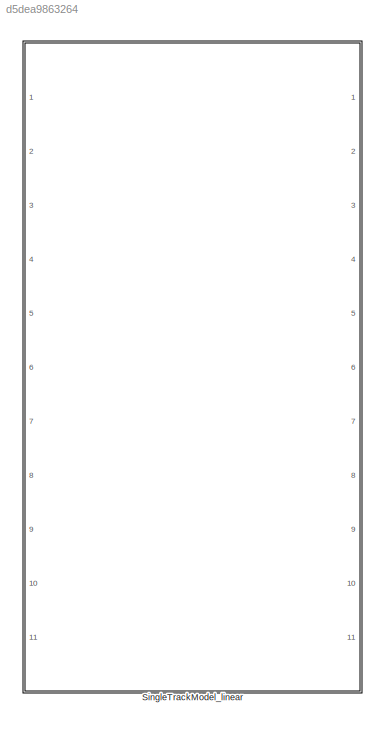
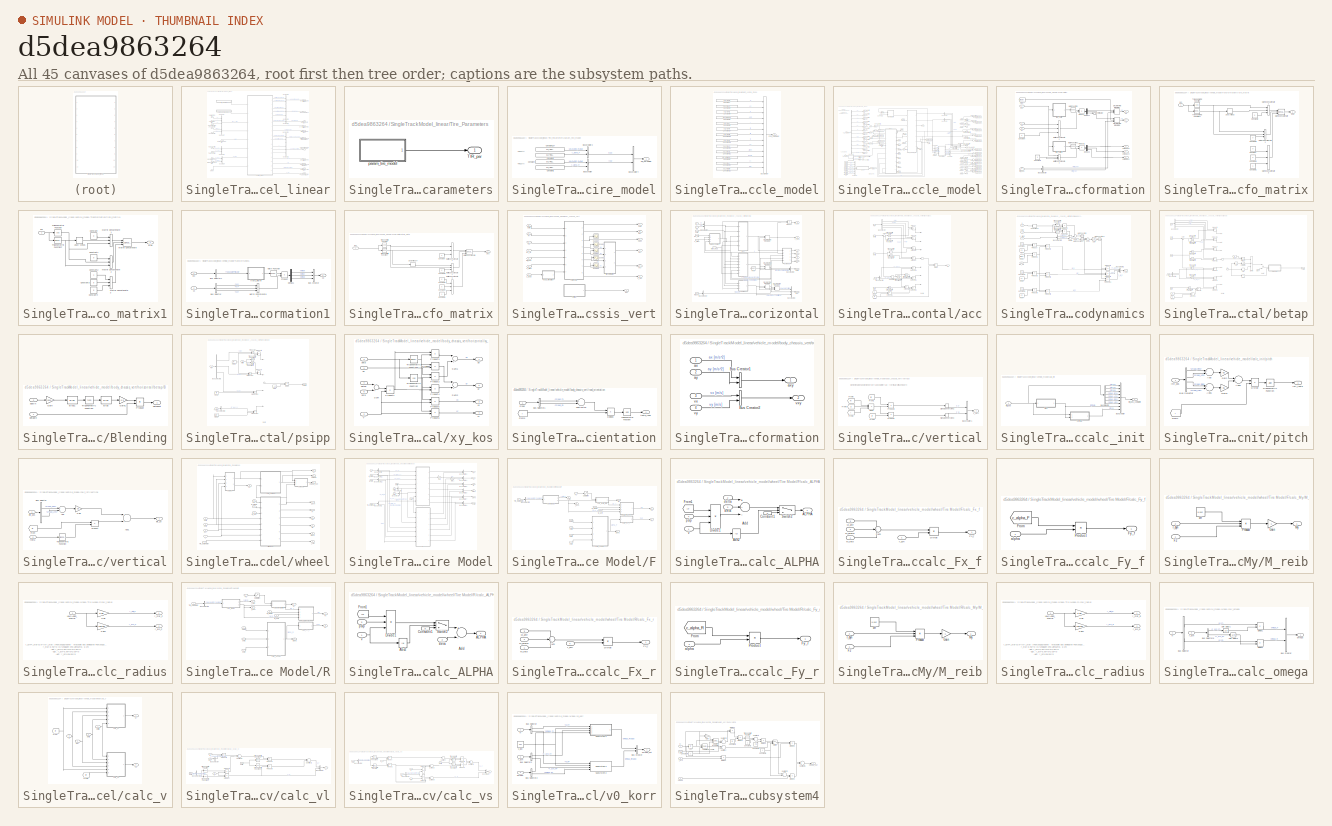
[diagram: thumbnail index - all 45 canvases of the model, root first then tree order]
MODEL slx_d5dea9863264
KIND library
CONFIG AbsTol = auto
CONFIG EnableMultiTasking = off
CONFIG FixedStep = auto
CONFIG MaxStep = auto
CONFIG MinStep = auto
CONFIG RelTol = 1e-3
CONFIG SampleTimeConstraint = Unconstrained
CONFIG Solver = VariableStepAuto
CONFIG SolverName = VariableStepAuto
CONFIG StartTime = 0.0
CONFIG StopTime = 10.0
BLOCK [SubSystem] SingleTrackModel_linear
  Ports = [11, 11]
  RequestExecContextInheritance = off
BLOCK [Outport] SingleTrackModel_linear/AreodynamicPowerLosses [Bus]
  IconDisplay = Port number
  Port = 11
BLOCK [Inport] SingleTrackModel_linear/BrakingTorqueFront [Nm]
  IconDisplay = Port number
  Port = 3
BLOCK [Inport] SingleTrackModel_linear/BrakingTorqueRear [Nm]
  IconDisplay = Port number
  Port = 4
BLOCK [BusCreator] SingleTrackModel_linear/Bus Creator
  DisplayOption = bar
  InheritFromInputs = on
  Inputs = 3
  Ports = [3, 1]
BLOCK [BusCreator] SingleTrackModel_linear/Bus Creator1
  DisplayOption = bar
  InheritFromInputs = on
  Inputs = 2
  Ports = [2, 1]
BLOCK [BusCreator] SingleTrackModel_linear/Bus Creator10
  DisplayOption = bar
  InheritFromInputs = on
  Inputs = 2
  Ports = [2, 1]
BLOCK [BusCreator] SingleTrackModel_linear/Bus Creator3
  DisplayOption = bar
  InheritFromInputs = on
  Inputs = 3
  Ports = [3, 1]
BLOCK [BusCreator] SingleTrackModel_linear/Bus Creator4
  DisplayOption = bar
  InheritFromInputs = on
  Inputs = 2
  Ports = [2, 1]
BLOCK [BusCreator] SingleTrackModel_linear/Bus Creator5
  DisplayOption = bar
  InheritFromInputs = on
  Inputs = 2
  Ports = [2, 1]
BLOCK [BusCreator] SingleTrackModel_linear/Bus Creator7
  DisplayOption = bar
  InheritFromInputs = on
  Inputs = 2
  Ports = [2, 1]
BLOCK [BusCreator] SingleTrackModel_linear/Bus Creator8
  DisplayOption = bar
  InheritFromInputs = on
  Inputs = 3
  Ports = [3, 1]
BLOCK [BusCreator] SingleTrackModel_linear/Bus Creator9
  DisplayOption = bar
  InheritFromInputs = on
  Inputs = 1
  Ports = [1, 1]
BLOCK [Outport] SingleTrackModel_linear/DynamicWheelRadii [Bus]
  IconDisplay = Port number
  Port = 4
BLOCK [Inport] SingleTrackModel_linear/Reset
  IconDisplay = Port number
  Port = 11
BLOCK [Outport] SingleTrackModel_linear/RotationalAnglesandDerivates [Bus]
  IconDisplay = Port number
  Port = 6
BLOCK [Outport] SingleTrackModel_linear/SideSlipAngleandDerivate [Bus]
  IconDisplay = Port number
  Port = 9
BLOCK [Outport] SingleTrackModel_linear/SlipAnglesWheels [Bus]
  IconDisplay = Port number
  Port = 8
BLOCK [Outport] SingleTrackModel_linear/StaticWheelRadii [Bus]
  IconDisplay = Port number
  Port = 5
BLOCK [Inport] SingleTrackModel_linear/SteeringAngleFront [rad]
  IconDisplay = Port number
  Port = 5
BLOCK [SubSystem] SingleTrackModel_linear/Tire_Parameters
  Ports = [0, 1]
  RequestExecContextInheritance = off
BLOCK [Outport] SingleTrackModel_linear/Tire_Parameters/TIR_par
  IconDisplay = Port number
BLOCK [SubSystem] SingleTrackModel_linear/Tire_Parameters/param_tire_model
  Ports = [0, 1]
  RequestExecContextInheritance = off
BLOCK [BusCreator] SingleTrackModel_linear/Tire_Parameters/param_tire_model/Bus Creator
  DisplayOption = bar
  InheritFromInputs = on
  Inputs = 2
  Ports = [2, 1]
BLOCK [BusCreator] SingleTrackModel_linear/Tire_Parameters/param_tire_model/Bus Creator2
  DisplayOption = bar
  InheritFromInputs = on
  Inputs = 2
  Ports = [2, 1]
BLOCK [BusCreator] SingleTrackModel_linear/Tire_Parameters/param_tire_model/Bus Creator4
  DisplayOption = bar
  InheritFromInputs = on
  Inputs = 2
  Ports = [2, 1]
BLOCK [Constant] SingleTrackModel_linear/Tire_Parameters/param_tire_model/Constant
  Value = par_TIR(2).unloadedRadius
BLOCK [Constant] SingleTrackModel_linear/Tire_Parameters/param_tire_model/Constant1
  Value = par_TIR(1).c_alpha_F
BLOCK [Constant] SingleTrackModel_linear/Tire_Parameters/param_tire_model/Constant137
  Value = par_TIR(1).unloadedRadius
BLOCK [Constant] SingleTrackModel_linear/Tire_Parameters/param_tire_model/Constant2
  Value = par_TIR(2).c_alpha_R
BLOCK [Outport] SingleTrackModel_linear/Tire_Parameters/param_tire_model/TIR_parameter
  IconDisplay = Port number
BLOCK [Inport] SingleTrackModel_linear/TorqueFront [Nm]
  IconDisplay = Port number
BLOCK [Inport] SingleTrackModel_linear/TorqueRear [Nm]
  IconDisplay = Port number
  Port = 2
BLOCK [Outport] SingleTrackModel_linear/TotalSteeringAngle [Bus]
  IconDisplay = Port number
  Port = 10
BLOCK [Inport] SingleTrackModel_linear/VelocityWindX [m//s]
  IconDisplay = Port number
  Port = 8
BLOCK [Inport] SingleTrackModel_linear/VelocityWindY [m//s]
  IconDisplay = Port number
  Port = 9
BLOCK [Inport] SingleTrackModel_linear/VelocityWindZ [m//s]
  IconDisplay = Port number
  Port = 10
BLOCK [Outport] SingleTrackModel_linear/WheelForces [Bus]
  IconDisplay = Port number
  Port = 2
BLOCK [Outport] SingleTrackModel_linear/WheelMoments [Bus]
  IconDisplay = Port number
  Port = 3
BLOCK [Outport] SingleTrackModel_linear/WheelRotation//Velocity [Bus]
  IconDisplay = Port number
BLOCK [SubSystem] SingleTrackModel_linear/param_vehicle_model
  Ports = [0, 1]
  RequestExecContextInheritance = off
BLOCK [BusCreator] SingleTrackModel_linear/param_vehicle_model/Bus Creator
  DisplayOption = bar
  InheritFromInputs = on
  Inputs = 13
  Ports = [13, 1]
BLOCK [Constant] SingleTrackModel_linear/param_vehicle_model/Constant
  Value = par_VEH.m
BLOCK [Constant] SingleTrackModel_linear/param_vehicle_model/Constant1
  Value = par_VEH.cz
BLOCK [Constant] SingleTrackModel_linear/param_vehicle_model/Constant2
  Value = par_VEH.RohAir
BLOCK [Constant] SingleTrackModel_linear/param_vehicle_model/Constant23
  Value = par_VEH.lDP
BLOCK [Constant] SingleTrackModel_linear/param_vehicle_model/Constant24
  Value = par_VEH.lF
BLOCK [Constant] SingleTrackModel_linear/param_vehicle_model/Constant25
  Value = par_VEH.lR
BLOCK [Constant] SingleTrackModel_linear/param_vehicle_model/Constant28
  Value = par_VEH.g
BLOCK [Constant] SingleTrackModel_linear/param_vehicle_model/Constant31
  Value = par_VEH.cx
BLOCK [Constant] SingleTrackModel_linear/param_vehicle_model/Constant32
  Value = par_VEH.Afront
BLOCK [Constant] SingleTrackModel_linear/param_vehicle_model/Constant34
  Value = par_VEH.cy
BLOCK [Constant] SingleTrackModel_linear/param_vehicle_model/Constant5
  Value = par_VEH.Iz
BLOCK [Constant] SingleTrackModel_linear/param_vehicle_model/Constant6
  Value = par_VEH.xSP
BLOCK [Constant] SingleTrackModel_linear/param_vehicle_model/Constant9
  Value = par_VEH.l
BLOCK [Outport] SingleTrackModel_linear/param_vehicle_model/FZG_parameter
  IconDisplay = Port number
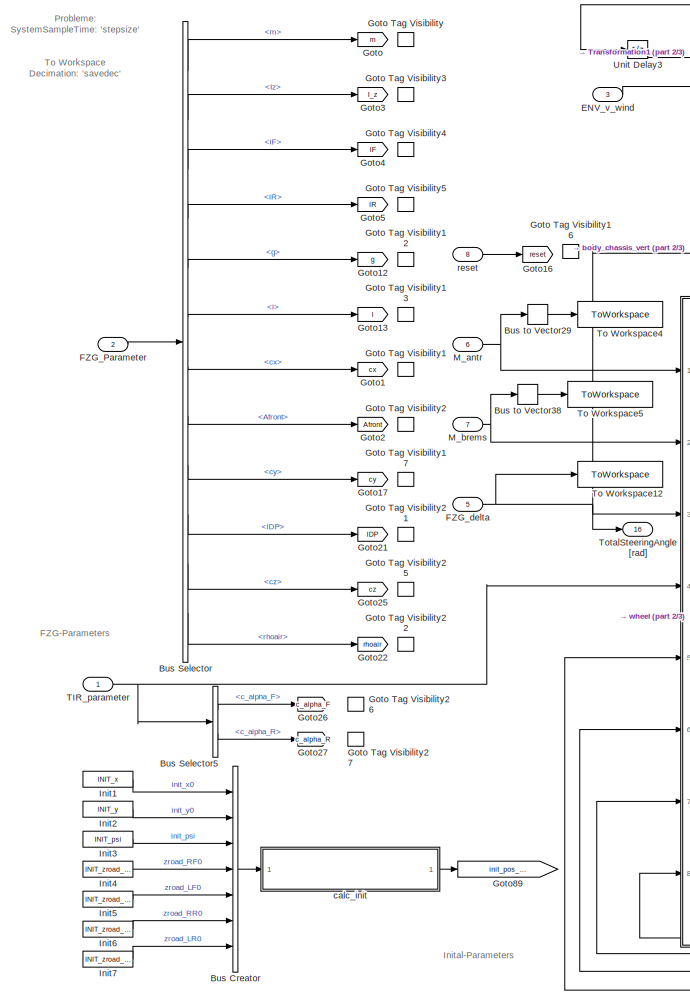
[diagram: SingleTrackModel_linear/vehicle_model - part 1/3, left side, full height]
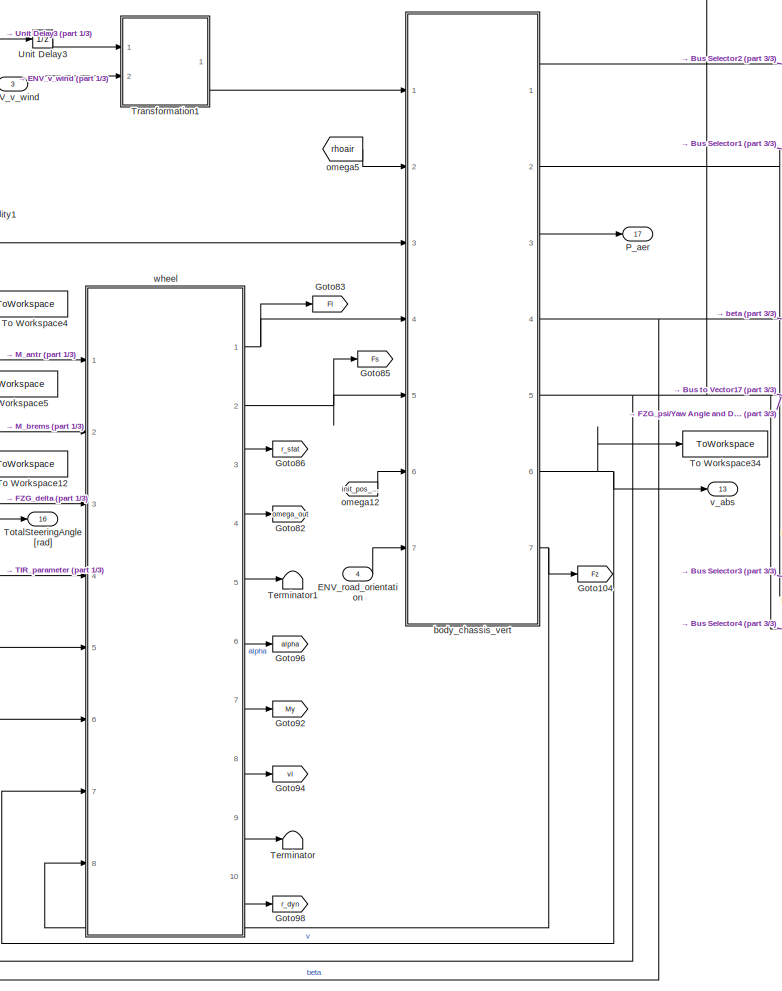
[diagram: SingleTrackModel_linear/vehicle_model - part 2/3, center side, full height]
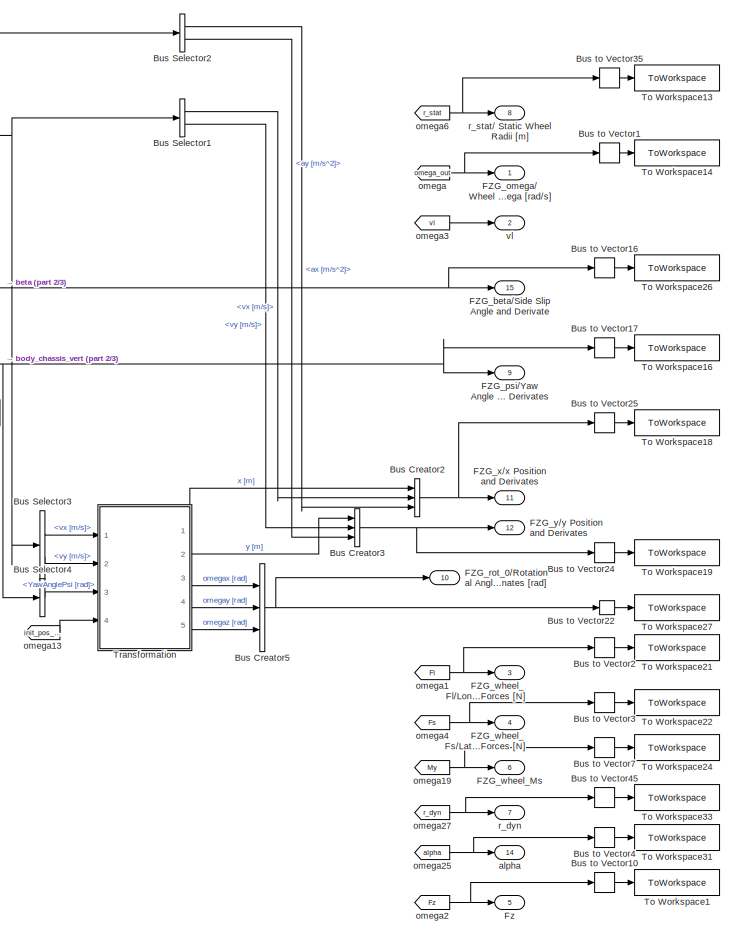
[diagram: SingleTrackModel_linear/vehicle_model - part 3/3, right side, full height]
BLOCK [SubSystem] SingleTrackModel_linear/vehicle_model
  MinAlgLoopOccurrences = on
  Ports = [8, 17]
  RequestExecContextInheritance = off
  TreatAsAtomicUnit = on
BLOCK [BusCreator] SingleTrackModel_linear/vehicle_model/Bus Creator
  DisplayOption = bar
  InheritFromInputs = on
  Inputs = 7
  Ports = [7, 1]
BLOCK [BusCreator] SingleTrackModel_linear/vehicle_model/Bus Creator2
  DisplayOption = bar
  InheritFromInputs = on
  Inputs = 3
  Ports = [3, 1]
BLOCK [BusCreator] SingleTrackModel_linear/vehicle_model/Bus Creator3
  DisplayOption = bar
  InheritFromInputs = on
  Inputs = 3
  Ports = [3, 1]
BLOCK [BusCreator] SingleTrackModel_linear/vehicle_model/Bus Creator5
  DisplayOption = bar
  InheritFromInputs = on
  Inputs = 3
  Ports = [3, 1]
BLOCK [BusSelector] SingleTrackModel_linear/vehicle_model/Bus Selector
  OutputAsBus = off
  OutputSignals = m,Iz,lF,lR,g,l,cx,Afront,cy,lDP,cz,rhoair
  Ports = [1, 12]
BLOCK [BusSelector] SingleTrackModel_linear/vehicle_model/Bus Selector1
  OutputAsBus = off
  OutputSignals = vx [m/s],vy [m/s]
  Ports = [1, 2]
BLOCK [BusSelector] SingleTrackModel_linear/vehicle_model/Bus Selector2
  OutputAsBus = off
  OutputSignals = ax [m/s^2],ay [m/s^2]
  Ports = [1, 2]
BLOCK [BusSelector] SingleTrackModel_linear/vehicle_model/Bus Selector3
  OutputAsBus = off
  OutputSignals = vx [m/s],vy [m/s]
  Ports = [1, 2]
BLOCK [BusSelector] SingleTrackModel_linear/vehicle_model/Bus Selector4
  OutputAsBus = off
  OutputSignals = YawAnglePsi [rad]
  Ports = [1, 1]
BLOCK [BusSelector] SingleTrackModel_linear/vehicle_model/Bus Selector5
  OutputAsBus = off
  OutputSignals = front.c_alpha_F,rear.c_alpha_R
  Ports = [1, 2]
BLOCK [BusToVector] SingleTrackModel_linear/vehicle_model/Bus to Vector1
  Commented = on
BLOCK [BusToVector] SingleTrackModel_linear/vehicle_model/Bus to Vector10
  Commented = on
BLOCK [BusToVector] SingleTrackModel_linear/vehicle_model/Bus to Vector16
BLOCK [BusToVector] SingleTrackModel_linear/vehicle_model/Bus to Vector17
BLOCK [BusToVector] SingleTrackModel_linear/vehicle_model/Bus to Vector2
  Commented = on
BLOCK [BusToVector] SingleTrackModel_linear/vehicle_model/Bus to Vector22
  Commented = on
BLOCK [BusToVector] SingleTrackModel_linear/vehicle_model/Bus to Vector24
BLOCK [BusToVector] SingleTrackModel_linear/vehicle_model/Bus to Vector25
BLOCK [BusToVector] SingleTrackModel_linear/vehicle_model/Bus to Vector29
  Commented = on
BLOCK [BusToVector] SingleTrackModel_linear/vehicle_model/Bus to Vector3
  Commented = on
BLOCK [BusToVector] SingleTrackModel_linear/vehicle_model/Bus to Vector35
  Commented = on
BLOCK [BusToVector] SingleTrackModel_linear/vehicle_model/Bus to Vector38
  Commented = on
BLOCK [BusToVector] SingleTrackModel_linear/vehicle_model/Bus to Vector4
  Commented = on
BLOCK [BusToVector] SingleTrackModel_linear/vehicle_model/Bus to Vector45
  Commented = on
BLOCK [BusToVector] SingleTrackModel_linear/vehicle_model/Bus to Vector7
  Commented = on
BLOCK [Inport] SingleTrackModel_linear/vehicle_model/ENV_road_orientation
  IconDisplay = Port number
  Port = 4
BLOCK [Inport] SingleTrackModel_linear/vehicle_model/ENV_v_wind
  IconDisplay = Port number
  Port = 3
BLOCK [Inport] SingleTrackModel_linear/vehicle_model/FZG_Parameter
  IconDisplay = Port number
  Port = 2
BLOCK [Outport] SingleTrackModel_linear/vehicle_model/FZG_beta//Side Slip Angle and Derivate
  IconDisplay = Port number
  Port = 15
BLOCK [Inport] SingleTrackModel_linear/vehicle_model/FZG_delta
  IconDisplay = Port number
  Port = 5
BLOCK [Outport] SingleTrackModel_linear/vehicle_model/FZG_omega// Wheel Angle Omega [rad//s]
  IconDisplay = Port number
BLOCK [Outport] SingleTrackModel_linear/vehicle_model/FZG_psi//Yaw Angle and Derivates
  IconDisplay = Port number
  Port = 9
BLOCK [Outport] SingleTrackModel_linear/vehicle_model/FZG_rot_0//Rotational Angles around Initial Coordinates [rad]
  IconDisplay = Port number
  Port = 10
BLOCK [Outport] SingleTrackModel_linear/vehicle_model/FZG_wheel_Fl//Longitudinal Wheel Forces [N]
  IconDisplay = Port number
  Port = 3
BLOCK [Outport] SingleTrackModel_linear/vehicle_model/FZG_wheel_Fs//Lateral Wheel Forces [N]
  IconDisplay = Port number
  Port = 4
BLOCK [Outport] SingleTrackModel_linear/vehicle_model/FZG_wheel_Ms
  IconDisplay = Port number
  Port = 6
BLOCK [Outport] SingleTrackModel_linear/vehicle_model/FZG_x//x Position and Derivates
  IconDisplay = Port number
  Port = 11
  PortDimensions = 3
BLOCK [Outport] SingleTrackModel_linear/vehicle_model/FZG_y//y Position and Derivates
  IconDisplay = Port number
  Port = 12
BLOCK [Outport] SingleTrackModel_linear/vehicle_model/Fz
  IconDisplay = Port number
  Port = 5
BLOCK [Goto] SingleTrackModel_linear/vehicle_model/Goto
  GotoTag = m
  TagVisibility = scoped
BLOCK [GotoTagVisibility] SingleTrackModel_linear/vehicle_model/Goto Tag Visibility
  GotoTag = m
BLOCK [GotoTagVisibility] SingleTrackModel_linear/vehicle_model/Goto Tag Visibility1
  GotoTag = cx
BLOCK [GotoTagVisibility] SingleTrackModel_linear/vehicle_model/Goto Tag Visibility12
  GotoTag = g
BLOCK [GotoTagVisibility] SingleTrackModel_linear/vehicle_model/Goto Tag Visibility13
  GotoTag = l
BLOCK [GotoTagVisibility] SingleTrackModel_linear/vehicle_model/Goto Tag Visibility16
  GotoTag = reset
BLOCK [GotoTagVisibility] SingleTrackModel_linear/vehicle_model/Goto Tag Visibility17
  GotoTag = cy
BLOCK [GotoTagVisibility] SingleTrackModel_linear/vehicle_model/Goto Tag Visibility2
  GotoTag = Afront
BLOCK [GotoTagVisibility] SingleTrackModel_linear/vehicle_model/Goto Tag Visibility21
  GotoTag = lDP
BLOCK [GotoTagVisibility] SingleTrackModel_linear/vehicle_model/Goto Tag Visibility22
  GotoTag = rhoair
BLOCK [GotoTagVisibility] SingleTrackModel_linear/vehicle_model/Goto Tag Visibility25
  GotoTag = cz
BLOCK [GotoTagVisibility] SingleTrackModel_linear/vehicle_model/Goto Tag Visibility26
  GotoTag = c_alpha_F
BLOCK [GotoTagVisibility] SingleTrackModel_linear/vehicle_model/Goto Tag Visibility27
  GotoTag = c_alpha_R
BLOCK [GotoTagVisibility] SingleTrackModel_linear/vehicle_model/Goto Tag Visibility3
  GotoTag = I_z
BLOCK [GotoTagVisibility] SingleTrackModel_linear/vehicle_model/Goto Tag Visibility4
  GotoTag = lF
BLOCK [GotoTagVisibility] SingleTrackModel_linear/vehicle_model/Goto Tag Visibility5
  GotoTag = lR
BLOCK [Goto] SingleTrackModel_linear/vehicle_model/Goto1
  GotoTag = cx
  TagVisibility = scoped
BLOCK [Goto] SingleTrackModel_linear/vehicle_model/Goto104
  GotoTag = Fz
BLOCK [Goto] SingleTrackModel_linear/vehicle_model/Goto12
  GotoTag = g
  TagVisibility = scoped
BLOCK [Goto] SingleTrackModel_linear/vehicle_model/Goto13
  GotoTag = l
  TagVisibility = scoped
BLOCK [Goto] SingleTrackModel_linear/vehicle_model/Goto16
  GotoTag = reset
  TagVisibility = scoped
BLOCK [Goto] SingleTrackModel_linear/vehicle_model/Goto17
  GotoTag = cy
  TagVisibility = scoped
BLOCK [Goto] SingleTrackModel_linear/vehicle_model/Goto2
  GotoTag = Afront
  TagVisibility = scoped
BLOCK [Goto] SingleTrackModel_linear/vehicle_model/Goto21
  GotoTag = lDP
  TagVisibility = scoped
BLOCK [Goto] SingleTrackModel_linear/vehicle_model/Goto22
  GotoTag = rhoair
  TagVisibility = scoped
BLOCK [Goto] SingleTrackModel_linear/vehicle_model/Goto25
  GotoTag = cz
  TagVisibility = scoped
BLOCK [Goto] SingleTrackModel_linear/vehicle_model/Goto26
  GotoTag = c_alpha_F
  TagVisibility = scoped
BLOCK [Goto] SingleTrackModel_linear/vehicle_model/Goto27
  GotoTag = c_alpha_R
  TagVisibility = scoped
BLOCK [Goto] SingleTrackModel_linear/vehicle_model/Goto3
  GotoTag = I_z
  TagVisibility = scoped
BLOCK [Goto] SingleTrackModel_linear/vehicle_model/Goto4
  GotoTag = lF
  TagVisibility = scoped
BLOCK [Goto] SingleTrackModel_linear/vehicle_model/Goto5
  GotoTag = lR
  TagVisibility = scoped
BLOCK [Goto] SingleTrackModel_linear/vehicle_model/Goto82
  GotoTag = omega_out
BLOCK [Goto] SingleTrackModel_linear/vehicle_model/Goto83
  GotoTag = Fl
BLOCK [Goto] SingleTrackModel_linear/vehicle_model/Goto85
  GotoTag = Fs
BLOCK [Goto] SingleTrackModel_linear/vehicle_model/Goto86
  GotoTag = r_stat
BLOCK [Goto] SingleTrackModel_linear/vehicle_model/Goto89
  GotoTag = init_pos_complete
BLOCK [Goto] SingleTrackModel_linear/vehicle_model/Goto92
  GotoTag = My
BLOCK [Goto] SingleTrackModel_linear/vehicle_model/Goto94
  GotoTag = vl
BLOCK [Goto] SingleTrackModel_linear/vehicle_model/Goto96
  GotoTag = alpha
BLOCK [Goto] SingleTrackModel_linear/vehicle_model/Goto98
  GotoTag = r_dyn
BLOCK [Constant] SingleTrackModel_linear/vehicle_model/Init1
  Value = INIT_x
BLOCK [Constant] SingleTrackModel_linear/vehicle_model/Init2
  Value = INIT_y
BLOCK [Constant] SingleTrackModel_linear/vehicle_model/Init3
  Value = INIT_psi
BLOCK [Constant] SingleTrackModel_linear/vehicle_model/Init4
  Value = INIT_zroad_RF0
BLOCK [Constant] SingleTrackModel_linear/vehicle_model/Init5
  Value = INIT_zroad_LF0
BLOCK [Constant] SingleTrackModel_linear/vehicle_model/Init6
  Value = INIT_zroad_RR0
BLOCK [Constant] SingleTrackModel_linear/vehicle_model/Init7
  Value = INIT_zroad_LR0
BLOCK [Inport] SingleTrackModel_linear/vehicle_model/M_antr
  IconDisplay = Port number
  Port = 6
  PortDimensions = 2
BLOCK [Inport] SingleTrackModel_linear/vehicle_model/M_brems
  IconDisplay = Port number
  Port = 7
  PortDimensions = 2
BLOCK [Outport] SingleTrackModel_linear/vehicle_model/P_aer
  IconDisplay = Port number
  Port = 17
BLOCK [Inport] SingleTrackModel_linear/vehicle_model/TIR_parameter
  IconDisplay = Port number
BLOCK [Terminator] SingleTrackModel_linear/vehicle_model/Terminator
BLOCK [Terminator] SingleTrackModel_linear/vehicle_model/Terminator1
BLOCK [ToWorkspace] SingleTrackModel_linear/vehicle_model/To Workspace1
  Commented = on
  Decimation = savedec
  FixptAsFi = on
  MaxDataPoints = inf
  Ports = [1]
  SampleTime = -1
  Save2DSignal = 2-D array (concatenate along first dimension)
  VariableName = sv_FZG_Fz_ESM_lin
BLOCK [ToWorkspace] SingleTrackModel_linear/vehicle_model/To Workspace12
  Decimation = savedec
  FixptAsFi = on
  MaxDataPoints = inf
  Ports = [1]
  SampleTime = -1
  Save2DSignal = 2-D array (concatenate along first dimension)
  VariableName = sv_FAH_delta_ESM_lin
BLOCK [ToWorkspace] SingleTrackModel_linear/vehicle_model/To Workspace13
  Commented = on
  Decimation = savedec
  FixptAsFi = on
  MaxDataPoints = inf
  Ports = [1]
  SampleTime = -1
  Save2DSignal = 2-D array (concatenate along first dimension)
  VariableName = sv_r_stat_ESM_lin
BLOCK [ToWorkspace] SingleTrackModel_linear/vehicle_model/To Workspace14
  Commented = on
  Decimation = savedec
  FixptAsFi = on
  MaxDataPoints = inf
  Ports = [1]
  SampleTime = -1
  Save2DSignal = 2-D array (concatenate along first dimension)
  VariableName = sv_FZG_omega_ESM_lin
BLOCK [ToWorkspace] SingleTrackModel_linear/vehicle_model/To Workspace16
  Decimation = savedec
  FixptAsFi = on
  MaxDataPoints = inf
  Ports = [1]
  SampleTime = -1
  Save2DSignal = 2-D array (concatenate along first dimension)
  VariableName = sv_FZG_psi_ESM_lin
BLOCK [ToWorkspace] SingleTrackModel_linear/vehicle_model/To Workspace18
  Decimation = savedec
  FixptAsFi = on
  MaxDataPoints = inf
  Ports = [1]
  SampleTime = -1
  Save2DSignal = 2-D array (concatenate along first dimension)
  VariableName = sv_FZG_x_ESM_lin
BLOCK [ToWorkspace] SingleTrackModel_linear/vehicle_model/To Workspace19
  Decimation = savedec
  FixptAsFi = on
  MaxDataPoints = inf
  Ports = [1]
  SampleTime = -1
  Save2DSignal = 2-D array (concatenate along first dimension)
  VariableName = sv_FZG_y_ESM_lin
BLOCK [ToWorkspace] SingleTrackModel_linear/vehicle_model/To Workspace21
  Commented = on
  Decimation = savedec
  FixptAsFi = on
  MaxDataPoints = inf
  Ports = [1]
  SampleTime = -1
  Save2DSignal = 2-D array (concatenate along first dimension)
  VariableName = sv_FZG_Fl_ESM_lin
BLOCK [ToWorkspace] SingleTrackModel_linear/vehicle_model/To Workspace22
  Commented = on
  Decimation = savedec
  FixptAsFi = on
  MaxDataPoints = inf
  Ports = [1]
  SampleTime = -1
  Save2DSignal = 2-D array (concatenate along first dimension)
  VariableName = sv_FZG_Fs_ESM_lin
BLOCK [ToWorkspace] SingleTrackModel_linear/vehicle_model/To Workspace24
  Commented = on
  Decimation = savedec
  FixptAsFi = on
  MaxDataPoints = inf
  Ports = [1]
  SampleTime = -1
  Save2DSignal = 2-D array (concatenate along first dimension)
  VariableName = sv_FZG_wheel_Ms_ESM_lin
BLOCK [ToWorkspace] SingleTrackModel_linear/vehicle_model/To Workspace26
  Decimation = savedec
  FixptAsFi = on
  MaxDataPoints = inf
  Ports = [1]
  SampleTime = -1
  Save2DSignal = 2-D array (concatenate along first dimension)
  VariableName = sv_FZG_beta_ESM_lin
BLOCK [ToWorkspace] SingleTrackModel_linear/vehicle_model/To Workspace27
  Commented = on
  Decimation = savedec
  FixptAsFi = on
  MaxDataPoints = inf
  Ports = [1]
  SampleTime = -1
  Save2DSignal = 2-D array (concatenate along first dimension)
  VariableName = sv_FZG_rot_ESM_lin
BLOCK [ToWorkspace] SingleTrackModel_linear/vehicle_model/To Workspace31
  Commented = on
  Decimation = savedec
  FixptAsFi = on
  MaxDataPoints = inf
  Ports = [1]
  SampleTime = -1
  Save2DSignal = 2-D array (concatenate along first dimension)
  VariableName = sv_alpha_ESM_lin
BLOCK [ToWorkspace] SingleTrackModel_linear/vehicle_model/To Workspace33
  Commented = on
  Decimation = savedec
  FixptAsFi = on
  MaxDataPoints = inf
  Ports = [1]
  SampleTime = -1
  Save2DSignal = 2-D array (concatenate along first dimension)
  VariableName = sv_r_dyn_ESM_lin
BLOCK [ToWorkspace] SingleTrackModel_linear/vehicle_model/To Workspace34
  Decimation = savedec
  FixptAsFi = on
  MaxDataPoints = inf
  Ports = [1]
  SampleTime = -1
  Save2DSignal = 2-D array (concatenate along first dimension)
  VariableName = sv_FZG_v_abs_ESM_lin
BLOCK [ToWorkspace] SingleTrackModel_linear/vehicle_model/To Workspace4
  Commented = on
  Decimation = savedec
  FixptAsFi = on
  MaxDataPoints = inf
  Ports = [1]
  SampleTime = -1
  Save2DSignal = 2-D array (concatenate along first dimension)
  VariableName = sv_FAH_M_antr_ESM_lin
BLOCK [ToWorkspace] SingleTrackModel_linear/vehicle_model/To Workspace5
  Commented = on
  Decimation = savedec
  FixptAsFi = on
  MaxDataPoints = inf
  Ports = [1]
  SampleTime = -1
  Save2DSignal = 2-D array (concatenate along first dimension)
  VariableName = sv_FAH_M_brems_ESM_lin
BLOCK [Outport] SingleTrackModel_linear/vehicle_model/TotalSteeringAngle [rad]
  IconDisplay = Port number
  Port = 16
BLOCK [SubSystem] SingleTrackModel_linear/vehicle_model/Transformation
  Ports = [4, 5]
  RequestExecContextInheritance = off
BLOCK [BusSelector] SingleTrackModel_linear/vehicle_model/Transformation/Bus Selector
  OutputAsBus = off
  OutputSignals = init_x0,init_y0
  Ports = [1, 2]
BLOCK [Constant] SingleTrackModel_linear/vehicle_model/Transformation/Constant
  Value = 0
BLOCK [Constant] SingleTrackModel_linear/vehicle_model/Transformation/Constant1
  Value = 0
BLOCK [Demux] SingleTrackModel_linear/vehicle_model/Transformation/Demux1
  DisplayOption = bar
  Outputs = 3
  Ports = [1, 3]
BLOCK [Demux] SingleTrackModel_linear/vehicle_model/Transformation/Demux2
  DisplayOption = bar
  Outputs = 3
  Ports = [1, 3]
BLOCK [DiscreteIntegrator] SingleTrackModel_linear/vehicle_model/Transformation/Discrete-Time Integrator
  ExternalReset = sampled level
  ICPrevOutput = DiscIntNeverNeededParam
  ICPrevScaledInput = DiscIntNeverNeededParam
  InitialConditionSource = external
  Ports = [3, 1]
  SampleTime = -1
BLOCK [DiscreteIntegrator] SingleTrackModel_linear/vehicle_model/Transformation/Discrete-Time Integrator1
  ExternalReset = sampled level
  ICPrevOutput = DiscIntNeverNeededParam
  ICPrevScaledInput = DiscIntNeverNeededParam
  InitialConditionSource = external
  Ports = [3, 1]
  SampleTime = -1
BLOCK [From] SingleTrackModel_linear/vehicle_model/Transformation/From
  GotoTag = reset
  TagVisibility = scoped
BLOCK [Math] SingleTrackModel_linear/vehicle_model/Transformation/Math Function
  Operator = transpose
  Ports = [1, 1]
BLOCK [Math] SingleTrackModel_linear/vehicle_model/Transformation/Math Function1
  Operator = transpose
  Ports = [1, 1]
BLOCK [Concatenate] SingleTrackModel_linear/vehicle_model/Transformation/Matrix Concatenate1
  NumInputs = 3
  Ports = [3, 1]
BLOCK [Concatenate] SingleTrackModel_linear/vehicle_model/Transformation/Matrix Concatenate2
  NumInputs = 3
  Ports = [3, 1]
BLOCK [Product] SingleTrackModel_linear/vehicle_model/Transformation/Product
  InputSameDT = off
  Multiplication = Matrix(*)
  OutDataTypeStr = Inherit: Inherit via internal rule
  Ports = [2, 1]
  RndMeth = Floor
  SaturateOnIntegerOverflow = off
BLOCK [Product] SingleTrackModel_linear/vehicle_model/Transformation/Product1
  InputSameDT = off
  Multiplication = Matrix(*)
  OutDataTypeStr = Inherit: Inherit via internal rule
  Ports = [2, 1]
  RndMeth = Floor
  SaturateOnIntegerOverflow = off
BLOCK [Terminator] SingleTrackModel_linear/vehicle_model/Transformation/Terminator
BLOCK [Inport] SingleTrackModel_linear/vehicle_model/Transformation/init_pos
  IconDisplay = Port number
  Port = 4
BLOCK [Outport] SingleTrackModel_linear/vehicle_model/Transformation/omegax0
  IconDisplay = Port number
  Port = 3
BLOCK [Outport] SingleTrackModel_linear/vehicle_model/Transformation/omegay0
  IconDisplay = Port number
  Port = 4
BLOCK [Outport] SingleTrackModel_linear/vehicle_model/Transformation/omegaz0
  IconDisplay = Port number
  Port = 5
BLOCK [Inport] SingleTrackModel_linear/vehicle_model/Transformation/psi
  IconDisplay = Port number
  Port = 3
BLOCK [SubSystem] SingleTrackModel_linear/vehicle_model/Transformation/trafo_matrix
  Ports = [1, 1]
  RequestExecContextInheritance = off
BLOCK [Constant] SingleTrackModel_linear/vehicle_model/Transformation/trafo_matrix/Constant
  Value = 0
BLOCK [Constant] SingleTrackModel_linear/vehicle_model/Transformation/trafo_matrix/Constant1
BLOCK [Constant] SingleTrackModel_linear/vehicle_model/Transformation/trafo_matrix/Constant2
  Value = 0
BLOCK [Constant] SingleTrackModel_linear/vehicle_model/Transformation/trafo_matrix/Constant3
  Value = 0
BLOCK [Constant] SingleTrackModel_linear/vehicle_model/Transformation/trafo_matrix/Constant4
  Value = 0
BLOCK [Concatenate] SingleTrackModel_linear/vehicle_model/Transformation/trafo_matrix/Matrix Concatenate
  ConcatenateDimension = 2
  Mode = Multidimensional array
  NumInputs = 3
  Ports = [3, 1]
BLOCK [Concatenate] SingleTrackModel_linear/vehicle_model/Transformation/trafo_matrix/Matrix Concatenate1
  NumInputs = 3
  Ports = [3, 1]
BLOCK [Concatenate] SingleTrackModel_linear/vehicle_model/Transformation/trafo_matrix/Matrix Concatenate2
  NumInputs = 3
  Ports = [3, 1]
BLOCK [Concatenate] SingleTrackModel_linear/vehicle_model/Transformation/trafo_matrix/Matrix Concatenate3
  NumInputs = 3
  Ports = [3, 1]
BLOCK [Outport] SingleTrackModel_linear/vehicle_model/Transformation/trafo_matrix/OT3
  IconDisplay = Port number
BLOCK [Trigonometry] SingleTrackModel_linear/vehicle_model/Transformation/trafo_matrix/Trigonometric Function
  Operator = cos
  Ports = [1, 1]
BLOCK [Trigonometry] SingleTrackModel_linear/vehicle_model/Transformation/trafo_matrix/Trigonometric Function7
  Ports = [1, 1]
BLOCK [UnaryMinus] SingleTrackModel_linear/vehicle_model/Transformation/trafo_matrix/Unary Minus
BLOCK [Inport] SingleTrackModel_linear/vehicle_model/Transformation/trafo_matrix/psi
  IconDisplay = Port number
BLOCK [SubSystem] SingleTrackModel_linear/vehicle_model/Transformation/trafo_matrix1
  Ports = [1, 1]
  RequestExecContextInheritance = off
BLOCK [Constant] SingleTrackModel_linear/vehicle_model/Transformation/trafo_matrix1/Constant
  Value = 0
BLOCK [Constant] SingleTrackModel_linear/vehicle_model/Transformation/trafo_matrix1/Constant1
  Value = 0
BLOCK [Constant] SingleTrackModel_linear/vehicle_model/Transformation/trafo_matrix1/Constant2
BLOCK [Constant] SingleTrackModel_linear/vehicle_model/Transformation/trafo_matrix1/Constant3
  Value = 0
BLOCK [Constant] SingleTrackModel_linear/vehicle_model/Transformation/trafo_matrix1/Constant4
  Value = 0
BLOCK [Concatenate] SingleTrackModel_linear/vehicle_model/Transformation/trafo_matrix1/Matrix Concatenate
  ConcatenateDimension = 2
  Mode = Multidimensional array
  NumInputs = 3
  Ports = [3, 1]
BLOCK [Concatenate] SingleTrackModel_linear/vehicle_model/Transformation/trafo_matrix1/Matrix Concatenate1
  NumInputs = 3
  Ports = [3, 1]
BLOCK [Concatenate] SingleTrackModel_linear/vehicle_model/Transformation/trafo_matrix1/Matrix Concatenate2
  NumInputs = 3
  Ports = [3, 1]
BLOCK [Concatenate] SingleTrackModel_linear/vehicle_model/Transformation/trafo_matrix1/Matrix Concatenate3
  NumInputs = 3
  Ports = [3, 1]
BLOCK [Outport] SingleTrackModel_linear/vehicle_model/Transformation/trafo_matrix1/OTo
  IconDisplay = Port number
BLOCK [Trigonometry] SingleTrackModel_linear/vehicle_model/Transformation/trafo_matrix1/Trigonometric Function
  Operator = cos
  Ports = [1, 1]
BLOCK [Trigonometry] SingleTrackModel_linear/vehicle_model/Transformation/trafo_matrix1/Trigonometric Function7
  Ports = [1, 1]
BLOCK [UnaryMinus] SingleTrackModel_linear/vehicle_model/Transformation/trafo_matrix1/Unary Minus
BLOCK [Inport] SingleTrackModel_linear/vehicle_model/Transformation/trafo_matrix1/psi
  IconDisplay = Port number
BLOCK [Inport] SingleTrackModel_linear/vehicle_model/Transformation/vx
  IconDisplay = Port number
BLOCK [Inport] SingleTrackModel_linear/vehicle_model/Transformation/vy
  IconDisplay = Port number
  Port = 2
BLOCK [Outport] SingleTrackModel_linear/vehicle_model/Transformation/x0
  IconDisplay = Port number
BLOCK [Outport] SingleTrackModel_linear/vehicle_model/Transformation/y0
  IconDisplay = Port number
  Port = 2
BLOCK [SubSystem] SingleTrackModel_linear/vehicle_model/Transformation1
  Ports = [2, 1]
  RequestExecContextInheritance = off
BLOCK [BusCreator] SingleTrackModel_linear/vehicle_model/Transformation1/Bus Creator
  DisplayOption = bar
  InheritFromInputs = on
  Inputs = 3
  Ports = [3, 1]
BLOCK [BusSelector] SingleTrackModel_linear/vehicle_model/Transformation1/Bus Selector
  OutputAsBus = off
  OutputSignals = vx,vy,vz
  Ports = [1, 3]
BLOCK [BusSelector] SingleTrackModel_linear/vehicle_model/Transformation1/Bus Selector1
  OutputAsBus = off
  OutputSignals = YawAnglePsi [rad]
  Ports = [1, 1]
BLOCK [Demux] SingleTrackModel_linear/vehicle_model/Transformation1/Demux1
  DisplayOption = bar
  Outputs = 3
  Ports = [1, 3]
BLOCK [Math] SingleTrackModel_linear/vehicle_model/Transformation1/Math Function
  Operator = transpose
  Ports = [1, 1]
BLOCK [Concatenate] SingleTrackModel_linear/vehicle_model/Transformation1/Matrix Concatenate2
  NumInputs = 3
  Ports = [3, 1]
BLOCK [Product] SingleTrackModel_linear/vehicle_model/Transformation1/Product
  InputSameDT = off
  Multiplication = Matrix(*)
  OutDataTypeStr = Inherit: Inherit via internal rule
  Ports = [2, 1]
  RndMeth = Floor
  SaturateOnIntegerOverflow = off
BLOCK [Inport] SingleTrackModel_linear/vehicle_model/Transformation1/psi
  IconDisplay = Port number
BLOCK [SubSystem] SingleTrackModel_linear/vehicle_model/Transformation1/trafo_matrix
  Ports = [1, 1]
  RequestExecContextInheritance = off
BLOCK [Constant] SingleTrackModel_linear/vehicle_model/Transformation1/trafo_matrix/Constant
  Value = 0
BLOCK [Constant] SingleTrackModel_linear/vehicle_model/Transformation1/trafo_matrix/Constant1
BLOCK [Constant] SingleTrackModel_linear/vehicle_model/Transformation1/trafo_matrix/Constant2
  Value = 0
BLOCK [Constant] SingleTrackModel_linear/vehicle_model/Transformation1/trafo_matrix/Constant3
  Value = 0
BLOCK [Constant] SingleTrackModel_linear/vehicle_model/Transformation1/trafo_matrix/Constant4
  Value = 0
BLOCK [Concatenate] SingleTrackModel_linear/vehicle_model/Transformation1/trafo_matrix/Matrix Concatenate
  ConcatenateDimension = 2
  Mode = Multidimensional array
  NumInputs = 3
  Ports = [3, 1]
BLOCK [Concatenate] SingleTrackModel_linear/vehicle_model/Transformation1/trafo_matrix/Matrix Concatenate1
  NumInputs = 3
  Ports = [3, 1]
BLOCK [Concatenate] SingleTrackModel_linear/vehicle_model/Transformation1/trafo_matrix/Matrix Concatenate2
  NumInputs = 3
  Ports = [3, 1]
BLOCK [Concatenate] SingleTrackModel_linear/vehicle_model/Transformation1/trafo_matrix/Matrix Concatenate3
  NumInputs = 3
  Ports = [3, 1]
BLOCK [Outport] SingleTrackModel_linear/vehicle_model/Transformation1/trafo_matrix/OT3
  IconDisplay = Port number
BLOCK [Trigonometry] SingleTrackModel_linear/vehicle_model/Transformation1/trafo_matrix/Trigonometric Function
  Operator = cos
  Ports = [1, 1]
BLOCK [Trigonometry] SingleTrackModel_linear/vehicle_model/Transformation1/trafo_matrix/Trigonometric Function7
  Ports = [1, 1]
BLOCK [UnaryMinus] SingleTrackModel_linear/vehicle_model/Transformation1/trafo_matrix/Unary Minus4
BLOCK [Inport] SingleTrackModel_linear/vehicle_model/Transformation1/trafo_matrix/psi
  IconDisplay = Port number
BLOCK [Inport] SingleTrackModel_linear/vehicle_model/Transformation1/vx
  IconDisplay = Port number
  Port = 2
BLOCK [Outport] SingleTrackModel_linear/vehicle_model/Transformation1/x3
  IconDisplay = Port number
BLOCK [UnitDelay] SingleTrackModel_linear/vehicle_model/Unit Delay3
  InputProcessing = Elements as channels (sample based)
  SampleTime = -1
BLOCK [Outport] SingleTrackModel_linear/vehicle_model/alpha
  IconDisplay = Port number
  Port = 14
BLOCK [SubSystem] SingleTrackModel_linear/vehicle_model/body_chassis_vert
  Ports = [7, 7]
  RequestExecContextInheritance = off
BLOCK [Inport] SingleTrackModel_linear/vehicle_model/body_chassis_vert/Fl
  IconDisplay = Port number
  Port = 4
BLOCK [Inport] SingleTrackModel_linear/vehicle_model/body_chassis_vert/Fs
  IconDisplay = Port number
  Port = 5
BLOCK [Outport] SingleTrackModel_linear/vehicle_model/body_chassis_vert/Fzt
  IconDisplay = Port number
  Port = 7
BLOCK [Outport] SingleTrackModel_linear/vehicle_model/body_chassis_vert/P_aer
  IconDisplay = Port number
  Port = 3
BLOCK [Scope] SingleTrackModel_linear/vehicle_model/body_chassis_vert/Scope
  Floating = off
  NumInputPorts = 1
  Ports = [1]
  ScopeSpecificationString = Simulink.scopes.TimeScopeBlockCfg('CurrentConfiguration', extmgr.ConfigurationSet(extmgr.Configuration('Core','General UI',true),extmgr.Configuration('Core','Source UI',true),extmgr.Configuration('Sources','WiredSimulink',true,'DataLoggingVariableName','ScopeData1'),extmgr.Configuration('Visuals','Time Domain',true,'SerializedDisplays',{struct('MinYLimReal','-13.90826','MaxYLimReal','5.10907','YLa...<+1439ch>
BLOCK [Scope] SingleTrackModel_linear/vehicle_model/body_chassis_vert/Scope1
  Floating = off
  NumInputPorts = 1
  Ports = [1]
  ScopeSpecificationString = Simulink.scopes.TimeScopeBlockCfg('CurrentConfiguration', extmgr.ConfigurationSet(extmgr.Configuration('Core','General UI',true),extmgr.Configuration('Core','Source UI',true),extmgr.Configuration('Sources','WiredSimulink',true,'DataLoggingVariableName','ScopeData2'),extmgr.Configuration('Visuals','Time Domain',true,'SerializedDisplays',{struct('MinYLimReal','-62.44947','MaxYLimReal','69.65871','YL...<+1441ch>
BLOCK [Scope] SingleTrackModel_linear/vehicle_model/body_chassis_vert/Scope2
  Floating = off
  NumInputPorts = 1
  Ports = [1]
  ScopeSpecificationString = Simulink.scopes.TimeScopeBlockCfg('CurrentConfiguration', extmgr.ConfigurationSet(extmgr.Configuration('Core','General UI',true),extmgr.Configuration('Core','Source UI',true),extmgr.Configuration('Sources','WiredSimulink',true,'DataLoggingVariableName','ScopeData3'),extmgr.Configuration('Visuals','Time Domain',true,'SerializedDisplays',{struct('MinYLimReal','0.67002','MaxYLimReal','17.87986','YLab...<+1416ch>
BLOCK [Scope] SingleTrackModel_linear/vehicle_model/body_chassis_vert/Scope3
  Floating = off
  NumInputPorts = 1
  Ports = [1]
  ScopeSpecificationString = Simulink.scopes.TimeScopeBlockCfg('CurrentConfiguration', extmgr.ConfigurationSet(extmgr.Configuration('Core','General UI',true),extmgr.Configuration('Core','Source UI',true),extmgr.Configuration('Sources','WiredSimulink',true,'DataLoggingVariableName','ScopeData4'),extmgr.Configuration('Visuals','Time Domain',true,'SerializedDisplays',{struct('MinYLimReal','-0.12524','MaxYLimReal','0.02504','YLab...<+1416ch>
BLOCK [Scope] SingleTrackModel_linear/vehicle_model/body_chassis_vert/Scope4
  Floating = off
  NumInputPorts = 1
  Ports = [1]
  ScopeSpecificationString = Simulink.scopes.TimeScopeBlockCfg('CurrentConfiguration', extmgr.ConfigurationSet(extmgr.Configuration('Core','General UI',true),extmgr.Configuration('Core','Source UI',true),extmgr.Configuration('Sources','WiredSimulink',true,'DataLoggingVariableName','ScopeData5'),extmgr.Configuration('Visuals','Time Domain',true,'SerializedDisplays',{struct('MinYLimReal','0.66999','MaxYLimReal','17.88021','YLab...<+1398ch>
BLOCK [Outport] SingleTrackModel_linear/vehicle_model/body_chassis_vert/axy
  IconDisplay = Port number
BLOCK [Outport] SingleTrackModel_linear/vehicle_model/body_chassis_vert/beta
  IconDisplay = Port number
  Port = 4
BLOCK [Inport] SingleTrackModel_linear/vehicle_model/body_chassis_vert/delta
  IconDisplay = Port number
  Port = 3
BLOCK [SubSystem] SingleTrackModel_linear/vehicle_model/body_chassis_vert/horizontal
  Ports = [7, 8]
  RequestExecContextInheritance = off
BLOCK [BusCreator] SingleTrackModel_linear/vehicle_model/body_chassis_vert/horizontal/Bus Creator
  DisplayOption = bar
  InheritFromInputs = on
  Inputs = 2
  Ports = [2, 1]
BLOCK [BusCreator] SingleTrackModel_linear/vehicle_model/body_chassis_vert/horizontal/Bus Creator1
  DisplayOption = bar
  InheritFromInputs = on
  Inputs = 3
  Ports = [3, 1]
BLOCK [BusCreator] SingleTrackModel_linear/vehicle_model/body_chassis_vert/horizontal/Bus Creator2
  DisplayOption = bar
  InheritFromInputs = on
  Inputs = 2
  Ports = [2, 1]
BLOCK [BusSelector] SingleTrackModel_linear/vehicle_model/body_chassis_vert/horizontal/Bus Selector
  OutputAsBus = off
  OutputSignals = init_psi
  Ports = [1, 1]
BLOCK [DiscreteIntegrator] SingleTrackModel_linear/vehicle_model/body_chassis_vert/horizontal/Discrete-Time Integrator1
  ExternalReset = sampled level
  ICPrevOutput = DiscIntNeverNeededParam
  ICPrevScaledInput = DiscIntNeverNeededParam
  Ports = [2, 1]
  SampleTime = -1
BLOCK [DiscreteIntegrator] SingleTrackModel_linear/vehicle_model/body_chassis_vert/horizontal/Discrete-Time Integrator2
  ExternalReset = sampled level
  ICPrevOutput = DiscIntNeverNeededParam
  ICPrevScaledInput = DiscIntNeverNeededParam
  InitialCondition = v0
  LimitOutput = on
  Ports = [2, 1]
  SampleTime = -1
BLOCK [DiscreteIntegrator] SingleTrackModel_linear/vehicle_model/body_chassis_vert/horizontal/Discrete-Time Integrator3
  ExternalReset = sampled level
  ICPrevOutput = DiscIntNeverNeededParam
  ICPrevScaledInput = DiscIntNeverNeededParam
  InitialCondition = psip0
  Ports = [2, 1]
  SampleTime = -1
BLOCK [DiscreteIntegrator] SingleTrackModel_linear/vehicle_model/body_chassis_vert/horizontal/Discrete-Time Integrator4
  ExternalReset = sampled level
  ICPrevOutput = DiscIntNeverNeededParam
  ICPrevScaledInput = DiscIntNeverNeededParam
  InitialConditionSource = external
  Ports = [3, 1]
  SampleTime = -1
BLOCK [Inport] SingleTrackModel_linear/vehicle_model/body_chassis_vert/horizontal/Fl
  IconDisplay = Port number
  Port = 2
BLOCK [From] SingleTrackModel_linear/vehicle_model/body_chassis_vert/horizontal/From
  GotoTag = reset
  TagVisibility = scoped
BLOCK [Inport] SingleTrackModel_linear/vehicle_model/body_chassis_vert/horizontal/Fs
  IconDisplay = Port number
  Port = 3
BLOCK [Outport] SingleTrackModel_linear/vehicle_model/body_chassis_vert/horizontal/P_aer
  IconDisplay = Port number
  Port = 8
BLOCK [Product] SingleTrackModel_linear/vehicle_model/body_chassis_vert/horizontal/Product
  InputSameDT = off
  OutDataTypeStr = Inherit: Inherit via internal rule
  Ports = [2, 1]
  RndMeth = Floor
  SaturateOnIntegerOverflow = off
BLOCK [SubSystem] SingleTrackModel_linear/vehicle_model/body_chassis_vert/horizontal/acc
  Ports = [5, 1]
  RequestExecContextInheritance = off
BLOCK [BusSelector] SingleTrackModel_linear/vehicle_model/body_chassis_vert/horizontal/acc/Bus Selector
  OutputAsBus = off
  OutputSignals = Fl.FlF,Fs.FsF,Fl.FlR,Fs.FsR
  Ports = [1, 4]
BLOCK [BusSelector] SingleTrackModel_linear/vehicle_model/body_chassis_vert/horizontal/acc/Bus Selector2
  OutputAsBus = off
  OutputSignals = F_aer_x,F_aer_y
  Ports = [1, 2]
BLOCK [Product] SingleTrackModel_linear/vehicle_model/body_chassis_vert/horizontal/acc/Divide
  InputSameDT = off
  Inputs = */
  OutDataTypeStr = Inherit: Inherit via internal rule
  Ports = [2, 1]
  RndMeth = Floor
  SaturateOnIntegerOverflow = off
BLOCK [Inport] SingleTrackModel_linear/vehicle_model/body_chassis_vert/horizontal/acc/F_aer
  IconDisplay = Port number
  Port = 4
BLOCK [Inport] SingleTrackModel_linear/vehicle_model/body_chassis_vert/horizontal/acc/Fls
  IconDisplay = Port number
BLOCK [From] SingleTrackModel_linear/vehicle_model/body_chassis_vert/horizontal/acc/From
  GotoTag = m
  TagVisibility = scoped
BLOCK [From] SingleTrackModel_linear/vehicle_model/body_chassis_vert/horizontal/acc/From1
  GotoTag = g
  TagVisibility = scoped
BLOCK [Product] SingleTrackModel_linear/vehicle_model/body_chassis_vert/horizontal/acc/Product
  InputSameDT = off
  OutDataTypeStr = Inherit: Inherit via internal rule
  Ports = [2, 1]
  SaturateOnIntegerOverflow = off
BLOCK [Product] SingleTrackModel_linear/vehicle_model/body_chassis_vert/horizontal/acc/Product10
  InputSameDT = off
  OutDataTypeStr = Inherit: Inherit via internal rule
  Ports = [2, 1]
  SaturateOnIntegerOverflow = off
BLOCK [Product] SingleTrackModel_linear/vehicle_model/body_chassis_vert/horizontal/acc/Product11
  InputSameDT = off
  OutDataTypeStr = Inherit: Inherit via internal rule
  Ports = [2, 1]
  SaturateOnIntegerOverflow = off
BLOCK [Product] SingleTrackModel_linear/vehicle_model/body_chassis_vert/horizontal/acc/Product12
  InputSameDT = off
  OutDataTypeStr = Inherit: Inherit via internal rule
  Ports = [2, 1]
  SaturateOnIntegerOverflow = off
BLOCK [Product] SingleTrackModel_linear/vehicle_model/body_chassis_vert/horizontal/acc/Product14
  InputSameDT = off
  OutDataTypeStr = Inherit: Inherit via internal rule
  Ports = [2, 1]
  SaturateOnIntegerOverflow = off
BLOCK [Product] SingleTrackModel_linear/vehicle_model/body_chassis_vert/horizontal/acc/Product2
  InputSameDT = off
  OutDataTypeStr = Inherit: Inherit via internal rule
  Ports = [2, 1]
  SaturateOnIntegerOverflow = off
BLOCK [Product] SingleTrackModel_linear/vehicle_model/body_chassis_vert/horizontal/acc/Product4
  InputSameDT = off
  OutDataTypeStr = Inherit: Inherit via internal rule
  Ports = [2, 1]
  SaturateOnIntegerOverflow = off
BLOCK [Product] SingleTrackModel_linear/vehicle_model/body_chassis_vert/horizontal/acc/Product5
  InputSameDT = off
  OutDataTypeStr = Inherit: Inherit via internal rule
  Ports = [2, 1]
  SaturateOnIntegerOverflow = off
BLOCK [Product] SingleTrackModel_linear/vehicle_model/body_chassis_vert/horizontal/acc/Product7
  InputSameDT = off
  OutDataTypeStr = Inherit: Inherit via internal rule
  Ports = [2, 1]
  SaturateOnIntegerOverflow = off
BLOCK [Sum] SingleTrackModel_linear/vehicle_model/body_chassis_vert/horizontal/acc/Sum
  IconShape = round
  InputSameDT = off
  Inputs = |+-
  OutDataTypeStr = Inherit: Inherit via internal rule
  Ports = [2, 1]
  SaturateOnIntegerOverflow = off
BLOCK [Sum] SingleTrackModel_linear/vehicle_model/body_chassis_vert/horizontal/acc/Sum1
  InputSameDT = off
  Inputs = +-+----
  OutDataTypeStr = Inherit: Inherit via internal rule
  Ports = [7, 1]
  SaturateOnIntegerOverflow = off
BLOCK [Trigonometry] SingleTrackModel_linear/vehicle_model/body_chassis_vert/horizontal/acc/Trigonometric Function11
  Operator = cos
  Ports = [1, 1]
BLOCK [Trigonometry] SingleTrackModel_linear/vehicle_model/body_chassis_vert/horizontal/acc/Trigonometric Function12
  Ports = [1, 1]
BLOCK [Trigonometry] SingleTrackModel_linear/vehicle_model/body_chassis_vert/horizontal/acc/Trigonometric Function3
  Ports = [1, 1]
BLOCK [Trigonometry] SingleTrackModel_linear/vehicle_model/body_chassis_vert/horizontal/acc/Trigonometric Function5
  Ports = [1, 1]
BLOCK [Trigonometry] SingleTrackModel_linear/vehicle_model/body_chassis_vert/horizontal/acc/Trigonometric Function6
  Operator = cos
  Ports = [1, 1]
BLOCK [Trigonometry] SingleTrackModel_linear/vehicle_model/body_chassis_vert/horizontal/acc/Trigonometric Function7
  Ports = [1, 1]
BLOCK [Trigonometry] SingleTrackModel_linear/vehicle_model/body_chassis_vert/horizontal/acc/Trigonometric Function9
  Operator = cos
  Ports = [1, 1]
BLOCK [UnaryMinus] SingleTrackModel_linear/vehicle_model/body_chassis_vert/horizontal/acc/Unary Minus
BLOCK [Outport] SingleTrackModel_linear/vehicle_model/body_chassis_vert/horizontal/acc/a
  IconDisplay = Port number
BLOCK [Inport] SingleTrackModel_linear/vehicle_model/body_chassis_vert/horizontal/acc/beta
  IconDisplay = Port number
  Port = 3
BLOCK [Inport] SingleTrackModel_linear/vehicle_model/body_chassis_vert/horizontal/acc/delta
  IconDisplay = Port number
  Port = 2
BLOCK [Inport] SingleTrackModel_linear/vehicle_model/body_chassis_vert/horizontal/acc/pitch
  IconDisplay = Port number
  Port = 5
BLOCK [SubSystem] SingleTrackModel_linear/vehicle_model/body_chassis_vert/horizontal/aerodynamics
  Ports = [4, 1]
  RequestExecContextInheritance = off
BLOCK [BusCreator] SingleTrackModel_linear/vehicle_model/body_chassis_vert/horizontal/aerodynamics/Bus Creator1
  DisplayOption = bar
  InheritFromInputs = on
  Inputs = 3
  Ports = [3, 1]
BLOCK [BusSelector] SingleTrackModel_linear/vehicle_model/body_chassis_vert/horizontal/aerodynamics/Bus Selector2
  OutputAsBus = off
  OutputSignals = vwindx,vwindy
  Ports = [1, 2]
BLOCK [Constant] SingleTrackModel_linear/vehicle_model/body_chassis_vert/horizontal/aerodynamics/Constant
  Value = 0.5
BLOCK [Constant] SingleTrackModel_linear/vehicle_model/body_chassis_vert/horizontal/aerodynamics/Constant1
  Value = 0.5
BLOCK [Constant] SingleTrackModel_linear/vehicle_model/body_chassis_vert/horizontal/aerodynamics/Constant2
  Value = 0.5
BLOCK [Outport] SingleTrackModel_linear/vehicle_model/body_chassis_vert/horizontal/aerodynamics/F_aer
  IconDisplay = Port number
BLOCK [From] SingleTrackModel_linear/vehicle_model/body_chassis_vert/horizontal/aerodynamics/From
  GotoTag = cx
  TagVisibility = scoped
BLOCK [From] SingleTrackModel_linear/vehicle_model/body_chassis_vert/horizontal/aerodynamics/From1
  GotoTag = Afront
  TagVisibility = scoped
BLOCK [From] SingleTrackModel_linear/vehicle_model/body_chassis_vert/horizontal/aerodynamics/From2
  GotoTag = cy
  TagVisibility = scoped
BLOCK [From] SingleTrackModel_linear/vehicle_model/body_chassis_vert/horizontal/aerodynamics/From4
  GotoTag = cz
  TagVisibility = scoped
BLOCK [Math] SingleTrackModel_linear/vehicle_model/body_chassis_vert/horizontal/aerodynamics/Math Function
  Operator = square
  Ports = [1, 1]
BLOCK [Math] SingleTrackModel_linear/vehicle_model/body_chassis_vert/horizontal/aerodynamics/Math Function1
  Operator = square
  Ports = [1, 1]
BLOCK [Math] SingleTrackModel_linear/vehicle_model/body_chassis_vert/horizontal/aerodynamics/Math Function2
  Operator = square
  Ports = [1, 1]
BLOCK [Product] SingleTrackModel_linear/vehicle_model/body_chassis_vert/horizontal/aerodynamics/Product
  InputSameDT = off
  OutDataTypeStr = Inherit: Inherit via internal rule
  Ports = [2, 1]
  SaturateOnIntegerOverflow = off
BLOCK [Product] SingleTrackModel_linear/vehicle_model/body_chassis_vert/horizontal/aerodynamics/Product1
  InputSameDT = off
  OutDataTypeStr = Inherit: Inherit via internal rule
  Ports = [2, 1]
  SaturateOnIntegerOverflow = off
BLOCK [Product] SingleTrackModel_linear/vehicle_model/body_chassis_vert/horizontal/aerodynamics/Product10
  InputSameDT = off
  OutDataTypeStr = Inherit: Inherit via internal rule
  Ports = [2, 1]
  SaturateOnIntegerOverflow = off
BLOCK [Product] SingleTrackModel_linear/vehicle_model/body_chassis_vert/horizontal/aerodynamics/Product11
  InputSameDT = off
  OutDataTypeStr = Inherit: Inherit via internal rule
  Ports = [2, 1]
  SaturateOnIntegerOverflow = off
BLOCK [Product] SingleTrackModel_linear/vehicle_model/body_chassis_vert/horizontal/aerodynamics/Product2
  InputSameDT = off
  OutDataTypeStr = Inherit: Inherit via internal rule
  Ports = [2, 1]
  SaturateOnIntegerOverflow = off
BLOCK [Product] SingleTrackModel_linear/vehicle_model/body_chassis_vert/horizontal/aerodynamics/Product3
  InputSameDT = off
  OutDataTypeStr = Inherit: Inherit via internal rule
  Ports = [2, 1]
  SaturateOnIntegerOverflow = off
BLOCK [Product] SingleTrackModel_linear/vehicle_model/body_chassis_vert/horizontal/aerodynamics/Product4
  InputSameDT = off
  OutDataTypeStr = Inherit: Inherit via internal rule
  Ports = [2, 1]
  SaturateOnIntegerOverflow = off
BLOCK [Product] SingleTrackModel_linear/vehicle_model/body_chassis_vert/horizontal/aerodynamics/Product5
  InputSameDT = off
  OutDataTypeStr = Inherit: Inherit via internal rule
  Ports = [2, 1]
  SaturateOnIntegerOverflow = off
BLOCK [Product] SingleTrackModel_linear/vehicle_model/body_chassis_vert/horizontal/aerodynamics/Product6
  InputSameDT = off
  OutDataTypeStr = Inherit: Inherit via internal rule
  Ports = [2, 1]
  SaturateOnIntegerOverflow = off
BLOCK [Product] SingleTrackModel_linear/vehicle_model/body_chassis_vert/horizontal/aerodynamics/Product7
  InputSameDT = off
  OutDataTypeStr = Inherit: Inherit via internal rule
  Ports = [2, 1]
  SaturateOnIntegerOverflow = off
BLOCK [Product] SingleTrackModel_linear/vehicle_model/body_chassis_vert/horizontal/aerodynamics/Product8
  InputSameDT = off
  OutDataTypeStr = Inherit: Inherit via internal rule
  Ports = [2, 1]
  SaturateOnIntegerOverflow = off
BLOCK [Product] SingleTrackModel_linear/vehicle_model/body_chassis_vert/horizontal/aerodynamics/Product9
  InputSameDT = off
  OutDataTypeStr = Inherit: Inherit via internal rule
  Ports = [2, 1]
  SaturateOnIntegerOverflow = off
BLOCK [Sqrt] SingleTrackModel_linear/vehicle_model/body_chassis_vert/horizontal/aerodynamics/Sqrt
BLOCK [Sum] SingleTrackModel_linear/vehicle_model/body_chassis_vert/horizontal/aerodynamics/Sum1
  IconShape = round
  InputSameDT = off
  Inputs = ++|
  OutDataTypeStr = Inherit: Inherit via internal rule
  Ports = [2, 1]
  SaturateOnIntegerOverflow = off
BLOCK [Sum] SingleTrackModel_linear/vehicle_model/body_chassis_vert/horizontal/aerodynamics/Sum5
  IconShape = round
  InputSameDT = off
  Inputs = ++|
  OutDataTypeStr = Inherit: Inherit via internal rule
  Ports = [2, 1]
  SaturateOnIntegerOverflow = off
BLOCK [Sum] SingleTrackModel_linear/vehicle_model/body_chassis_vert/horizontal/aerodynamics/Sum6
  IconShape = round
  InputSameDT = off
  Inputs = ++|
  OutDataTypeStr = Inherit: Inherit via internal rule
  Ports = [2, 1]
  SaturateOnIntegerOverflow = off
BLOCK [Trigonometry] SingleTrackModel_linear/vehicle_model/body_chassis_vert/horizontal/aerodynamics/Trigonometric Function1
  Operator = cos
  Ports = [1, 1]
BLOCK [Trigonometry] SingleTrackModel_linear/vehicle_model/body_chassis_vert/horizontal/aerodynamics/Trigonometric Function5
  Ports = [1, 1]
BLOCK [UnaryMinus] SingleTrackModel_linear/vehicle_model/body_chassis_vert/horizontal/aerodynamics/Unary Minus
BLOCK [Inport] SingleTrackModel_linear/vehicle_model/body_chassis_vert/horizontal/aerodynamics/beta
  IconDisplay = Port number
  Port = 4
BLOCK [Inport] SingleTrackModel_linear/vehicle_model/body_chassis_vert/horizontal/aerodynamics/rho_air
  IconDisplay = Port number
BLOCK [Inport] SingleTrackModel_linear/vehicle_model/body_chassis_vert/horizontal/aerodynamics/v
  IconDisplay = Port number
  Port = 2
BLOCK [Inport] SingleTrackModel_linear/vehicle_model/body_chassis_vert/horizontal/aerodynamics/v_wind
  IconDisplay = Port number
  Port = 3
BLOCK [Outport] SingleTrackModel_linear/vehicle_model/body_chassis_vert/horizontal/ax
  IconDisplay = Port number
  Port = 4
BLOCK [Outport] SingleTrackModel_linear/vehicle_model/body_chassis_vert/horizontal/ay
  IconDisplay = Port number
  Port = 5
BLOCK [Outport] SingleTrackModel_linear/vehicle_model/body_chassis_vert/horizontal/beta
  IconDisplay = Port number
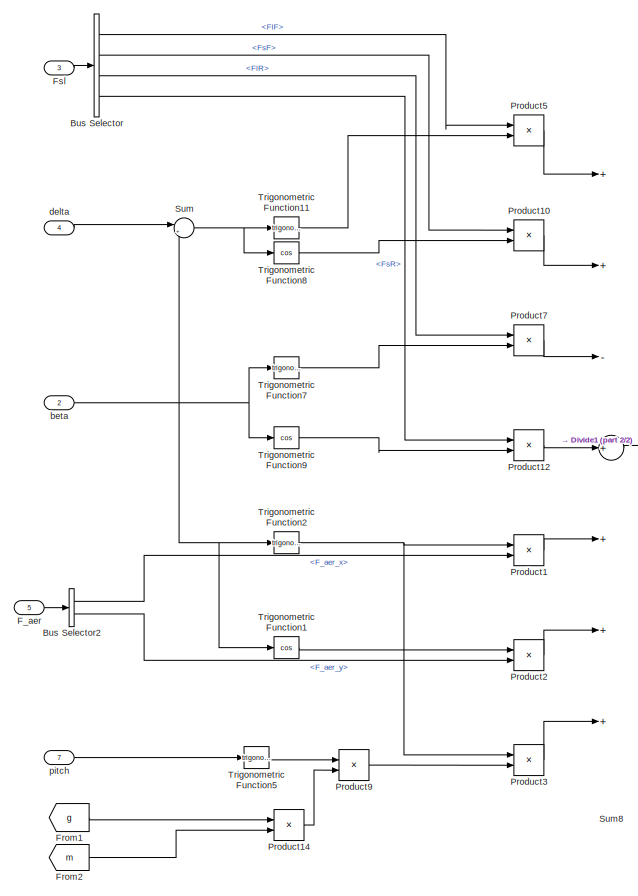
[diagram: SingleTrackModel_linear/vehicle_model/body_chassis_vert/horizontal/betap - part 1/2, left side, full height]
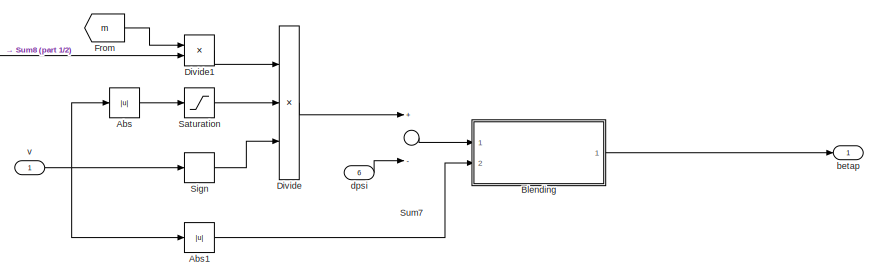
[diagram: SingleTrackModel_linear/vehicle_model/body_chassis_vert/horizontal/betap - part 2/2, middle right region]
BLOCK [SubSystem] SingleTrackModel_linear/vehicle_model/body_chassis_vert/horizontal/betap
  Ports = [7, 1]
  RequestExecContextInheritance = off
BLOCK [Abs] SingleTrackModel_linear/vehicle_model/body_chassis_vert/horizontal/betap/Abs
  SaturateOnIntegerOverflow = off
BLOCK [Abs] SingleTrackModel_linear/vehicle_model/body_chassis_vert/horizontal/betap/Abs1
  SaturateOnIntegerOverflow = off
BLOCK [SubSystem] SingleTrackModel_linear/vehicle_model/body_chassis_vert/horizontal/betap/Blending
  Ports = [2, 1]
  RequestExecContextInheritance = off
BLOCK [Bias] SingleTrackModel_linear/vehicle_model/body_chassis_vert/horizontal/betap/Blending/Bias
  Bias = 1
  SaturateOnIntegerOverflow = off
BLOCK [Bias] SingleTrackModel_linear/vehicle_model/body_chassis_vert/horizontal/betap/Blending/Bias1
  Bias = -2*pi
  SaturateOnIntegerOverflow = off
BLOCK [Gain] SingleTrackModel_linear/vehicle_model/body_chassis_vert/horizontal/betap/Blending/Gain
  Gain = 2*pi*0.5
  OutDataTypeStr = Inherit: Inherit via internal rule
  ParamDataTypeStr = Inherit: Inherit via internal rule
  SaturateOnIntegerOverflow = off
BLOCK [Gain] SingleTrackModel_linear/vehicle_model/body_chassis_vert/horizontal/betap/Blending/Gain1
  Gain = 0.5
  OutDataTypeStr = Inherit: Inherit via internal rule
  ParamDataTypeStr = Inherit: Inherit via internal rule
  SaturateOnIntegerOverflow = off
BLOCK [Product] SingleTrackModel_linear/vehicle_model/body_chassis_vert/horizontal/betap/Blending/Product
  InputSameDT = off
  OutDataTypeStr = Inherit: Inherit via internal rule
  Ports = [2, 1]
  SaturateOnIntegerOverflow = off
BLOCK [Trigonometry] SingleTrackModel_linear/vehicle_model/body_chassis_vert/horizontal/betap/Blending/Trigonometric Function
  Operator = tanh
  Ports = [1, 1]
BLOCK [Inport] SingleTrackModel_linear/vehicle_model/body_chassis_vert/horizontal/betap/Blending/absVx
  IconDisplay = Port number
  Port = 2
BLOCK [Inport] SingleTrackModel_linear/vehicle_model/body_chassis_vert/horizontal/betap/Blending/betapin
  IconDisplay = Port number
BLOCK [Outport] SingleTrackModel_linear/vehicle_model/body_chassis_vert/horizontal/betap/Blending/betapout
  IconDisplay = Port number
BLOCK [BusSelector] SingleTrackModel_linear/vehicle_model/body_chassis_vert/horizontal/betap/Bus Selector
  OutputAsBus = off
  OutputSignals = Fl.FlF,Fs.FsF,Fl.FlR,Fs.FsR
  Ports = [1, 4]
BLOCK [BusSelector] SingleTrackModel_linear/vehicle_model/body_chassis_vert/horizontal/betap/Bus Selector2
  OutputAsBus = off
  OutputSignals = F_aer_x,F_aer_y
  Ports = [1, 2]
BLOCK [Product] SingleTrackModel_linear/vehicle_model/body_chassis_vert/horizontal/betap/Divide
  InputSameDT = off
  Inputs = */*
  OutDataTypeStr = Inherit: Inherit via internal rule
  Ports = [3, 1]
  RndMeth = Floor
  SaturateOnIntegerOverflow = off
BLOCK [Product] SingleTrackModel_linear/vehicle_model/body_chassis_vert/horizontal/betap/Divide1
  InputSameDT = off
  Inputs = /*
  OutDataTypeStr = Inherit: Inherit via internal rule
  Ports = [2, 1]
  RndMeth = Floor
  SaturateOnIntegerOverflow = off
BLOCK [Inport] SingleTrackModel_linear/vehicle_model/body_chassis_vert/horizontal/betap/F_aer
  IconDisplay = Port number
  Port = 5
BLOCK [From] SingleTrackModel_linear/vehicle_model/body_chassis_vert/horizontal/betap/From
  GotoTag = m
  TagVisibility = scoped
BLOCK [From] SingleTrackModel_linear/vehicle_model/body_chassis_vert/horizontal/betap/From1
  GotoTag = g
  TagVisibility = scoped
BLOCK [From] SingleTrackModel_linear/vehicle_model/body_chassis_vert/horizontal/betap/From2
  GotoTag = m
  TagVisibility = scoped
BLOCK [Inport] SingleTrackModel_linear/vehicle_model/body_chassis_vert/horizontal/betap/Fsl
  IconDisplay = Port number
  Port = 3
BLOCK [Product] SingleTrackModel_linear/vehicle_model/body_chassis_vert/horizontal/betap/Product1
  InputSameDT = off
  OutDataTypeStr = Inherit: Inherit via internal rule
  Ports = [2, 1]
  SaturateOnIntegerOverflow = off
BLOCK [Product] SingleTrackModel_linear/vehicle_model/body_chassis_vert/horizontal/betap/Product10
  InputSameDT = off
  OutDataTypeStr = Inherit: Inherit via internal rule
  Ports = [2, 1]
  SaturateOnIntegerOverflow = off
BLOCK [Product] SingleTrackModel_linear/vehicle_model/body_chassis_vert/horizontal/betap/Product12
  InputSameDT = off
  OutDataTypeStr = Inherit: Inherit via internal rule
  Ports = [2, 1]
  SaturateOnIntegerOverflow = off
BLOCK [Product] SingleTrackModel_linear/vehicle_model/body_chassis_vert/horizontal/betap/Product14
  InputSameDT = off
  OutDataTypeStr = Inherit: Inherit via internal rule
  Ports = [2, 1]
  SaturateOnIntegerOverflow = off
BLOCK [Product] SingleTrackModel_linear/vehicle_model/body_chassis_vert/horizontal/betap/Product2
  InputSameDT = off
  OutDataTypeStr = Inherit: Inherit via internal rule
  Ports = [2, 1]
  SaturateOnIntegerOverflow = off
BLOCK [Product] SingleTrackModel_linear/vehicle_model/body_chassis_vert/horizontal/betap/Product3
  InputSameDT = off
  OutDataTypeStr = Inherit: Inherit via internal rule
  Ports = [2, 1]
  SaturateOnIntegerOverflow = off
BLOCK [Product] SingleTrackModel_linear/vehicle_model/body_chassis_vert/horizontal/betap/Product5
  InputSameDT = off
  OutDataTypeStr = Inherit: Inherit via internal rule
  Ports = [2, 1]
  SaturateOnIntegerOverflow = off
BLOCK [Product] SingleTrackModel_linear/vehicle_model/body_chassis_vert/horizontal/betap/Product7
  InputSameDT = off
  OutDataTypeStr = Inherit: Inherit via internal rule
  Ports = [2, 1]
  SaturateOnIntegerOverflow = off
BLOCK [Product] SingleTrackModel_linear/vehicle_model/body_chassis_vert/horizontal/betap/Product9
  InputSameDT = off
  OutDataTypeStr = Inherit: Inherit via internal rule
  Ports = [2, 1]
  SaturateOnIntegerOverflow = off
BLOCK [Saturate] SingleTrackModel_linear/vehicle_model/body_chassis_vert/horizontal/betap/Saturation
  InputPortMap = u0
  LowerLimit = 0.5e-5
  Ports = [1, 1]
  UpperLimit = 1e10
BLOCK [Signum] SingleTrackModel_linear/vehicle_model/body_chassis_vert/horizontal/betap/Sign
BLOCK [Sum] SingleTrackModel_linear/vehicle_model/body_chassis_vert/horizontal/betap/Sum
  IconShape = round
  InputSameDT = off
  Inputs = |+-
  OutDataTypeStr = Inherit: Inherit via internal rule
  Ports = [2, 1]
  SaturateOnIntegerOverflow = off
BLOCK [Sum] SingleTrackModel_linear/vehicle_model/body_chassis_vert/horizontal/betap/Sum7
  InputSameDT = off
  Inputs = +-
  OutDataTypeStr = Inherit: Inherit via internal rule
  Ports = [2, 1]
  SaturateOnIntegerOverflow = off
BLOCK [Sum] SingleTrackModel_linear/vehicle_model/body_chassis_vert/horizontal/betap/Sum8
  InputSameDT = off
  Inputs = ++-++++
  OutDataTypeStr = Inherit: Inherit via internal rule
  Ports = [7, 1]
  SaturateOnIntegerOverflow = off
BLOCK [Trigonometry] SingleTrackModel_linear/vehicle_model/body_chassis_vert/horizontal/betap/Trigonometric Function1
  Operator = cos
  Ports = [1, 1]
BLOCK [Trigonometry] SingleTrackModel_linear/vehicle_model/body_chassis_vert/horizontal/betap/Trigonometric Function11
  Ports = [1, 1]
BLOCK [Trigonometry] SingleTrackModel_linear/vehicle_model/body_chassis_vert/horizontal/betap/Trigonometric Function2
  Ports = [1, 1]
BLOCK [Trigonometry] SingleTrackModel_linear/vehicle_model/body_chassis_vert/horizontal/betap/Trigonometric Function5
  Ports = [1, 1]
BLOCK [Trigonometry] SingleTrackModel_linear/vehicle_model/body_chassis_vert/horizontal/betap/Trigonometric Function7
  Ports = [1, 1]
BLOCK [Trigonometry] SingleTrackModel_linear/vehicle_model/body_chassis_vert/horizontal/betap/Trigonometric Function8
  Operator = cos
  Ports = [1, 1]
BLOCK [Trigonometry] SingleTrackModel_linear/vehicle_model/body_chassis_vert/horizontal/betap/Trigonometric Function9
  Operator = cos
  Ports = [1, 1]
BLOCK [Inport] SingleTrackModel_linear/vehicle_model/body_chassis_vert/horizontal/betap/beta
  IconDisplay = Port number
  Port = 2
BLOCK [Outport] SingleTrackModel_linear/vehicle_model/body_chassis_vert/horizontal/betap/betap
  IconDisplay = Port number
BLOCK [Inport] SingleTrackModel_linear/vehicle_model/body_chassis_vert/horizontal/betap/delta
  IconDisplay = Port number
  Port = 4
BLOCK [Inport] SingleTrackModel_linear/vehicle_model/body_chassis_vert/horizontal/betap/dpsi
  IconDisplay = Port number
  Port = 6
BLOCK [Inport] SingleTrackModel_linear/vehicle_model/body_chassis_vert/horizontal/betap/pitch
  IconDisplay = Port number
  Port = 7
BLOCK [Inport] SingleTrackModel_linear/vehicle_model/body_chassis_vert/horizontal/betap/v
  IconDisplay = Port number
BLOCK [Inport] SingleTrackModel_linear/vehicle_model/body_chassis_vert/horizontal/delta
  IconDisplay = Port number
BLOCK [Inport] SingleTrackModel_linear/vehicle_model/body_chassis_vert/horizontal/init_pos
  IconDisplay = Port number
  Port = 5
BLOCK [Inport] SingleTrackModel_linear/vehicle_model/body_chassis_vert/horizontal/pitch_road
  IconDisplay = Port number
  Port = 7
BLOCK [Outport] SingleTrackModel_linear/vehicle_model/body_chassis_vert/horizontal/psi
  IconDisplay = Port number
  Port = 2
BLOCK [SubSystem] SingleTrackModel_linear/vehicle_model/body_chassis_vert/horizontal/psipp
  Ports = [3, 1]
  RequestExecContextInheritance = off
BLOCK [BusSelector] SingleTrackModel_linear/vehicle_model/body_chassis_vert/horizontal/psipp/Bus Selector1
  OutputAsBus = off
  OutputSignals = Fl.FlF,Fs.FsF,Fs.FsR
  Ports = [1, 3]
BLOCK [BusSelector] SingleTrackModel_linear/vehicle_model/body_chassis_vert/horizontal/psipp/Bus Selector2
  OutputAsBus = off
  OutputSignals = F_aer_y
  Ports = [1, 1]
BLOCK [Product] SingleTrackModel_linear/vehicle_model/body_chassis_vert/horizontal/psipp/Divide
  InputSameDT = off
  Inputs = */
  OutDataTypeStr = Inherit: Inherit via internal rule
  Ports = [2, 1]
  RndMeth = Floor
  SaturateOnIntegerOverflow = off
BLOCK [Inport] SingleTrackModel_linear/vehicle_model/body_chassis_vert/horizontal/psipp/F_aer
  IconDisplay = Port number
  Port = 3
BLOCK [Inport] SingleTrackModel_linear/vehicle_model/body_chassis_vert/horizontal/psipp/Fls
  IconDisplay = Port number
BLOCK [From] SingleTrackModel_linear/vehicle_model/body_chassis_vert/horizontal/psipp/From
  GotoTag = I_z
  TagVisibility = scoped
BLOCK [From] SingleTrackModel_linear/vehicle_model/body_chassis_vert/horizontal/psipp/From1
  GotoTag = lF
  TagVisibility = scoped
BLOCK [From] SingleTrackModel_linear/vehicle_model/body_chassis_vert/horizontal/psipp/From2
  GotoTag = lDP
  TagVisibility = scoped
BLOCK [From] SingleTrackModel_linear/vehicle_model/body_chassis_vert/horizontal/psipp/From6
  GotoTag = lR
  TagVisibility = scoped
BLOCK [Product] SingleTrackModel_linear/vehicle_model/body_chassis_vert/horizontal/psipp/Product17
  InputSameDT = off
  OutDataTypeStr = Inherit: Inherit via internal rule
  Ports = [2, 1]
  SaturateOnIntegerOverflow = off
BLOCK [Product] SingleTrackModel_linear/vehicle_model/body_chassis_vert/horizontal/psipp/Product19
  InputSameDT = off
  OutDataTypeStr = Inherit: Inherit via internal rule
  Ports = [2, 1]
  SaturateOnIntegerOverflow = off
BLOCK [Product] SingleTrackModel_linear/vehicle_model/body_chassis_vert/horizontal/psipp/Product23
  InputSameDT = off
  OutDataTypeStr = Inherit: Inherit via internal rule
  Ports = [2, 1]
  SaturateOnIntegerOverflow = off
BLOCK [Product] SingleTrackModel_linear/vehicle_model/body_chassis_vert/horizontal/psipp/Product34
  InputSameDT = off
  OutDataTypeStr = Inherit: Inherit via internal rule
  Ports = [2, 1]
  SaturateOnIntegerOverflow = off
BLOCK [Product] SingleTrackModel_linear/vehicle_model/body_chassis_vert/horizontal/psipp/Product5
  InputSameDT = off
  OutDataTypeStr = Inherit: Inherit via internal rule
  Ports = [2, 1]
  SaturateOnIntegerOverflow = off
BLOCK [Product] SingleTrackModel_linear/vehicle_model/body_chassis_vert/horizontal/psipp/Product7
  InputSameDT = off
  OutDataTypeStr = Inherit: Inherit via internal rule
  Ports = [2, 1]
  SaturateOnIntegerOverflow = off
BLOCK [Sum] SingleTrackModel_linear/vehicle_model/body_chassis_vert/horizontal/psipp/Sum
  InputSameDT = off
  Inputs = ++--
  OutDataTypeStr = Inherit: Inherit via internal rule
  Ports = [4, 1]
  SaturateOnIntegerOverflow = off
BLOCK [Trigonometry] SingleTrackModel_linear/vehicle_model/body_chassis_vert/horizontal/psipp/Trigonometric Function5
  Ports = [1, 1]
BLOCK [Trigonometry] SingleTrackModel_linear/vehicle_model/body_chassis_vert/horizontal/psipp/Trigonometric Function6
  Operator = cos
  Ports = [1, 1]
BLOCK [Inport] SingleTrackModel_linear/vehicle_model/body_chassis_vert/horizontal/psipp/delta
  IconDisplay = Port number
  Port = 2
BLOCK [Outport] SingleTrackModel_linear/vehicle_model/body_chassis_vert/horizontal/psipp/psipp
  IconDisplay = Port number
BLOCK [Inport] SingleTrackModel_linear/vehicle_model/body_chassis_vert/horizontal/rho_air
  IconDisplay = Port number
  Port = 4
BLOCK [Outport] SingleTrackModel_linear/vehicle_model/body_chassis_vert/horizontal/v_abs
  IconDisplay = Port number
  Port = 3
BLOCK [Inport] SingleTrackModel_linear/vehicle_model/body_chassis_vert/horizontal/v_wind
  IconDisplay = Port number
  Port = 6
BLOCK [Outport] SingleTrackModel_linear/vehicle_model/body_chassis_vert/horizontal/vx
  IconDisplay = Port number
  Port = 6
BLOCK [Outport] SingleTrackModel_linear/vehicle_model/body_chassis_vert/horizontal/vy
  IconDisplay = Port number
  Port = 7
BLOCK [SubSystem] SingleTrackModel_linear/vehicle_model/body_chassis_vert/horizontal/xy_kos
  Ports = [5, 4]
  RequestExecContextInheritance = off
BLOCK [Product] SingleTrackModel_linear/vehicle_model/body_chassis_vert/horizontal/xy_kos/Product
  InputSameDT = off
  OutDataTypeStr = Inherit: Inherit via internal rule
  Ports = [2, 1]
  SaturateOnIntegerOverflow = off
BLOCK [Product] SingleTrackModel_linear/vehicle_model/body_chassis_vert/horizontal/xy_kos/Product1
  InputSameDT = off
  OutDataTypeStr = Inherit: Inherit via internal rule
  Ports = [2, 1]
  SaturateOnIntegerOverflow = off
BLOCK [Product] SingleTrackModel_linear/vehicle_model/body_chassis_vert/horizontal/xy_kos/Product2
  InputSameDT = off
  OutDataTypeStr = Inherit: Inherit via internal rule
  Ports = [2, 1]
  SaturateOnIntegerOverflow = off
BLOCK [Product] SingleTrackModel_linear/vehicle_model/body_chassis_vert/horizontal/xy_kos/Product3
  InputSameDT = off
  OutDataTypeStr = Inherit: Inherit via internal rule
  Ports = [2, 1]
  SaturateOnIntegerOverflow = off
BLOCK [Product] SingleTrackModel_linear/vehicle_model/body_chassis_vert/horizontal/xy_kos/Product4
  InputSameDT = off
  OutDataTypeStr = Inherit: Inherit via internal rule
  Ports = [2, 1]
  SaturateOnIntegerOverflow = off
BLOCK [Product] SingleTrackModel_linear/vehicle_model/body_chassis_vert/horizontal/xy_kos/Product5
  InputSameDT = off
  OutDataTypeStr = Inherit: Inherit via internal rule
  Ports = [2, 1]
  SaturateOnIntegerOverflow = off
BLOCK [Product] SingleTrackModel_linear/vehicle_model/body_chassis_vert/horizontal/xy_kos/Product6
  InputSameDT = off
  OutDataTypeStr = Inherit: Inherit via internal rule
  Ports = [2, 1]
  SaturateOnIntegerOverflow = off
BLOCK [Sum] SingleTrackModel_linear/vehicle_model/body_chassis_vert/horizontal/xy_kos/Sum
  InputSameDT = off
  OutDataTypeStr = Inherit: Inherit via internal rule
  Ports = [2, 1]
  SaturateOnIntegerOverflow = off
BLOCK [Sum] SingleTrackModel_linear/vehicle_model/body_chassis_vert/horizontal/xy_kos/Sum1
  InputSameDT = off
  Inputs = -+
  OutDataTypeStr = Inherit: Inherit via internal rule
  Ports = [2, 1]
  SaturateOnIntegerOverflow = off
BLOCK [Sum] SingleTrackModel_linear/vehicle_model/body_chassis_vert/horizontal/xy_kos/Sum2
  InputSameDT = off
  OutDataTypeStr = Inherit: Inherit via internal rule
  Ports = [2, 1]
  SaturateOnIntegerOverflow = off
BLOCK [Trigonometry] SingleTrackModel_linear/vehicle_model/body_chassis_vert/horizontal/xy_kos/Trigonometric Function
  Operator = cos
  Ports = [1, 1]
BLOCK [Trigonometry] SingleTrackModel_linear/vehicle_model/body_chassis_vert/horizontal/xy_kos/Trigonometric Function1
  Ports = [1, 1]
BLOCK [Outport] SingleTrackModel_linear/vehicle_model/body_chassis_vert/horizontal/xy_kos/ax
  IconDisplay = Port number
BLOCK [Outport] SingleTrackModel_linear/vehicle_model/body_chassis_vert/horizontal/xy_kos/ay
  IconDisplay = Port number
  Port = 2
BLOCK [Inport] SingleTrackModel_linear/vehicle_model/body_chassis_vert/horizontal/xy_kos/beta
  IconDisplay = Port number
  Port = 3
BLOCK [Inport] SingleTrackModel_linear/vehicle_model/body_chassis_vert/horizontal/xy_kos/betap
  IconDisplay = Port number
  Port = 4
BLOCK [Inport] SingleTrackModel_linear/vehicle_model/body_chassis_vert/horizontal/xy_kos/dv
  IconDisplay = Port number
BLOCK [Inport] SingleTrackModel_linear/vehicle_model/body_chassis_vert/horizontal/xy_kos/psip
  IconDisplay = Port number
  Port = 5
BLOCK [Inport] SingleTrackModel_linear/vehicle_model/body_chassis_vert/horizontal/xy_kos/v
  IconDisplay = Port number
  Port = 2
BLOCK [Outport] SingleTrackModel_linear/vehicle_model/body_chassis_vert/horizontal/xy_kos/vx
  IconDisplay = Port number
  Port = 3
BLOCK [Outport] SingleTrackModel_linear/vehicle_model/body_chassis_vert/horizontal/xy_kos/vy
  IconDisplay = Port number
  Port = 4
BLOCK [Inport] SingleTrackModel_linear/vehicle_model/body_chassis_vert/init_pos
  IconDisplay = Port number
  Port = 6
BLOCK [Outport] SingleTrackModel_linear/vehicle_model/body_chassis_vert/psi
  IconDisplay = Port number
  Port = 5
BLOCK [Inport] SingleTrackModel_linear/vehicle_model/body_chassis_vert/rho_air
  IconDisplay = Port number
  Port = 2
BLOCK [SubSystem] SingleTrackModel_linear/vehicle_model/body_chassis_vert/road_orientation
  Ports = [1, 1]
  RequestExecContextInheritance = off
BLOCK [BusSelector] SingleTrackModel_linear/vehicle_model/body_chassis_vert/road_orientation/Bus Selector1
  OutputAsBus = off
  OutputSignals = zroad_F,zroad_R
  Ports = [1, 2]
BLOCK [Product] SingleTrackModel_linear/vehicle_model/body_chassis_vert/road_orientation/Divide8
  InputSameDT = off
  Inputs = */
  OutDataTypeStr = Inherit: Inherit via internal rule
  Ports = [2, 1]
  RndMeth = Floor
  SaturateOnIntegerOverflow = off
BLOCK [From] SingleTrackModel_linear/vehicle_model/body_chassis_vert/road_orientation/From5
  GotoTag = l
  TagVisibility = scoped
BLOCK [Sum] SingleTrackModel_linear/vehicle_model/body_chassis_vert/road_orientation/Subtract20
  InputSameDT = off
  Inputs = +-
  OutDataTypeStr = Inherit: Inherit via internal rule
  Ports = [2, 1]
  SaturateOnIntegerOverflow = off
BLOCK [Trigonometry] SingleTrackModel_linear/vehicle_model/body_chassis_vert/road_orientation/Trigonometric Function
  Operator = asin
  Ports = [1, 1]
BLOCK [Outport] SingleTrackModel_linear/vehicle_model/body_chassis_vert/road_orientation/theta_road
  IconDisplay = Port number
BLOCK [Inport] SingleTrackModel_linear/vehicle_model/body_chassis_vert/road_orientation/zroad
  IconDisplay = Port number
BLOCK [SubSystem] SingleTrackModel_linear/vehicle_model/body_chassis_vert/transformation
  Ports = [4, 2]
  RequestExecContextInheritance = off
BLOCK [BusCreator] SingleTrackModel_linear/vehicle_model/body_chassis_vert/transformation/Bus Creator1
  DisplayOption = bar
  InheritFromInputs = on
  Inputs = 2
  Ports = [2, 1]
BLOCK [BusCreator] SingleTrackModel_linear/vehicle_model/body_chassis_vert/transformation/Bus Creator2
  DisplayOption = bar
  InheritFromInputs = on
  Inputs = 2
  Ports = [2, 1]
BLOCK [Inport] SingleTrackModel_linear/vehicle_model/body_chassis_vert/transformation/ax
  IconDisplay = Port number
BLOCK [Outport] SingleTrackModel_linear/vehicle_model/body_chassis_vert/transformation/axy
  IconDisplay = Port number
BLOCK [Inport] SingleTrackModel_linear/vehicle_model/body_chassis_vert/transformation/ay
  IconDisplay = Port number
  Port = 2
BLOCK [Inport] SingleTrackModel_linear/vehicle_model/body_chassis_vert/transformation/vx
  IconDisplay = Port number
  Port = 3
BLOCK [Outport] SingleTrackModel_linear/vehicle_model/body_chassis_vert/transformation/vxy
  IconDisplay = Port number
  Port = 2
BLOCK [Inport] SingleTrackModel_linear/vehicle_model/body_chassis_vert/transformation/vy
  IconDisplay = Port number
  Port = 4
BLOCK [Inport] SingleTrackModel_linear/vehicle_model/body_chassis_vert/v_wind
  IconDisplay = Port number
BLOCK [Outport] SingleTrackModel_linear/vehicle_model/body_chassis_vert/vabs
  IconDisplay = Port number
  Port = 6
BLOCK [SubSystem] SingleTrackModel_linear/vehicle_model/body_chassis_vert/vertical
  Ports = [0, 1]
  RequestExecContextInheritance = off
BLOCK [BusCreator] SingleTrackModel_linear/vehicle_model/body_chassis_vert/vertical/Bus Creator1
  DisplayOption = bar
  InheritFromInputs = on
  Inputs = 2
  Ports = [2, 1]
BLOCK [Product] SingleTrackModel_linear/vehicle_model/body_chassis_vert/vertical/Divide
  InputSameDT = off
  Inputs = **/
  OutDataTypeStr = Inherit: Inherit via internal rule
  Ports = [3, 1]
  RndMeth = Floor
  SaturateOnIntegerOverflow = off
BLOCK [Outport] SingleTrackModel_linear/vehicle_model/body_chassis_vert/vertical/F_vert
  IconDisplay = Port number
BLOCK [From] SingleTrackModel_linear/vehicle_model/body_chassis_vert/vertical/From1
  GotoTag = l
  TagVisibility = scoped
BLOCK [From] SingleTrackModel_linear/vehicle_model/body_chassis_vert/vertical/From2
  GotoTag = lR
  TagVisibility = scoped
BLOCK [From] SingleTrackModel_linear/vehicle_model/body_chassis_vert/vertical/From3
  GotoTag = lF
  TagVisibility = scoped
BLOCK [From] SingleTrackModel_linear/vehicle_model/body_chassis_vert/vertical/From5
  GotoTag = g
  TagVisibility = scoped
BLOCK [From] SingleTrackModel_linear/vehicle_model/body_chassis_vert/vertical/From6
  GotoTag = m
  TagVisibility = scoped
BLOCK [Product] SingleTrackModel_linear/vehicle_model/body_chassis_vert/vertical/Product1
  InputSameDT = off
  OutDataTypeStr = Inherit: Inherit via internal rule
  Ports = [2, 1]
  SaturateOnIntegerOverflow = off
BLOCK [Product] SingleTrackModel_linear/vehicle_model/body_chassis_vert/vertical/Product3
  InputSameDT = off
  OutDataTypeStr = Inherit: Inherit via internal rule
  Ports = [2, 1]
  SaturateOnIntegerOverflow = off
BLOCK [SignalConversion] SingleTrackModel_linear/vehicle_model/body_chassis_vert/vertical/Signal Conversion2
  OverrideOpt = off
BLOCK [SignalConversion] SingleTrackModel_linear/vehicle_model/body_chassis_vert/vertical/Signal Conversion3
  OverrideOpt = off
BLOCK [Outport] SingleTrackModel_linear/vehicle_model/body_chassis_vert/vxy
  IconDisplay = Port number
  Port = 2
BLOCK [Inport] SingleTrackModel_linear/vehicle_model/body_chassis_vert/z_road
  IconDisplay = Port number
  Port = 7
BLOCK [SubSystem] SingleTrackModel_linear/vehicle_model/calc_init
  Ports = [1, 1]
  RequestExecContextInheritance = off
BLOCK [BusCreator] SingleTrackModel_linear/vehicle_model/calc_init/Bus Creator
  DisplayOption = bar
  InheritFromInputs = on
  Inputs = 9
  Ports = [9, 1]
BLOCK [BusSelector] SingleTrackModel_linear/vehicle_model/calc_init/Bus Selector
  OutputAsBus = off
  OutputSignals = init_x0,init_y0,init_psi,zroad_RF0,zroad_LF0,zroad_RR0,zroad_LR0
  Ports = [1, 7]
BLOCK [Inport] SingleTrackModel_linear/vehicle_model/calc_init/init_pos
  IconDisplay = Port number
BLOCK [Outport] SingleTrackModel_linear/vehicle_model/calc_init/init_pos_complete
  IconDisplay = Port number
BLOCK [SubSystem] SingleTrackModel_linear/vehicle_model/calc_init/pitch
  Ports = [1, 1]
  RequestExecContextInheritance = off
BLOCK [Sum] SingleTrackModel_linear/vehicle_model/calc_init/pitch/Add
  InputSameDT = off
  OutDataTypeStr = Inherit: Inherit via internal rule
  Ports = [2, 1]
  SaturateOnIntegerOverflow = off
BLOCK [Sum] SingleTrackModel_linear/vehicle_model/calc_init/pitch/Add1
  InputSameDT = off
  OutDataTypeStr = Inherit: Inherit via internal rule
  Ports = [2, 1]
  SaturateOnIntegerOverflow = off
BLOCK [Sum] SingleTrackModel_linear/vehicle_model/calc_init/pitch/Add2
  InputSameDT = off
  Inputs = +-
  OutDataTypeStr = Inherit: Inherit via internal rule
  Ports = [2, 1]
  SaturateOnIntegerOverflow = off
BLOCK [BusSelector] SingleTrackModel_linear/vehicle_model/calc_init/pitch/Bus Selector
  OutputAsBus = off
  OutputSignals = zroad_RF0,zroad_LF0,zroad_RR0,zroad_LR0
  Ports = [1, 4]
BLOCK [Product] SingleTrackModel_linear/vehicle_model/calc_init/pitch/Divide
  InputSameDT = off
  Inputs = */
  OutDataTypeStr = Inherit: Inherit via internal rule
  Ports = [2, 1]
  RndMeth = Floor
  SaturateOnIntegerOverflow = off
BLOCK [From] SingleTrackModel_linear/vehicle_model/calc_init/pitch/From1
  GotoTag = l
  TagVisibility = scoped
BLOCK [Gain] SingleTrackModel_linear/vehicle_model/calc_init/pitch/Gain
  Gain = 0.5
  OutDataTypeStr = Inherit: Inherit via internal rule
  ParamDataTypeStr = Inherit: Inherit via internal rule
  SaturateOnIntegerOverflow = off
BLOCK [Gain] SingleTrackModel_linear/vehicle_model/calc_init/pitch/Gain1
  Gain = 0.5
  OutDataTypeStr = Inherit: Inherit via internal rule
  ParamDataTypeStr = Inherit: Inherit via internal rule
  SaturateOnIntegerOverflow = off
BLOCK [Trigonometry] SingleTrackModel_linear/vehicle_model/calc_init/pitch/Trigonometric Function
  Operator = atan
  Ports = [1, 1]
BLOCK [Inport] SingleTrackModel_linear/vehicle_model/calc_init/pitch/init_pos
  IconDisplay = Port number
BLOCK [Outport] SingleTrackModel_linear/vehicle_model/calc_init/pitch/init_theta
  IconDisplay = Port number
BLOCK [SubSystem] SingleTrackModel_linear/vehicle_model/calc_init/vertical
  Ports = [2, 1]
  RequestExecContextInheritance = off
BLOCK [Sum] SingleTrackModel_linear/vehicle_model/calc_init/vertical/Add
  InputSameDT = off
  OutDataTypeStr = Inherit: Inherit via internal rule
  Ports = [2, 1]
  SaturateOnIntegerOverflow = off
BLOCK [Sum] SingleTrackModel_linear/vehicle_model/calc_init/vertical/Add1
  InputSameDT = off
  OutDataTypeStr = Inherit: Inherit via internal rule
  Ports = [2, 1]
  SaturateOnIntegerOverflow = off
BLOCK [BusSelector] SingleTrackModel_linear/vehicle_model/calc_init/vertical/Bus Selector
  OutputAsBus = off
  OutputSignals = zroad_RF0,zroad_LF0
  Ports = [1, 2]
BLOCK [From] SingleTrackModel_linear/vehicle_model/calc_init/vertical/From
  GotoTag = lF
  TagVisibility = scoped
BLOCK [Gain] SingleTrackModel_linear/vehicle_model/calc_init/vertical/Gain
  Gain = 0.5
  OutDataTypeStr = Inherit: Inherit via internal rule
  ParamDataTypeStr = Inherit: Inherit via internal rule
  SaturateOnIntegerOverflow = off
BLOCK [Product] SingleTrackModel_linear/vehicle_model/calc_init/vertical/Product
  InputSameDT = off
  OutDataTypeStr = Inherit: Inherit via internal rule
  Ports = [2, 1]
  SaturateOnIntegerOverflow = off
BLOCK [Trigonometry] SingleTrackModel_linear/vehicle_model/calc_init/vertical/Trigonometric Function
  Ports = [1, 1]
BLOCK [Inport] SingleTrackModel_linear/vehicle_model/calc_init/vertical/init_pos
  IconDisplay = Port number
BLOCK [Outport] SingleTrackModel_linear/vehicle_model/calc_init/vertical/init_z0
  IconDisplay = Port number
BLOCK [Inport] SingleTrackModel_linear/vehicle_model/calc_init/vertical/theta
  IconDisplay = Port number
  Port = 2
BLOCK [From] SingleTrackModel_linear/vehicle_model/omega
  GotoTag = omega_out
BLOCK [From] SingleTrackModel_linear/vehicle_model/omega1
  GotoTag = Fl
BLOCK [From] SingleTrackModel_linear/vehicle_model/omega12
  GotoTag = init_pos_complete
BLOCK [From] SingleTrackModel_linear/vehicle_model/omega13
  GotoTag = init_pos_complete
BLOCK [From] SingleTrackModel_linear/vehicle_model/omega19
  GotoTag = My
BLOCK [From] SingleTrackModel_linear/vehicle_model/omega2
  GotoTag = Fz
BLOCK [From] SingleTrackModel_linear/vehicle_model/omega25
  GotoTag = alpha
BLOCK [From] SingleTrackModel_linear/vehicle_model/omega27
  GotoTag = r_dyn
BLOCK [From] SingleTrackModel_linear/vehicle_model/omega3
  GotoTag = vl
BLOCK [From] SingleTrackModel_linear/vehicle_model/omega4
  GotoTag = Fs
BLOCK [From] SingleTrackModel_linear/vehicle_model/omega5
  GotoTag = rhoair
  TagVisibility = scoped
BLOCK [From] SingleTrackModel_linear/vehicle_model/omega6
  GotoTag = r_stat
BLOCK [Outport] SingleTrackModel_linear/vehicle_model/r_dyn
  IconDisplay = Port number
  Port = 7
BLOCK [Outport] SingleTrackModel_linear/vehicle_model/r_stat// Static Wheel Radii [m]
  IconDisplay = Port number
  Port = 8
BLOCK [Inport] SingleTrackModel_linear/vehicle_model/reset
  IconDisplay = Port number
  Port = 8
BLOCK [Outport] SingleTrackModel_linear/vehicle_model/v_abs
  IconDisplay = Port number
  Port = 13
BLOCK [Outport] SingleTrackModel_linear/vehicle_model/vl
  IconDisplay = Port number
  Port = 2
BLOCK [SubSystem] SingleTrackModel_linear/vehicle_model/wheel
  Ports = [8, 10]
  RequestExecContextInheritance = off
BLOCK [Outport] SingleTrackModel_linear/vehicle_model/wheel/Fl
  IconDisplay = Port number
BLOCK [Outport] SingleTrackModel_linear/vehicle_model/wheel/Fs
  IconDisplay = Port number
  Port = 2
BLOCK [Inport] SingleTrackModel_linear/vehicle_model/wheel/Fzt
  IconDisplay = Port number
  Port = 8
BLOCK [Inport] SingleTrackModel_linear/vehicle_model/wheel/M_antr
  IconDisplay = Port number
BLOCK [Inport] SingleTrackModel_linear/vehicle_model/wheel/M_brems
  IconDisplay = Port number
  Port = 2
BLOCK [Outport] SingleTrackModel_linear/vehicle_model/wheel/My
  IconDisplay = Port number
  Port = 7
BLOCK [Inport] SingleTrackModel_linear/vehicle_model/wheel/TIR_parameter
  IconDisplay = Port number
  Port = 4
BLOCK [SubSystem] SingleTrackModel_linear/vehicle_model/wheel/Tire Model
  Ports = [8, 6]
  RequestExecContextInheritance = off
BLOCK [BusCreator] SingleTrackModel_linear/vehicle_model/wheel/Tire Model/Bus Creator13
  DisplayOption = bar
  InheritFromInputs = on
  Inputs = 2
  Ports = [2, 1]
BLOCK [BusCreator] SingleTrackModel_linear/vehicle_model/wheel/Tire Model/Bus Creator14
  DisplayOption = bar
  InheritFromInputs = on
  Inputs = 2
  Ports = [2, 1]
BLOCK [BusCreator] SingleTrackModel_linear/vehicle_model/wheel/Tire Model/Bus Creator15
  DisplayOption = bar
  InheritFromInputs = on
  Inputs = 2
  Ports = [2, 1]
BLOCK [BusCreator] SingleTrackModel_linear/vehicle_model/wheel/Tire Model/Bus Creator16
  DisplayOption = bar
  InheritFromInputs = on
  Inputs = 2
  Ports = [2, 1]
BLOCK [BusCreator] SingleTrackModel_linear/vehicle_model/wheel/Tire Model/Bus Creator17
  DisplayOption = bar
  InheritFromInputs = on
  Inputs = 2
  Ports = [2, 1]
BLOCK [BusCreator] SingleTrackModel_linear/vehicle_model/wheel/Tire Model/Bus Creator19
  DisplayOption = bar
  InheritFromInputs = on
  Inputs = 2
  Ports = [2, 1]
BLOCK [BusSelector] SingleTrackModel_linear/vehicle_model/wheel/Tire Model/Bus Selector
  OutputAsBus = off
  OutputSignals = YawAngleVelocityPsip [rad/s]
  Ports = [1, 1]
BLOCK [BusSelector] SingleTrackModel_linear/vehicle_model/wheel/Tire Model/Bus Selector1
  OutputAsBus = off
  OutputSignals = front,rear
  Ports = [1, 2]
BLOCK [BusSelector] SingleTrackModel_linear/vehicle_model/wheel/Tire Model/Bus Selector11
  OutputAsBus = off
  OutputSignals = M_brems_F,M_brems_R
  Ports = [1, 2]
BLOCK [BusSelector] SingleTrackModel_linear/vehicle_model/wheel/Tire Model/Bus Selector12
  OutputAsBus = off
  OutputSignals = M_antr_F,M_antr_R
  Ports = [1, 2]
BLOCK [BusSelector] SingleTrackModel_linear/vehicle_model/wheel/Tire Model/Bus Selector2
  OutputAsBus = off
  OutputSignals = SideSlipAngleBeta [rad]
  Ports = [1, 1]
BLOCK [BusSelector] SingleTrackModel_linear/vehicle_model/wheel/Tire Model/Bus Selector5
  OutputAsBus = off
  OutputSignals = F_F,F_R
  Ports = [1, 2]
BLOCK [SubSystem] SingleTrackModel_linear/vehicle_model/wheel/Tire Model/F
  Ports = [8, 6]
  RequestExecContextInheritance = off
BLOCK [BusSelector] SingleTrackModel_linear/vehicle_model/wheel/Tire Model/F/Bus Selector1
  OutputAsBus = off
  OutputSignals = UNLOADED_RADIUS
  Ports = [1, 1]
BLOCK [Outport] SingleTrackModel_linear/vehicle_model/wheel/Tire Model/F/Fx
  IconDisplay = Port number
BLOCK [Outport] SingleTrackModel_linear/vehicle_model/wheel/Tire Model/F/Fy
  IconDisplay = Port number
  Port = 2
BLOCK [Inport] SingleTrackModel_linear/vehicle_model/wheel/Tire Model/F/Fz
  IconDisplay = Port number
BLOCK [Inport] SingleTrackModel_linear/vehicle_model/wheel/Tire Model/F/M_antr
  IconDisplay = Port number
  Port = 3
BLOCK [Inport] SingleTrackModel_linear/vehicle_model/wheel/Tire Model/F/M_brems
  IconDisplay = Port number
  Port = 2
BLOCK [Outport] SingleTrackModel_linear/vehicle_model/wheel/Tire Model/F/My
  IconDisplay = Port number
  Port = 3
BLOCK [Saturate] SingleTrackModel_linear/vehicle_model/wheel/Tire Model/F/Saturation
  InputPortMap = u0
  LowerLimit = 0.001
  Ports = [1, 1]
  UpperLimit = 99999999
BLOCK [Inport] SingleTrackModel_linear/vehicle_model/wheel/Tire Model/F/TIR_parameter
  IconDisplay = Port number
  Port = 8
BLOCK [Outport] SingleTrackModel_linear/vehicle_model/wheel/Tire Model/F/alpha
  IconDisplay = Port number
  Port = 4
BLOCK [Inport] SingleTrackModel_linear/vehicle_model/wheel/Tire Model/F/beta
  IconDisplay = Port number
  Port = 5
BLOCK [SubSystem] SingleTrackModel_linear/vehicle_model/wheel/Tire Model/F/calc_ALPHA
  Ports = [4, 1]
  RequestExecContextInheritance = off
BLOCK [Outport] SingleTrackModel_linear/vehicle_model/wheel/Tire Model/F/calc_ALPHA/ALPHA
  IconDisplay = Port number
BLOCK [Abs] SingleTrackModel_linear/vehicle_model/wheel/Tire Model/F/calc_ALPHA/Abs2
  SaturateOnIntegerOverflow = off
BLOCK [Sum] SingleTrackModel_linear/vehicle_model/wheel/Tire Model/F/calc_ALPHA/Add
  InputSameDT = off
  Inputs = +--
  OutDataTypeStr = Inherit: Inherit via internal rule
  Ports = [3, 1]
  SaturateOnIntegerOverflow = off
BLOCK [Constant] SingleTrackModel_linear/vehicle_model/wheel/Tire Model/F/calc_ALPHA/Constant1
  Value = 0
BLOCK [Product] SingleTrackModel_linear/vehicle_model/wheel/Tire Model/F/calc_ALPHA/Divide1
  InputSameDT = off
  Inputs = **/
  OutDataTypeStr = Inherit: Inherit via internal rule
  Ports = [3, 1]
  RndMeth = Floor
  SaturateOnIntegerOverflow = off
BLOCK [From] SingleTrackModel_linear/vehicle_model/wheel/Tire Model/F/calc_ALPHA/From1
  GotoTag = lF
  TagVisibility = scoped
BLOCK [Switch] SingleTrackModel_linear/vehicle_model/wheel/Tire Model/F/calc_ALPHA/Switch2
  InputSameDT = off
  SaturateOnIntegerOverflow = off
  Threshold = 1
BLOCK [Inport] SingleTrackModel_linear/vehicle_model/wheel/Tire Model/F/calc_ALPHA/beta
  IconDisplay = Port number
  Port = 3
BLOCK [Inport] SingleTrackModel_linear/vehicle_model/wheel/Tire Model/F/calc_ALPHA/delta
  IconDisplay = Port number
  Port = 2
BLOCK [Inport] SingleTrackModel_linear/vehicle_model/wheel/Tire Model/F/calc_ALPHA/psip
  IconDisplay = Port number
  Port = 4
BLOCK [Inport] SingleTrackModel_linear/vehicle_model/wheel/Tire Model/F/calc_ALPHA/v
  IconDisplay = Port number
BLOCK [SubSystem] SingleTrackModel_linear/vehicle_model/wheel/Tire Model/F/calc_Fx_f
  Ports = [4, 1]
  RequestExecContextInheritance = off
BLOCK [Product] SingleTrackModel_linear/vehicle_model/wheel/Tire Model/F/calc_Fx_f/Divide
  InputSameDT = off
  Inputs = */
  OutDataTypeStr = Inherit: Inherit via internal rule
  Ports = [2, 1]
  RndMeth = Floor
  SaturateOnIntegerOverflow = off
BLOCK [Outport] SingleTrackModel_linear/vehicle_model/wheel/Tire Model/F/calc_Fx_f/Fx_f
  IconDisplay = Port number
BLOCK [Inport] SingleTrackModel_linear/vehicle_model/wheel/Tire Model/F/calc_Fx_f/M_antr
  IconDisplay = Port number
  Port = 3
BLOCK [Inport] SingleTrackModel_linear/vehicle_model/wheel/Tire Model/F/calc_Fx_f/M_brems
  IconDisplay = Port number
  Port = 2
BLOCK [Inport] SingleTrackModel_linear/vehicle_model/wheel/Tire Model/F/calc_Fx_f/M_reib
  IconDisplay = Port number
BLOCK [Sum] SingleTrackModel_linear/vehicle_model/wheel/Tire Model/F/calc_Fx_f/Sum
  IconShape = round
  InputSameDT = off
  Inputs = +++
  OutDataTypeStr = Inherit: Inherit via internal rule
  Ports = [3, 1]
  SaturateOnIntegerOverflow = off
BLOCK [Inport] SingleTrackModel_linear/vehicle_model/wheel/Tire Model/F/calc_Fx_f/r_dyn
  IconDisplay = Port number
  Port = 4
BLOCK [SubSystem] SingleTrackModel_linear/vehicle_model/wheel/Tire Model/F/calc_Fy_f
  Ports = [1, 1]
  RequestExecContextInheritance = off
BLOCK [From] SingleTrackModel_linear/vehicle_model/wheel/Tire Model/F/calc_Fy_f/From
  GotoTag = c_alpha_F
  TagVisibility = scoped
BLOCK [Outport] SingleTrackModel_linear/vehicle_model/wheel/Tire Model/F/calc_Fy_f/Fy_f
  IconDisplay = Port number
BLOCK [Product] SingleTrackModel_linear/vehicle_model/wheel/Tire Model/F/calc_Fy_f/Product
  InputSameDT = off
  OutDataTypeStr = Inherit: Inherit via internal rule
  Ports = [2, 1]
  RndMeth = Floor
  SaturateOnIntegerOverflow = off
BLOCK [Inport] SingleTrackModel_linear/vehicle_model/wheel/Tire Model/F/calc_Fy_f/alpha
  IconDisplay = Port number
BLOCK [SubSystem] SingleTrackModel_linear/vehicle_model/wheel/Tire Model/F/calc_My//M_reib
  Ports = [2, 1]
  RequestExecContextInheritance = off
BLOCK [Inport] SingleTrackModel_linear/vehicle_model/wheel/Tire Model/F/calc_My//M_reib/Fz
  IconDisplay = Port number
BLOCK [Gain] SingleTrackModel_linear/vehicle_model/wheel/Tire Model/F/calc_My//M_reib/Gain
  Gain = -1
  OutDataTypeStr = Inherit: Inherit via internal rule
  ParamDataTypeStr = Inherit: Inherit via internal rule
  SaturateOnIntegerOverflow = off
BLOCK [Outport] SingleTrackModel_linear/vehicle_model/wheel/Tire Model/F/calc_My//M_reib/My
  IconDisplay = Port number
BLOCK [Product] SingleTrackModel_linear/vehicle_model/wheel/Tire Model/F/calc_My//M_reib/Product
  InputSameDT = off
  Inputs = 3
  OutDataTypeStr = Inherit: Inherit via internal rule
  Ports = [3, 1]
  RndMeth = Floor
  SaturateOnIntegerOverflow = off
BLOCK [Constant] SingleTrackModel_linear/vehicle_model/wheel/Tire Model/F/calc_My//M_reib/crr
  Value = 0.012
BLOCK [Inport] SingleTrackModel_linear/vehicle_model/wheel/Tire Model/F/calc_My//M_reib/r_dyn
  IconDisplay = Port number
  Port = 2
BLOCK [SubSystem] SingleTrackModel_linear/vehicle_model/wheel/Tire Model/F/calc_radius
  Ports = [1, 2]
  RequestExecContextInheritance = off
BLOCK [Gain] SingleTrackModel_linear/vehicle_model/wheel/Tire Model/F/calc_radius/Gain
  Gain = 0.95
  OutDataTypeStr = Inherit: Inherit via internal rule
  ParamDataTypeStr = Inherit: Inherit via internal rule
  SaturateOnIntegerOverflow = off
BLOCK [Gain] SingleTrackModel_linear/vehicle_model/wheel/Tire Model/F/calc_radius/Gain1
  Gain = (59/60)
  OutDataTypeStr = Inherit: Inherit via internal rule
  ParamDataTypeStr = Inherit: Inherit via internal rule
  SaturateOnIntegerOverflow = off
BLOCK [Inport] SingleTrackModel_linear/vehicle_model/wheel/Tire Model/F/calc_radius/UNLOADED_RADIUS
  IconDisplay = Port number
BLOCK [Outport] SingleTrackModel_linear/vehicle_model/wheel/Tire Model/F/calc_radius/r_dyn_F
  IconDisplay = Port number
  Port = 2
BLOCK [Outport] SingleTrackModel_linear/vehicle_model/wheel/Tire Model/F/calc_radius/r_stat_F
  IconDisplay = Port number
BLOCK [Inport] SingleTrackModel_linear/vehicle_model/wheel/Tire Model/F/delta
  IconDisplay = Port number
  Port = 4
BLOCK [Inport] SingleTrackModel_linear/vehicle_model/wheel/Tire Model/F/psip
  IconDisplay = Port number
  Port = 6
BLOCK [Outport] SingleTrackModel_linear/vehicle_model/wheel/Tire Model/F/r_dyn
  IconDisplay = Port number
  Port = 5
BLOCK [Outport] SingleTrackModel_linear/vehicle_model/wheel/Tire Model/F/r_stat
  IconDisplay = Port number
  Port = 6
BLOCK [Inport] SingleTrackModel_linear/vehicle_model/wheel/Tire Model/F/vabs
  IconDisplay = Port number
  Port = 7
BLOCK [Outport] SingleTrackModel_linear/vehicle_model/wheel/Tire Model/Fl
  IconDisplay = Port number
  Port = 2
BLOCK [Outport] SingleTrackModel_linear/vehicle_model/wheel/Tire Model/Fs
  IconDisplay = Port number
  Port = 3
BLOCK [Inport] SingleTrackModel_linear/vehicle_model/wheel/Tire Model/Fz
  IconDisplay = Port number
BLOCK [Gain] SingleTrackModel_linear/vehicle_model/wheel/Tire Model/Gain
  Gain = 2
  OutDataTypeStr = Inherit: Inherit via internal rule
  ParamDataTypeStr = Inherit: Inherit via internal rule
  SaturateOnIntegerOverflow = off
BLOCK [Gain] SingleTrackModel_linear/vehicle_model/wheel/Tire Model/Gain1
  Gain = 2
  OutDataTypeStr = Inherit: Inherit via internal rule
  ParamDataTypeStr = Inherit: Inherit via internal rule
  SaturateOnIntegerOverflow = off
BLOCK [Inport] SingleTrackModel_linear/vehicle_model/wheel/Tire Model/M_antr
  IconDisplay = Port number
  Port = 3
BLOCK [Inport] SingleTrackModel_linear/vehicle_model/wheel/Tire Model/M_brems
  IconDisplay = Port number
  Port = 2
BLOCK [Outport] SingleTrackModel_linear/vehicle_model/wheel/Tire Model/My
  IconDisplay = Port number
  Port = 4
BLOCK [SubSystem] SingleTrackModel_linear/vehicle_model/wheel/Tire Model/R
  Ports = [7, 6]
  RequestExecContextInheritance = off
BLOCK [BusSelector] SingleTrackModel_linear/vehicle_model/wheel/Tire Model/R/Bus Selector1
  OutputAsBus = off
  OutputSignals = UNLOADED_RADIUS
  Ports = [1, 1]
BLOCK [Outport] SingleTrackModel_linear/vehicle_model/wheel/Tire Model/R/Fx
  IconDisplay = Port number
BLOCK [Outport] SingleTrackModel_linear/vehicle_model/wheel/Tire Model/R/Fy
  IconDisplay = Port number
  Port = 2
BLOCK [Inport] SingleTrackModel_linear/vehicle_model/wheel/Tire Model/R/Fz
  IconDisplay = Port number
  Port = 4
BLOCK [Inport] SingleTrackModel_linear/vehicle_model/wheel/Tire Model/R/M_antr
  IconDisplay = Port number
  Port = 6
BLOCK [Inport] SingleTrackModel_linear/vehicle_model/wheel/Tire Model/R/M_brems
  IconDisplay = Port number
  Port = 5
BLOCK [Outport] SingleTrackModel_linear/vehicle_model/wheel/Tire Model/R/My
  IconDisplay = Port number
  Port = 3
BLOCK [Saturate] SingleTrackModel_linear/vehicle_model/wheel/Tire Model/R/Saturation
  InputPortMap = u0
  LowerLimit = 0.001
  Ports = [1, 1]
  UpperLimit = 99999999
BLOCK [Inport] SingleTrackModel_linear/vehicle_model/wheel/Tire Model/R/TIR_parameter
  IconDisplay = Port number
  Port = 7
BLOCK [Outport] SingleTrackModel_linear/vehicle_model/wheel/Tire Model/R/alpha
  IconDisplay = Port number
  Port = 4
BLOCK [Inport] SingleTrackModel_linear/vehicle_model/wheel/Tire Model/R/beta
  IconDisplay = Port number
  Port = 3
BLOCK [SubSystem] SingleTrackModel_linear/vehicle_model/wheel/Tire Model/R/calc_ALPHA
  Ports = [3, 1]
  RequestExecContextInheritance = off
BLOCK [Outport] SingleTrackModel_linear/vehicle_model/wheel/Tire Model/R/calc_ALPHA/ALPHA
  IconDisplay = Port number
BLOCK [Abs] SingleTrackModel_linear/vehicle_model/wheel/Tire Model/R/calc_ALPHA/Abs2
  SaturateOnIntegerOverflow = off
BLOCK [Sum] SingleTrackModel_linear/vehicle_model/wheel/Tire Model/R/calc_ALPHA/Add
  InputSameDT = off
  Inputs = +-
  OutDataTypeStr = Inherit: Inherit via internal rule
  Ports = [2, 1]
  SaturateOnIntegerOverflow = off
BLOCK [Constant] SingleTrackModel_linear/vehicle_model/wheel/Tire Model/R/calc_ALPHA/Constant1
  Value = 0
BLOCK [Product] SingleTrackModel_linear/vehicle_model/wheel/Tire Model/R/calc_ALPHA/Divide1
  InputSameDT = off
  Inputs = **/
  OutDataTypeStr = Inherit: Inherit via internal rule
  Ports = [3, 1]
  RndMeth = Floor
  SaturateOnIntegerOverflow = off
BLOCK [From] SingleTrackModel_linear/vehicle_model/wheel/Tire Model/R/calc_ALPHA/From1
  GotoTag = lR
  TagVisibility = scoped
BLOCK [Switch] SingleTrackModel_linear/vehicle_model/wheel/Tire Model/R/calc_ALPHA/Switch2
  InputSameDT = off
  SaturateOnIntegerOverflow = off
  Threshold = 1
BLOCK [Inport] SingleTrackModel_linear/vehicle_model/wheel/Tire Model/R/calc_ALPHA/beta
  IconDisplay = Port number
  Port = 2
BLOCK [Inport] SingleTrackModel_linear/vehicle_model/wheel/Tire Model/R/calc_ALPHA/psip
  IconDisplay = Port number
  Port = 3
BLOCK [Inport] SingleTrackModel_linear/vehicle_model/wheel/Tire Model/R/calc_ALPHA/v
  IconDisplay = Port number
BLOCK [SubSystem] SingleTrackModel_linear/vehicle_model/wheel/Tire Model/R/calc_Fx_r
  Ports = [4, 1]
  RequestExecContextInheritance = off
BLOCK [Product] SingleTrackModel_linear/vehicle_model/wheel/Tire Model/R/calc_Fx_r/Divide
  InputSameDT = off
  Inputs = */
  OutDataTypeStr = Inherit: Inherit via internal rule
  Ports = [2, 1]
  RndMeth = Floor
  SaturateOnIntegerOverflow = off
BLOCK [Outport] SingleTrackModel_linear/vehicle_model/wheel/Tire Model/R/calc_Fx_r/Fx_r
  IconDisplay = Port number
BLOCK [Inport] SingleTrackModel_linear/vehicle_model/wheel/Tire Model/R/calc_Fx_r/M_antr
  IconDisplay = Port number
  Port = 3
BLOCK [Inport] SingleTrackModel_linear/vehicle_model/wheel/Tire Model/R/calc_Fx_r/M_brems
  IconDisplay = Port number
  Port = 2
BLOCK [Inport] SingleTrackModel_linear/vehicle_model/wheel/Tire Model/R/calc_Fx_r/M_reib
  IconDisplay = Port number
BLOCK [Sum] SingleTrackModel_linear/vehicle_model/wheel/Tire Model/R/calc_Fx_r/Sum
  IconShape = round
  InputSameDT = off
  Inputs = +++
  OutDataTypeStr = Inherit: Inherit via internal rule
  Ports = [3, 1]
  SaturateOnIntegerOverflow = off
BLOCK [Inport] SingleTrackModel_linear/vehicle_model/wheel/Tire Model/R/calc_Fx_r/r_dyn
  IconDisplay = Port number
  Port = 4
BLOCK [SubSystem] SingleTrackModel_linear/vehicle_model/wheel/Tire Model/R/calc_Fy_r
  Ports = [1, 1]
  RequestExecContextInheritance = off
BLOCK [From] SingleTrackModel_linear/vehicle_model/wheel/Tire Model/R/calc_Fy_r/From
  GotoTag = c_alpha_R
  TagVisibility = scoped
BLOCK [Outport] SingleTrackModel_linear/vehicle_model/wheel/Tire Model/R/calc_Fy_r/Fy_r
  IconDisplay = Port number
BLOCK [Product] SingleTrackModel_linear/vehicle_model/wheel/Tire Model/R/calc_Fy_r/Product
  InputSameDT = off
  OutDataTypeStr = Inherit: Inherit via internal rule
  Ports = [2, 1]
  RndMeth = Floor
  SaturateOnIntegerOverflow = off
BLOCK [Inport] SingleTrackModel_linear/vehicle_model/wheel/Tire Model/R/calc_Fy_r/alpha
  IconDisplay = Port number
BLOCK [SubSystem] SingleTrackModel_linear/vehicle_model/wheel/Tire Model/R/calc_My//M_reib
  Ports = [2, 1]
  RequestExecContextInheritance = off
BLOCK [Inport] SingleTrackModel_linear/vehicle_model/wheel/Tire Model/R/calc_My//M_reib/Fz
  IconDisplay = Port number
BLOCK [Gain] SingleTrackModel_linear/vehicle_model/wheel/Tire Model/R/calc_My//M_reib/Gain
  Gain = -1
  OutDataTypeStr = Inherit: Inherit via internal rule
  ParamDataTypeStr = Inherit: Inherit via internal rule
  SaturateOnIntegerOverflow = off
BLOCK [Outport] SingleTrackModel_linear/vehicle_model/wheel/Tire Model/R/calc_My//M_reib/My
  IconDisplay = Port number
BLOCK [Product] SingleTrackModel_linear/vehicle_model/wheel/Tire Model/R/calc_My//M_reib/Product
  InputSameDT = off
  Inputs = 3
  OutDataTypeStr = Inherit: Inherit via internal rule
  Ports = [3, 1]
  RndMeth = Floor
  SaturateOnIntegerOverflow = off
BLOCK [Constant] SingleTrackModel_linear/vehicle_model/wheel/Tire Model/R/calc_My//M_reib/crr
  Value = 0.012
BLOCK [Inport] SingleTrackModel_linear/vehicle_model/wheel/Tire Model/R/calc_My//M_reib/r_dyn
  IconDisplay = Port number
  Port = 2
BLOCK [SubSystem] SingleTrackModel_linear/vehicle_model/wheel/Tire Model/R/calc_radius
  Ports = [1, 2]
  RequestExecContextInheritance = off
BLOCK [Gain] SingleTrackModel_linear/vehicle_model/wheel/Tire Model/R/calc_radius/Gain
  Gain = 0.95
  OutDataTypeStr = Inherit: Inherit via internal rule
  ParamDataTypeStr = Inherit: Inherit via internal rule
  SaturateOnIntegerOverflow = off
BLOCK [Gain] SingleTrackModel_linear/vehicle_model/wheel/Tire Model/R/calc_radius/Gain1
  Gain = (59/60)
  OutDataTypeStr = Inherit: Inherit via internal rule
  ParamDataTypeStr = Inherit: Inherit via internal rule
  SaturateOnIntegerOverflow = off
BLOCK [Inport] SingleTrackModel_linear/vehicle_model/wheel/Tire Model/R/calc_radius/UNLOADED_RADIUS
  IconDisplay = Port number
BLOCK [Outport] SingleTrackModel_linear/vehicle_model/wheel/Tire Model/R/calc_radius/r_dyn_R
  IconDisplay = Port number
  Port = 2
BLOCK [Outport] SingleTrackModel_linear/vehicle_model/wheel/Tire Model/R/calc_radius/r_stat_R
  IconDisplay = Port number
BLOCK [Inport] SingleTrackModel_linear/vehicle_model/wheel/Tire Model/R/psip
  IconDisplay = Port number
  Port = 2
BLOCK [Outport] SingleTrackModel_linear/vehicle_model/wheel/Tire Model/R/r_dyn
  IconDisplay = Port number
  Port = 5
BLOCK [Outport] SingleTrackModel_linear/vehicle_model/wheel/Tire Model/R/r_stat
  IconDisplay = Port number
  Port = 6
BLOCK [Inport] SingleTrackModel_linear/vehicle_model/wheel/Tire Model/R/vabs
  IconDisplay = Port number
BLOCK [Inport] SingleTrackModel_linear/vehicle_model/wheel/Tire Model/TIR_parameter
  IconDisplay = Port number
  Port = 8
BLOCK [Outport] SingleTrackModel_linear/vehicle_model/wheel/Tire Model/alpha
  IconDisplay = Port number
  Port = 5
BLOCK [Inport] SingleTrackModel_linear/vehicle_model/wheel/Tire Model/beta
  IconDisplay = Port number
  Port = 5
BLOCK [Inport] SingleTrackModel_linear/vehicle_model/wheel/Tire Model/delta
  IconDisplay = Port number
  Port = 4
BLOCK [Inport] SingleTrackModel_linear/vehicle_model/wheel/Tire Model/psip
  IconDisplay = Port number
  Port = 6
BLOCK [Outport] SingleTrackModel_linear/vehicle_model/wheel/Tire Model/r_dyn
  IconDisplay = Port number
BLOCK [Outport] SingleTrackModel_linear/vehicle_model/wheel/Tire Model/r_stat
  IconDisplay = Port number
  Port = 6
BLOCK [Inport] SingleTrackModel_linear/vehicle_model/wheel/Tire Model/vabs
  IconDisplay = Port number
  Port = 7
BLOCK [Outport] SingleTrackModel_linear/vehicle_model/wheel/alpha
  IconDisplay = Port number
  Port = 6
BLOCK [Inport] SingleTrackModel_linear/vehicle_model/wheel/beta
  IconDisplay = Port number
  Port = 5
BLOCK [SubSystem] SingleTrackModel_linear/vehicle_model/wheel/calc_omega
  Ports = [2, 1]
  RequestExecContextInheritance = off
BLOCK [BusCreator] SingleTrackModel_linear/vehicle_model/wheel/calc_omega/Bus Creator
  DisplayOption = bar
  InheritFromInputs = on
  Inputs = 2
  Ports = [2, 1]
BLOCK [BusSelector] SingleTrackModel_linear/vehicle_model/wheel/calc_omega/Bus Selector
  OutputAsBus = off
  OutputSignals = vl_F,vl_R
  Ports = [1, 2]
BLOCK [BusSelector] SingleTrackModel_linear/vehicle_model/wheel/calc_omega/Bus Selector6
  OutputAsBus = off
  OutputSignals = r_dyn_F,r_dyn_R
  Ports = [1, 2]
BLOCK [Product] SingleTrackModel_linear/vehicle_model/wheel/calc_omega/Divide1
  InputSameDT = off
  Inputs = */
  OutDataTypeStr = Inherit: Inherit via internal rule
  Ports = [2, 1]
  RndMeth = Floor
  SaturateOnIntegerOverflow = off
BLOCK [Product] SingleTrackModel_linear/vehicle_model/wheel/calc_omega/Divide3
  InputSameDT = off
  Inputs = */
  OutDataTypeStr = Inherit: Inherit via internal rule
  Ports = [2, 1]
  RndMeth = Floor
  SaturateOnIntegerOverflow = off
BLOCK [UnitDelay] SingleTrackModel_linear/vehicle_model/wheel/calc_omega/Unit Delay1
  InitialCondition = 0.3
  InputProcessing = Elements as channels (sample based)
  SampleTime = -1
BLOCK [UnitDelay] SingleTrackModel_linear/vehicle_model/wheel/calc_omega/Unit Delay3
  InitialCondition = 0.3
  InputProcessing = Elements as channels (sample based)
  SampleTime = -1
BLOCK [Outport] SingleTrackModel_linear/vehicle_model/wheel/calc_omega/omega
  IconDisplay = Port number
BLOCK [Inport] SingleTrackModel_linear/vehicle_model/wheel/calc_omega/r_dyn
  IconDisplay = Port number
  Port = 2
BLOCK [Inport] SingleTrackModel_linear/vehicle_model/wheel/calc_omega/vl
  IconDisplay = Port number
BLOCK [SubSystem] SingleTrackModel_linear/vehicle_model/wheel/calc_v
  Ports = [4, 2]
  RequestExecContextInheritance = off
BLOCK [From] SingleTrackModel_linear/vehicle_model/wheel/calc_v/From
  GotoTag = lF
  TagVisibility = scoped
BLOCK [From] SingleTrackModel_linear/vehicle_model/wheel/calc_v/From1
  GotoTag = lR
  TagVisibility = scoped
BLOCK [Inport] SingleTrackModel_linear/vehicle_model/wheel/calc_v/beta
  IconDisplay = Port number
  Port = 2
BLOCK [SubSystem] SingleTrackModel_linear/vehicle_model/wheel/calc_v/calc_vl
  Ports = [5, 1]
  RequestExecContextInheritance = off
BLOCK [BusCreator] SingleTrackModel_linear/vehicle_model/wheel/calc_v/calc_vl/Bus Creator
  DisplayOption = bar
  InheritFromInputs = on
  Inputs = 2
  Ports = [2, 1]
BLOCK [BusSelector] SingleTrackModel_linear/vehicle_model/wheel/calc_v/calc_vl/Bus Selector
  OutputAsBus = off
  OutputSignals = YawAngleVelocityPsip [rad/s]
  Ports = [1, 1]
BLOCK [BusSelector] SingleTrackModel_linear/vehicle_model/wheel/calc_v/calc_vl/Bus Selector2
  OutputAsBus = off
  OutputSignals = SideSlipAngleBeta [rad]
  Ports = [1, 1]
BLOCK [Product] SingleTrackModel_linear/vehicle_model/wheel/calc_v/calc_vl/Product
  InputSameDT = off
  OutDataTypeStr = Inherit: Inherit via internal rule
  Ports = [2, 1]
  SaturateOnIntegerOverflow = off
BLOCK [Product] SingleTrackModel_linear/vehicle_model/wheel/calc_v/calc_vl/Product1
  InputSameDT = off
  OutDataTypeStr = Inherit: Inherit via internal rule
  Ports = [2, 1]
  SaturateOnIntegerOverflow = off
BLOCK [Product] SingleTrackModel_linear/vehicle_model/wheel/calc_v/calc_vl/Product5
  InputSameDT = off
  OutDataTypeStr = Inherit: Inherit via internal rule
  Ports = [2, 1]
  SaturateOnIntegerOverflow = off
BLOCK [Product] SingleTrackModel_linear/vehicle_model/wheel/calc_v/calc_vl/Product6
  InputSameDT = off
  OutDataTypeStr = Inherit: Inherit via internal rule
  Ports = [2, 1]
  SaturateOnIntegerOverflow = off
BLOCK [Product] SingleTrackModel_linear/vehicle_model/wheel/calc_v/calc_vl/Product7
  InputSameDT = off
  OutDataTypeStr = Inherit: Inherit via internal rule
  Ports = [2, 1]
  SaturateOnIntegerOverflow = off
BLOCK [Sum] SingleTrackModel_linear/vehicle_model/wheel/calc_v/calc_vl/Subtract1
  InputSameDT = off
  OutDataTypeStr = Inherit: Inherit via internal rule
  Ports = [2, 1]
  SaturateOnIntegerOverflow = off
BLOCK [Sum] SingleTrackModel_linear/vehicle_model/wheel/calc_v/calc_vl/Subtract2
  InputSameDT = off
  OutDataTypeStr = Inherit: Inherit via internal rule
  Ports = [2, 1]
  SaturateOnIntegerOverflow = off
BLOCK [Trigonometry] SingleTrackModel_linear/vehicle_model/wheel/calc_v/calc_vl/Trigonometric Function
  Ports = [1, 1]
BLOCK [Trigonometry] SingleTrackModel_linear/vehicle_model/wheel/calc_v/calc_vl/Trigonometric Function1
  Operator = cos
  Ports = [1, 1]
BLOCK [Trigonometry] SingleTrackModel_linear/vehicle_model/wheel/calc_v/calc_vl/Trigonometric Function2
  Ports = [1, 1]
BLOCK [Trigonometry] SingleTrackModel_linear/vehicle_model/wheel/calc_v/calc_vl/Trigonometric Function3
  Operator = cos
  Ports = [1, 1]
BLOCK [Inport] SingleTrackModel_linear/vehicle_model/wheel/calc_v/calc_vl/beta
  IconDisplay = Port number
  Port = 4
BLOCK [Inport] SingleTrackModel_linear/vehicle_model/wheel/calc_v/calc_vl/delta
  IconDisplay = Port number
  Port = 5
BLOCK [Inport] SingleTrackModel_linear/vehicle_model/wheel/calc_v/calc_vl/lF
  IconDisplay = Port number
BLOCK [Inport] SingleTrackModel_linear/vehicle_model/wheel/calc_v/calc_vl/psi
  IconDisplay = Port number
  Port = 3
BLOCK [Inport] SingleTrackModel_linear/vehicle_model/wheel/calc_v/calc_vl/v
  IconDisplay = Port number
  Port = 2
BLOCK [Outport] SingleTrackModel_linear/vehicle_model/wheel/calc_v/calc_vl/vl
  IconDisplay = Port number
BLOCK [SubSystem] SingleTrackModel_linear/vehicle_model/wheel/calc_v/calc_vs
  Ports = [6, 1]
  RequestExecContextInheritance = off
BLOCK [BusCreator] SingleTrackModel_linear/vehicle_model/wheel/calc_v/calc_vs/Bus Creator
  DisplayOption = bar
  InheritFromInputs = on
  Inputs = 2
  Ports = [2, 1]
BLOCK [BusSelector] SingleTrackModel_linear/vehicle_model/wheel/calc_v/calc_vs/Bus Selector
  OutputAsBus = off
  OutputSignals = YawAngleVelocityPsip [rad/s]
  Ports = [1, 1]
BLOCK [BusSelector] SingleTrackModel_linear/vehicle_model/wheel/calc_v/calc_vs/Bus Selector2
  OutputAsBus = off
  OutputSignals = SideSlipAngleBeta [rad]
  Ports = [1, 1]
BLOCK [Product] SingleTrackModel_linear/vehicle_model/wheel/calc_v/calc_vs/Product
  InputSameDT = off
  OutDataTypeStr = Inherit: Inherit via internal rule
  Ports = [2, 1]
  SaturateOnIntegerOverflow = off
BLOCK [Product] SingleTrackModel_linear/vehicle_model/wheel/calc_v/calc_vs/Product1
  InputSameDT = off
  OutDataTypeStr = Inherit: Inherit via internal rule
  Ports = [2, 1]
  SaturateOnIntegerOverflow = off
BLOCK [Product] SingleTrackModel_linear/vehicle_model/wheel/calc_v/calc_vs/Product4
  InputSameDT = off
  OutDataTypeStr = Inherit: Inherit via internal rule
  Ports = [2, 1]
  SaturateOnIntegerOverflow = off
BLOCK [Product] SingleTrackModel_linear/vehicle_model/wheel/calc_v/calc_vs/Product5
  InputSameDT = off
  OutDataTypeStr = Inherit: Inherit via internal rule
  Ports = [2, 1]
  SaturateOnIntegerOverflow = off
BLOCK [Product] SingleTrackModel_linear/vehicle_model/wheel/calc_v/calc_vs/Product6
  InputSameDT = off
  OutDataTypeStr = Inherit: Inherit via internal rule
  Ports = [2, 1]
  SaturateOnIntegerOverflow = off
BLOCK [Product] SingleTrackModel_linear/vehicle_model/wheel/calc_v/calc_vs/Product7
  InputSameDT = off
  OutDataTypeStr = Inherit: Inherit via internal rule
  Ports = [2, 1]
  SaturateOnIntegerOverflow = off
BLOCK [Sum] SingleTrackModel_linear/vehicle_model/wheel/calc_v/calc_vs/Subtract
  InputSameDT = off
  Inputs = -
  OutDataTypeStr = Inherit: Inherit via internal rule
  Ports = [1, 1]
  SaturateOnIntegerOverflow = off
BLOCK [Sum] SingleTrackModel_linear/vehicle_model/wheel/calc_v/calc_vs/Subtract1
  InputSameDT = off
  OutDataTypeStr = Inherit: Inherit via internal rule
  Ports = [2, 1]
  SaturateOnIntegerOverflow = off
BLOCK [Sum] SingleTrackModel_linear/vehicle_model/wheel/calc_v/calc_vs/Subtract2
  InputSameDT = off
  OutDataTypeStr = Inherit: Inherit via internal rule
  Ports = [2, 1]
  SaturateOnIntegerOverflow = off
BLOCK [Sum] SingleTrackModel_linear/vehicle_model/wheel/calc_v/calc_vs/Subtract8
  InputSameDT = off
  Inputs = -+
  OutDataTypeStr = Inherit: Inherit via internal rule
  Ports = [2, 1]
  SaturateOnIntegerOverflow = off
BLOCK [Trigonometry] SingleTrackModel_linear/vehicle_model/wheel/calc_v/calc_vs/Trigonometric Function
  Ports = [1, 1]
BLOCK [Trigonometry] SingleTrackModel_linear/vehicle_model/wheel/calc_v/calc_vs/Trigonometric Function1
  Operator = cos
  Ports = [1, 1]
BLOCK [Trigonometry] SingleTrackModel_linear/vehicle_model/wheel/calc_v/calc_vs/Trigonometric Function2
  Ports = [1, 1]
BLOCK [Trigonometry] SingleTrackModel_linear/vehicle_model/wheel/calc_v/calc_vs/Trigonometric Function3
  Operator = cos
  Ports = [1, 1]
BLOCK [Inport] SingleTrackModel_linear/vehicle_model/wheel/calc_v/calc_vs/beta
  IconDisplay = Port number
  Port = 2
BLOCK [Inport] SingleTrackModel_linear/vehicle_model/wheel/calc_v/calc_vs/delta
  IconDisplay = Port number
BLOCK [Inport] SingleTrackModel_linear/vehicle_model/wheel/calc_v/calc_vs/lF
  IconDisplay = Port number
  Port = 5
BLOCK [Inport] SingleTrackModel_linear/vehicle_model/wheel/calc_v/calc_vs/lR
  IconDisplay = Port number
  Port = 6
BLOCK [Inport] SingleTrackModel_linear/vehicle_model/wheel/calc_v/calc_vs/psi
  IconDisplay = Port number
  Port = 3
BLOCK [Inport] SingleTrackModel_linear/vehicle_model/wheel/calc_v/calc_vs/v
  IconDisplay = Port number
  Port = 4
BLOCK [Outport] SingleTrackModel_linear/vehicle_model/wheel/calc_v/calc_vs/vs
  IconDisplay = Port number
BLOCK [Inport] SingleTrackModel_linear/vehicle_model/wheel/calc_v/delta
  IconDisplay = Port number
BLOCK [Inport] SingleTrackModel_linear/vehicle_model/wheel/calc_v/psi
  IconDisplay = Port number
  Port = 3
BLOCK [Inport] SingleTrackModel_linear/vehicle_model/wheel/calc_v/v
  IconDisplay = Port number
  Port = 4
BLOCK [Outport] SingleTrackModel_linear/vehicle_model/wheel/calc_v/vl
  IconDisplay = Port number
BLOCK [Outport] SingleTrackModel_linear/vehicle_model/wheel/calc_v/vs
  IconDisplay = Port number
  Port = 2
BLOCK [Inport] SingleTrackModel_linear/vehicle_model/wheel/delta
  IconDisplay = Port number
  Port = 3
BLOCK [Outport] SingleTrackModel_linear/vehicle_model/wheel/omega
  IconDisplay = Port number
  Port = 5
BLOCK [Outport] SingleTrackModel_linear/vehicle_model/wheel/omega_out
  IconDisplay = Port number
  Port = 4
BLOCK [Inport] SingleTrackModel_linear/vehicle_model/wheel/psi
  IconDisplay = Port number
  Port = 6
BLOCK [Outport] SingleTrackModel_linear/vehicle_model/wheel/r_dyn
  IconDisplay = Port number
  Port = 10
BLOCK [Outport] SingleTrackModel_linear/vehicle_model/wheel/r_stat
  IconDisplay = Port number
  Port = 3
BLOCK [Inport] SingleTrackModel_linear/vehicle_model/wheel/v
  IconDisplay = Port number
  Port = 7
BLOCK [SubSystem] SingleTrackModel_linear/vehicle_model/wheel/v0_korr
  Ports = [3, 1]
  RequestExecContextInheritance = off
BLOCK [BusCreator] SingleTrackModel_linear/vehicle_model/wheel/v0_korr/Bus Creator
  DisplayOption = bar
  InheritFromInputs = on
  Inputs = 2
  Ports = [2, 1]
BLOCK [BusSelector] SingleTrackModel_linear/vehicle_model/wheel/v0_korr/Bus Selector
  OutputAsBus = off
  OutputSignals = vl_F,vl_R
  Ports = [1, 2]
BLOCK [BusSelector] SingleTrackModel_linear/vehicle_model/wheel/v0_korr/Bus Selector1
  OutputAsBus = off
  OutputSignals = r_dyn_F,r_dyn_R
  Ports = [1, 2]
BLOCK [BusSelector] SingleTrackModel_linear/vehicle_model/wheel/v0_korr/Bus Selector2
  OutputAsBus = off
  OutputSignals = omega_F,omega_R
  Ports = [1, 2]
BLOCK [Reference] SingleTrackModel_linear/vehicle_model/wheel/v0_korr/Subsystem2  REF=vehicle_model/vehicle_model/wheel/v0_korr/Subsystem4  (lib defined in slx_105044054d9e, slx_40dd749da6fd, +9 more)
  Ports = [4, 1]
  SourceBlock = vehicle_model/vehicle_model/wheel/v0_korr/Subsystem4
  SourceType = SubSystem
BLOCK [SubSystem] SingleTrackModel_linear/vehicle_model/wheel/v0_korr/Subsystem4
  Ports = [4, 1]
  RequestExecContextInheritance = off
BLOCK [Abs] SingleTrackModel_linear/vehicle_model/wheel/v0_korr/Subsystem4/Abs
  SaturateOnIntegerOverflow = off
BLOCK [Constant] SingleTrackModel_linear/vehicle_model/wheel/v0_korr/Subsystem4/Constant1
BLOCK [Constant] SingleTrackModel_linear/vehicle_model/wheel/v0_korr/Subsystem4/Constant2
  Value = pi
BLOCK [Constant] SingleTrackModel_linear/vehicle_model/wheel/v0_korr/Subsystem4/Constant3
  Value = 0.5
BLOCK [Constant] SingleTrackModel_linear/vehicle_model/wheel/v0_korr/Subsystem4/Constant4
  Value = 0
  VectorParams1D = off
BLOCK [Constant] SingleTrackModel_linear/vehicle_model/wheel/v0_korr/Subsystem4/Constant5
BLOCK [Product] SingleTrackModel_linear/vehicle_model/wheel/v0_korr/Subsystem4/Divide1
  InputSameDT = off
  Inputs = */
  OutDataTypeStr = Inherit: Inherit via internal rule
  Ports = [2, 1]
  RndMeth = Floor
  SaturateOnIntegerOverflow = off
BLOCK [Product] SingleTrackModel_linear/vehicle_model/wheel/v0_korr/Subsystem4/Divide2
  InputSameDT = off
  Inputs = */
  OutDataTypeStr = Inherit: Inherit via internal rule
  Ports = [2, 1]
  RndMeth = Floor
  SaturateOnIntegerOverflow = off
BLOCK [Product] SingleTrackModel_linear/vehicle_model/wheel/v0_korr/Subsystem4/Divide3
  InputSameDT = off
  Inputs = **
  OutDataTypeStr = Inherit: Inherit via internal rule
  Ports = [2, 1]
  RndMeth = Floor
  SaturateOnIntegerOverflow = off
BLOCK [Product] SingleTrackModel_linear/vehicle_model/wheel/v0_korr/Subsystem4/Divide4
  InputSameDT = off
  Inputs = **
  OutDataTypeStr = Inherit: Inherit via internal rule
  Ports = [2, 1]
  RndMeth = Floor
  SaturateOnIntegerOverflow = off
BLOCK [Product] SingleTrackModel_linear/vehicle_model/wheel/v0_korr/Subsystem4/Divide5
  InputSameDT = off
  Inputs = **
  OutDataTypeStr = Inherit: Inherit via internal rule
  Ports = [2, 1]
  RndMeth = Floor
  SaturateOnIntegerOverflow = off
BLOCK [Product] SingleTrackModel_linear/vehicle_model/wheel/v0_korr/Subsystem4/Divide6
  InputSameDT = off
  Inputs = **
  OutDataTypeStr = Inherit: Inherit via internal rule
  Ports = [2, 1]
  RndMeth = Floor
  SaturateOnIntegerOverflow = off
BLOCK [Gain] SingleTrackModel_linear/vehicle_model/wheel/v0_korr/Subsystem4/Gain
  Gain = 2
  OutDataTypeStr = Inherit: Inherit via internal rule
  ParamDataTypeStr = Inherit: Inherit via internal rule
  SaturateOnIntegerOverflow = off
BLOCK [Reference] SingleTrackModel_linear/vehicle_model/wheel/v0_korr/Subsystem4/Saturation Dynamic  REF=simulink/Discontinuities/Saturation
Dynamic
  Ports = [3, 1]
  SourceBlock = simulink/Discontinuities/Saturation\nDynamic
  SourceProductBaseCode = SL
  SourceProductName = Simulink
  SourceType = Saturation Dynamic
BLOCK [Reference] SingleTrackModel_linear/vehicle_model/wheel/v0_korr/Subsystem4/Saturation Dynamic1  REF=simulink/Discontinuities/Saturation
Dynamic
  Ports = [3, 1]
  SourceBlock = simulink/Discontinuities/Saturation\nDynamic
  SourceProductBaseCode = SL
  SourceProductName = Simulink
  SourceType = Saturation Dynamic
BLOCK [Sum] SingleTrackModel_linear/vehicle_model/wheel/v0_korr/Subsystem4/Subtract
  InputSameDT = off
  Inputs = +-
  OutDataTypeStr = Inherit: Inherit via internal rule
  Ports = [2, 1]
  SaturateOnIntegerOverflow = off
BLOCK [Sum] SingleTrackModel_linear/vehicle_model/wheel/v0_korr/Subsystem4/Subtract1
  InputSameDT = off
  OutDataTypeStr = Inherit: Inherit via internal rule
  Ports = [2, 1]
  SaturateOnIntegerOverflow = off
BLOCK [Sum] SingleTrackModel_linear/vehicle_model/wheel/v0_korr/Subsystem4/Subtract2
  InputSameDT = off
  Inputs = -+
  OutDataTypeStr = Inherit: Inherit via internal rule
  Ports = [2, 1]
  SaturateOnIntegerOverflow = off
BLOCK [Sum] SingleTrackModel_linear/vehicle_model/wheel/v0_korr/Subsystem4/Subtract3
  InputSameDT = off
  Inputs = +-
  OutDataTypeStr = Inherit: Inherit via internal rule
  Ports = [2, 1]
  SaturateOnIntegerOverflow = off
BLOCK [Sum] SingleTrackModel_linear/vehicle_model/wheel/v0_korr/Subsystem4/Subtract5
  InputSameDT = off
  OutDataTypeStr = Inherit: Inherit via internal rule
  Ports = [2, 1]
  SaturateOnIntegerOverflow = off
BLOCK [Switch] SingleTrackModel_linear/vehicle_model/wheel/v0_korr/Subsystem4/Switch
  InputSameDT = off
  SaturateOnIntegerOverflow = off
  Threshold = -0.0001
BLOCK [Trigonometry] SingleTrackModel_linear/vehicle_model/wheel/v0_korr/Subsystem4/Trigonometric Function
  Operator = cos
  Ports = [1, 1]
BLOCK [Inport] SingleTrackModel_linear/vehicle_model/wheel/v0_korr/Subsystem4/omega
  IconDisplay = Port number
  Port = 4
BLOCK [Outport] SingleTrackModel_linear/vehicle_model/wheel/v0_korr/Subsystem4/omega_out
  IconDisplay = Port number
BLOCK [Inport] SingleTrackModel_linear/vehicle_model/wheel/v0_korr/Subsystem4/r_dyn
  IconDisplay = Port number
  Port = 3
BLOCK [Inport] SingleTrackModel_linear/vehicle_model/wheel/v0_korr/Subsystem4/v_low
  IconDisplay = Port number
  Port = 2
BLOCK [Inport] SingleTrackModel_linear/vehicle_model/wheel/v0_korr/Subsystem4/vl
  IconDisplay = Port number
BLOCK [Inport] SingleTrackModel_linear/vehicle_model/wheel/v0_korr/omega
  IconDisplay = Port number
  Port = 2
BLOCK [Outport] SingleTrackModel_linear/vehicle_model/wheel/v0_korr/omega_out
  IconDisplay = Port number
BLOCK [Inport] SingleTrackModel_linear/vehicle_model/wheel/v0_korr/r_dyn
  IconDisplay = Port number
  Port = 3
BLOCK [Constant] SingleTrackModel_linear/vehicle_model/wheel/v0_korr/v_low
  Value = 0.01
  VectorParams1D = off
BLOCK [Inport] SingleTrackModel_linear/vehicle_model/wheel/v0_korr/vl
  IconDisplay = Port number
BLOCK [Outport] SingleTrackModel_linear/vehicle_model/wheel/vl
  IconDisplay = Port number
  Port = 8
BLOCK [Outport] SingleTrackModel_linear/vehicle_model/wheel/vs
  IconDisplay = Port number
  Port = 9
BLOCK [Outport] SingleTrackModel_linear/x,y,zPositionCenterofGravityandDerivates [Bus]
  IconDisplay = Port number
  Port = 7
BLOCK [Inport] SingleTrackModel_linear/zRoadFront [m]
  IconDisplay = Port number
  Port = 6
BLOCK [Inport] SingleTrackModel_linear/zRoadRear [m]
  IconDisplay = Port number
  Port = 7
ANNOTATION SingleTrackModel_linear/Tire_Parameters/param_tire_model: TIRE DATA
ANNOTATION SingleTrackModel_linear/vehicle_model: FZG-Parameters
ANNOTATION SingleTrackModel_linear/vehicle_model: Inital-Parameters
ANNOTATION SingleTrackModel_linear/vehicle_model: Probleme: SystemSampleTime: 'stepsize' To Workspace Decimation: 'savedec'
ANNOTATION SingleTrackModel_linear/vehicle_model/body_chassis_vert/vertical: Momentengleichgewicht um Vorderrad bzw. Hinterrad --> Vertikalkräfte an Rädern
ANNOTATION SingleTrackModel_linear/vehicle_model/wheel/Tire Model/F/calc_radius: r_dyn=r_stat+2/3*(r0-r_stat) [Fahrzeugdynamik - Mechanik des bewegten Fahrzeugs - Kapitel 2 (http://www.springer.com/978-3-658-09474-4)] r_stat~0,95*r0 [Grundlagen KFZ,Lienkamp, 6-24] ->r_dyn~0,95*r0+2/3*0,05*r0 -> r_dyn~0,95*r0+1/30*r0 -> r_dyn~59/60*r0
ANNOTATION SingleTrackModel_linear/vehicle_model/wheel/Tire Model/R/calc_radius: r_dyn=r_stat+2/3*(r0-r_stat) [Fahrzeugdynamik - Mechanik des bewegten Fahrzeugs - Kapitel 2 (http://www.springer.com/978-3-658-09474-4)] r_stat~0,95*r0 [Grundlagen KFZ,Lienkamp, 6-24] ->r_dyn~0,95*r0+2/3*0,05*r0 -> r_dyn~0,95*r0+1/30*r0 -> r_dyn~59/60*r0
LINE SingleTrackModel_linear/BrakingTorqueFront [Nm]:1 -> SingleTrackModel_linear/Bus Creator4:1
LINE SingleTrackModel_linear/BrakingTorqueRear [Nm]:1 -> SingleTrackModel_linear/Bus Creator4:2
LINE SingleTrackModel_linear/Bus Creator10:1 -> SingleTrackModel_linear/RotationalAnglesandDerivates [Bus]:1
LINE SingleTrackModel_linear/Bus Creator1:1 -> SingleTrackModel_linear/vehicle_model:6
LINE SingleTrackModel_linear/Bus Creator3:1 -> SingleTrackModel_linear/x,y,zPositionCenterofGravityandDerivates [Bus]:1
LINE SingleTrackModel_linear/Bus Creator4:1 -> SingleTrackModel_linear/vehicle_model:7
LINE SingleTrackModel_linear/Bus Creator5:1 -> SingleTrackModel_linear/WheelRotation//Velocity [Bus]:1
LINE SingleTrackModel_linear/Bus Creator7:1 -> SingleTrackModel_linear/vehicle_model:4
LINE SingleTrackModel_linear/Bus Creator8:1 -> SingleTrackModel_linear/WheelForces [Bus]:1
LINE SingleTrackModel_linear/Bus Creator9:1 -> SingleTrackModel_linear/WheelMoments [Bus]:1
LINE SingleTrackModel_linear/Bus Creator:1 -> SingleTrackModel_linear/vehicle_model:3
LINE SingleTrackModel_linear/Reset:1 -> SingleTrackModel_linear/vehicle_model:8
LINE SingleTrackModel_linear/SteeringAngleFront [rad]:1 -> SingleTrackModel_linear/vehicle_model:5
LINE SingleTrackModel_linear/Tire_Parameters/param_tire_model/Bus Creator2:1 -> SingleTrackModel_linear/Tire_Parameters/param_tire_model/Bus Creator4:1
LINE SingleTrackModel_linear/Tire_Parameters/param_tire_model/Bus Creator4:1 -> SingleTrackModel_linear/Tire_Parameters/param_tire_model/TIR_parameter:1
LINE SingleTrackModel_linear/Tire_Parameters/param_tire_model/Bus Creator:1 -> SingleTrackModel_linear/Tire_Parameters/param_tire_model/Bus Creator4:2
LINE SingleTrackModel_linear/Tire_Parameters/param_tire_model/Constant137:1 -> SingleTrackModel_linear/Tire_Parameters/param_tire_model/Bus Creator2:1
LINE SingleTrackModel_linear/Tire_Parameters/param_tire_model/Constant1:1 -> SingleTrackModel_linear/Tire_Parameters/param_tire_model/Bus Creator2:2
LINE SingleTrackModel_linear/Tire_Parameters/param_tire_model/Constant2:1 -> SingleTrackModel_linear/Tire_Parameters/param_tire_model/Bus Creator:2
LINE SingleTrackModel_linear/Tire_Parameters/param_tire_model/Constant:1 -> SingleTrackModel_linear/Tire_Parameters/param_tire_model/Bus Creator:1
LINE SingleTrackModel_linear/Tire_Parameters/param_tire_model:1 -> SingleTrackModel_linear/Tire_Parameters/TIR_par:1
LINE SingleTrackModel_linear/Tire_Parameters:1 -> SingleTrackModel_linear/vehicle_model:1
LINE SingleTrackModel_linear/TorqueFront [Nm]:1 -> SingleTrackModel_linear/Bus Creator1:1
LINE SingleTrackModel_linear/TorqueRear [Nm]:1 -> SingleTrackModel_linear/Bus Creator1:2
LINE SingleTrackModel_linear/VelocityWindX [m//s]:1 -> SingleTrackModel_linear/Bus Creator:1
LINE SingleTrackModel_linear/VelocityWindY [m//s]:1 -> SingleTrackModel_linear/Bus Creator:2
LINE SingleTrackModel_linear/VelocityWindZ [m//s]:1 -> SingleTrackModel_linear/Bus Creator:3
LINE SingleTrackModel_linear/param_vehicle_model/Bus Creator:1 -> SingleTrackModel_linear/param_vehicle_model/FZG_parameter:1
LINE SingleTrackModel_linear/param_vehicle_model/Constant1:1 -> SingleTrackModel_linear/param_vehicle_model/Bus Creator:2
LINE SingleTrackModel_linear/param_vehicle_model/Constant23:1 -> SingleTrackModel_linear/param_vehicle_model/Bus Creator:13
LINE SingleTrackModel_linear/param_vehicle_model/Constant24:1 -> SingleTrackModel_linear/param_vehicle_model/Bus Creator:6
LINE SingleTrackModel_linear/param_vehicle_model/Constant25:1 -> SingleTrackModel_linear/param_vehicle_model/Bus Creator:7
LINE SingleTrackModel_linear/param_vehicle_model/Constant28:1 -> SingleTrackModel_linear/param_vehicle_model/Bus Creator:8
LINE SingleTrackModel_linear/param_vehicle_model/Constant2:1 -> SingleTrackModel_linear/param_vehicle_model/Bus Creator:11
LINE SingleTrackModel_linear/param_vehicle_model/Constant31:1 -> SingleTrackModel_linear/param_vehicle_model/Bus Creator:9
LINE SingleTrackModel_linear/param_vehicle_model/Constant32:1 -> SingleTrackModel_linear/param_vehicle_model/Bus Creator:10
LINE SingleTrackModel_linear/param_vehicle_model/Constant34:1 -> SingleTrackModel_linear/param_vehicle_model/Bus Creator:12
LINE SingleTrackModel_linear/param_vehicle_model/Constant5:1 -> SingleTrackModel_linear/param_vehicle_model/Bus Creator:3
LINE SingleTrackModel_linear/param_vehicle_model/Constant6:1 -> SingleTrackModel_linear/param_vehicle_model/Bus Creator:4
LINE SingleTrackModel_linear/param_vehicle_model/Constant9:1 -> SingleTrackModel_linear/param_vehicle_model/Bus Creator:5
LINE SingleTrackModel_linear/param_vehicle_model/Constant:1 -> SingleTrackModel_linear/param_vehicle_model/Bus Creator:1
LINE SingleTrackModel_linear/param_vehicle_model:1 -> SingleTrackModel_linear/vehicle_model:2
NET SingleTrackModel_linear/vehicle_model/Bus Creator2:1 -> SingleTrackModel_linear/vehicle_model/Bus to Vector25:1, SingleTrackModel_linear/vehicle_model/FZG_x//x Position and Derivates:1
NET SingleTrackModel_linear/vehicle_model/Bus Creator3:1 -> SingleTrackModel_linear/vehicle_model/Bus to Vector24:1, SingleTrackModel_linear/vehicle_model/FZG_y//y Position and Derivates:1
NET SingleTrackModel_linear/vehicle_model/Bus Creator5:1 -> SingleTrackModel_linear/vehicle_model/Bus to Vector22:1, SingleTrackModel_linear/vehicle_model/FZG_rot_0//Rotational Angles around Initial Coordinates [rad]:1
LINE SingleTrackModel_linear/vehicle_model/Bus Creator:1 -> SingleTrackModel_linear/vehicle_model/calc_init:1
LINE SingleTrackModel_linear/vehicle_model/Bus Selector1:1 -> SingleTrackModel_linear/vehicle_model/Bus Creator2:2
LINE SingleTrackModel_linear/vehicle_model/Bus Selector1:2 -> SingleTrackModel_linear/vehicle_model/Bus Creator3:2
LINE SingleTrackModel_linear/vehicle_model/Bus Selector2:1 -> SingleTrackModel_linear/vehicle_model/Bus Creator2:3
LINE SingleTrackModel_linear/vehicle_model/Bus Selector2:2 -> SingleTrackModel_linear/vehicle_model/Bus Creator3:3
LINE SingleTrackModel_linear/vehicle_model/Bus Selector3:1 -> SingleTrackModel_linear/vehicle_model/Transformation:1
LINE SingleTrackModel_linear/vehicle_model/Bus Selector3:2 -> SingleTrackModel_linear/vehicle_model/Transformation:2
LINE SingleTrackModel_linear/vehicle_model/Bus Selector4:1 -> SingleTrackModel_linear/vehicle_model/Transformation:3
LINE SingleTrackModel_linear/vehicle_model/Bus Selector5:1 -> SingleTrackModel_linear/vehicle_model/Goto26:1
LINE SingleTrackModel_linear/vehicle_model/Bus Selector5:2 -> SingleTrackModel_linear/vehicle_model/Goto27:1
LINE SingleTrackModel_linear/vehicle_model/Bus Selector:1 -> SingleTrackModel_linear/vehicle_model/Goto:1
LINE SingleTrackModel_linear/vehicle_model/Bus Selector:10 -> SingleTrackModel_linear/vehicle_model/Goto21:1
LINE SingleTrackModel_linear/vehicle_model/Bus Selector:11 -> SingleTrackModel_linear/vehicle_model/Goto25:1
LINE SingleTrackModel_linear/vehicle_model/Bus Selector:12 -> SingleTrackModel_linear/vehicle_model/Goto22:1
LINE SingleTrackModel_linear/vehicle_model/Bus Selector:2 -> SingleTrackModel_linear/vehicle_model/Goto3:1
LINE SingleTrackModel_linear/vehicle_model/Bus Selector:3 -> SingleTrackModel_linear/vehicle_model/Goto4:1
LINE SingleTrackModel_linear/vehicle_model/Bus Selector:4 -> SingleTrackModel_linear/vehicle_model/Goto5:1
LINE SingleTrackModel_linear/vehicle_model/Bus Selector:5 -> SingleTrackModel_linear/vehicle_model/Goto12:1
LINE SingleTrackModel_linear/vehicle_model/Bus Selector:6 -> SingleTrackModel_linear/vehicle_model/Goto13:1
LINE SingleTrackModel_linear/vehicle_model/Bus Selector:7 -> SingleTrackModel_linear/vehicle_model/Goto1:1
LINE SingleTrackModel_linear/vehicle_model/Bus Selector:8 -> SingleTrackModel_linear/vehicle_model/Goto2:1
LINE SingleTrackModel_linear/vehicle_model/Bus Selector:9 -> SingleTrackModel_linear/vehicle_model/Goto17:1
LINE SingleTrackModel_linear/vehicle_model/Bus to Vector10:1 -> SingleTrackModel_linear/vehicle_model/To Workspace1:1
LINE SingleTrackModel_linear/vehicle_model/Bus to Vector16:1 -> SingleTrackModel_linear/vehicle_model/To Workspace26:1
LINE SingleTrackModel_linear/vehicle_model/Bus to Vector17:1 -> SingleTrackModel_linear/vehicle_model/To Workspace16:1
LINE SingleTrackModel_linear/vehicle_model/Bus to Vector1:1 -> SingleTrackModel_linear/vehicle_model/To Workspace14:1
LINE SingleTrackModel_linear/vehicle_model/Bus to Vector22:1 -> SingleTrackModel_linear/vehicle_model/To Workspace27:1
LINE SingleTrackModel_linear/vehicle_model/Bus to Vector24:1 -> SingleTrackModel_linear/vehicle_model/To Workspace19:1
LINE SingleTrackModel_linear/vehicle_model/Bus to Vector25:1 -> SingleTrackModel_linear/vehicle_model/To Workspace18:1
LINE SingleTrackModel_linear/vehicle_model/Bus to Vector29:1 -> SingleTrackModel_linear/vehicle_model/To Workspace4:1
LINE SingleTrackModel_linear/vehicle_model/Bus to Vector2:1 -> SingleTrackModel_linear/vehicle_model/To Workspace21:1
LINE SingleTrackModel_linear/vehicle_model/Bus to Vector35:1 -> SingleTrackModel_linear/vehicle_model/To Workspace13:1
LINE SingleTrackModel_linear/vehicle_model/Bus to Vector38:1 -> SingleTrackModel_linear/vehicle_model/To Workspace5:1
LINE SingleTrackModel_linear/vehicle_model/Bus to Vector3:1 -> SingleTrackModel_linear/vehicle_model/To Workspace22:1
LINE SingleTrackModel_linear/vehicle_model/Bus to Vector45:1 -> SingleTrackModel_linear/vehicle_model/To Workspace33:1
LINE SingleTrackModel_linear/vehicle_model/Bus to Vector4:1 -> SingleTrackModel_linear/vehicle_model/To Workspace31:1
LINE SingleTrackModel_linear/vehicle_model/Bus to Vector7:1 -> SingleTrackModel_linear/vehicle_model/To Workspace24:1
LINE SingleTrackModel_linear/vehicle_model/ENV_road_orientation:1 -> SingleTrackModel_linear/vehicle_model/body_chassis_vert:7
LINE SingleTrackModel_linear/vehicle_model/ENV_v_wind:1 -> SingleTrackModel_linear/vehicle_model/Transformation1:2
LINE SingleTrackModel_linear/vehicle_model/FZG_Parameter:1 -> SingleTrackModel_linear/vehicle_model/Bus Selector:1
NET SingleTrackModel_linear/vehicle_model/FZG_delta:1 -> SingleTrackModel_linear/vehicle_model/To Workspace12:1, SingleTrackModel_linear/vehicle_model/TotalSteeringAngle [rad]:1, SingleTrackModel_linear/vehicle_model/body_chassis_vert:3, SingleTrackModel_linear/vehicle_model/wheel:3
LINE SingleTrackModel_linear/vehicle_model/Init1:1 -> SingleTrackModel_linear/vehicle_model/Bus Creator:1
LINE SingleTrackModel_linear/vehicle_model/Init2:1 -> SingleTrackModel_linear/vehicle_model/Bus Creator:2
LINE SingleTrackModel_linear/vehicle_model/Init3:1 -> SingleTrackModel_linear/vehicle_model/Bus Creator:3
LINE SingleTrackModel_linear/vehicle_model/Init4:1 -> SingleTrackModel_linear/vehicle_model/Bus Creator:4
LINE SingleTrackModel_linear/vehicle_model/Init5:1 -> SingleTrackModel_linear/vehicle_model/Bus Creator:5
LINE SingleTrackModel_linear/vehicle_model/Init6:1 -> SingleTrackModel_linear/vehicle_model/Bus Creator:6
LINE SingleTrackModel_linear/vehicle_model/Init7:1 -> SingleTrackModel_linear/vehicle_model/Bus Creator:7
NET SingleTrackModel_linear/vehicle_model/M_antr:1 -> SingleTrackModel_linear/vehicle_model/Bus to Vector29:1, SingleTrackModel_linear/vehicle_model/wheel:1
NET SingleTrackModel_linear/vehicle_model/M_brems:1 -> SingleTrackModel_linear/vehicle_model/Bus to Vector38:1, SingleTrackModel_linear/vehicle_model/wheel:2
NET SingleTrackModel_linear/vehicle_model/TIR_parameter:1 -> SingleTrackModel_linear/vehicle_model/Bus Selector5:1, SingleTrackModel_linear/vehicle_model/wheel:4
LINE SingleTrackModel_linear/vehicle_model/Transformation/Bus Selector:1 -> SingleTrackModel_linear/vehicle_model/Transformation/Discrete-Time Integrator:3
LINE SingleTrackModel_linear/vehicle_model/Transformation/Bus Selector:2 -> SingleTrackModel_linear/vehicle_model/Transformation/Discrete-Time Integrator1:3
NET SingleTrackModel_linear/vehicle_model/Transformation/Constant1:1 -> SingleTrackModel_linear/vehicle_model/Transformation/Matrix Concatenate1:2, SingleTrackModel_linear/vehicle_model/Transformation/Matrix Concatenate1:3
LINE SingleTrackModel_linear/vehicle_model/Transformation/Constant:1 -> SingleTrackModel_linear/vehicle_model/Transformation/Matrix Concatenate2:3
LINE SingleTrackModel_linear/vehicle_model/Transformation/Demux1:1 -> SingleTrackModel_linear/vehicle_model/Transformation/Discrete-Time Integrator:1
LINE SingleTrackModel_linear/vehicle_model/Transformation/Demux1:2 -> SingleTrackModel_linear/vehicle_model/Transformation/Discrete-Time Integrator1:1
LINE SingleTrackModel_linear/vehicle_model/Transformation/Demux1:3 -> SingleTrackModel_linear/vehicle_model/Transformation/Terminator:1
LINE SingleTrackModel_linear/vehicle_model/Transformation/Demux2:1 -> SingleTrackModel_linear/vehicle_model/Transformation/omegax0:1
LINE SingleTrackModel_linear/vehicle_model/Transformation/Demux2:2 -> SingleTrackModel_linear/vehicle_model/Transformation/omegay0:1
LINE SingleTrackModel_linear/vehicle_model/Transformation/Demux2:3 -> SingleTrackModel_linear/vehicle_model/Transformation/omegaz0:1
LINE SingleTrackModel_linear/vehicle_model/Transformation/Discrete-Time Integrator1:1 -> SingleTrackModel_linear/vehicle_model/Transformation/y0:1
LINE SingleTrackModel_linear/vehicle_model/Transformation/Discrete-Time Integrator:1 -> SingleTrackModel_linear/vehicle_model/Transformation/x0:1
NET SingleTrackModel_linear/vehicle_model/Transformation/From:1 -> SingleTrackModel_linear/vehicle_model/Transformation/Discrete-Time Integrator1:2, SingleTrackModel_linear/vehicle_model/Transformation/Discrete-Time Integrator:2
LINE SingleTrackModel_linear/vehicle_model/Transformation/Math Function1:1 -> SingleTrackModel_linear/vehicle_model/Transformation/Product1:1
LINE SingleTrackModel_linear/vehicle_model/Transformation/Math Function:1 -> SingleTrackModel_linear/vehicle_model/Transformation/Product:1
LINE SingleTrackModel_linear/vehicle_model/Transformation/Matrix Concatenate1:1 -> SingleTrackModel_linear/vehicle_model/Transformation/Product1:2
LINE SingleTrackModel_linear/vehicle_model/Transformation/Matrix Concatenate2:1 -> SingleTrackModel_linear/vehicle_model/Transformation/Product:2
LINE SingleTrackModel_linear/vehicle_model/Transformation/Product1:1 -> SingleTrackModel_linear/vehicle_model/Transformation/Demux2:1
LINE SingleTrackModel_linear/vehicle_model/Transformation/Product:1 -> SingleTrackModel_linear/vehicle_model/Transformation/Demux1:1
LINE SingleTrackModel_linear/vehicle_model/Transformation/init_pos:1 -> SingleTrackModel_linear/vehicle_model/Transformation/Bus Selector:1
NET SingleTrackModel_linear/vehicle_model/Transformation/psi:1 -> SingleTrackModel_linear/vehicle_model/Transformation/Matrix Concatenate1:1, SingleTrackModel_linear/vehicle_model/Transformation/trafo_matrix1:1, SingleTrackModel_linear/vehicle_model/Transformation/trafo_matrix:1
LINE SingleTrackModel_linear/vehicle_model/Transformation/trafo_matrix/Constant1:1 -> SingleTrackModel_linear/vehicle_model/Transformation/trafo_matrix/Matrix Concatenate3:3
LINE SingleTrackModel_linear/vehicle_model/Transformation/trafo_matrix/Constant2:1 -> SingleTrackModel_linear/vehicle_model/Transformation/trafo_matrix/Matrix Concatenate1:3
LINE SingleTrackModel_linear/vehicle_model/Transformation/trafo_matrix/Constant3:1 -> SingleTrackModel_linear/vehicle_model/Transformation/trafo_matrix/Matrix Concatenate2:3
LINE SingleTrackModel_linear/vehicle_model/Transformation/trafo_matrix/Constant4:1 -> SingleTrackModel_linear/vehicle_model/Transformation/trafo_matrix/Matrix Concatenate3:2
LINE SingleTrackModel_linear/vehicle_model/Transformation/trafo_matrix/Constant:1 -> SingleTrackModel_linear/vehicle_model/Transformation/trafo_matrix/Matrix Concatenate3:1
LINE SingleTrackModel_linear/vehicle_model/Transformation/trafo_matrix/Matrix Concatenate1:1 -> SingleTrackModel_linear/vehicle_model/Transformation/trafo_matrix/Matrix Concatenate:1
LINE SingleTrackModel_linear/vehicle_model/Transformation/trafo_matrix/Matrix Concatenate2:1 -> SingleTrackModel_linear/vehicle_model/Transformation/trafo_matrix/Matrix Concatenate:2
LINE SingleTrackModel_linear/vehicle_model/Transformation/trafo_matrix/Matrix Concatenate3:1 -> SingleTrackModel_linear/vehicle_model/Transformation/trafo_matrix/Matrix Concatenate:3
LINE SingleTrackModel_linear/vehicle_model/Transformation/trafo_matrix/Matrix Concatenate:1 -> SingleTrackModel_linear/vehicle_model/Transformation/trafo_matrix/OT3:1
NET SingleTrackModel_linear/vehicle_model/Transformation/trafo_matrix/Trigonometric Function7:1 -> SingleTrackModel_linear/vehicle_model/Transformation/trafo_matrix/Matrix Concatenate2:1, SingleTrackModel_linear/vehicle_model/Transformation/trafo_matrix/Unary Minus:1
NET SingleTrackModel_linear/vehicle_model/Transformation/trafo_matrix/Trigonometric Function:1 -> SingleTrackModel_linear/vehicle_model/Transformation/trafo_matrix/Matrix Concatenate1:1, SingleTrackModel_linear/vehicle_model/Transformation/trafo_matrix/Matrix Concatenate2:2
LINE SingleTrackModel_linear/vehicle_model/Transformation/trafo_matrix/Unary Minus:1 -> SingleTrackModel_linear/vehicle_model/Transformation/trafo_matrix/Matrix Concatenate1:2
NET SingleTrackModel_linear/vehicle_model/Transformation/trafo_matrix/psi:1 -> SingleTrackModel_linear/vehicle_model/Transformation/trafo_matrix/Trigonometric Function7:1, SingleTrackModel_linear/vehicle_model/Transformation/trafo_matrix/Trigonometric Function:1
LINE SingleTrackModel_linear/vehicle_model/Transformation/trafo_matrix1/Constant1:1 -> SingleTrackModel_linear/vehicle_model/Transformation/trafo_matrix1/Matrix Concatenate2:1
LINE SingleTrackModel_linear/vehicle_model/Transformation/trafo_matrix1/Constant2:1 -> SingleTrackModel_linear/vehicle_model/Transformation/trafo_matrix1/Matrix Concatenate3:1
LINE SingleTrackModel_linear/vehicle_model/Transformation/trafo_matrix1/Constant3:1 -> SingleTrackModel_linear/vehicle_model/Transformation/trafo_matrix1/Matrix Concatenate3:2
LINE SingleTrackModel_linear/vehicle_model/Transformation/trafo_matrix1/Constant4:1 -> SingleTrackModel_linear/vehicle_model/Transformation/trafo_matrix1/Matrix Concatenate3:3
LINE SingleTrackModel_linear/vehicle_model/Transformation/trafo_matrix1/Constant:1 -> SingleTrackModel_linear/vehicle_model/Transformation/trafo_matrix1/Matrix Concatenate1:1
LINE SingleTrackModel_linear/vehicle_model/Transformation/trafo_matrix1/Matrix Concatenate1:1 -> SingleTrackModel_linear/vehicle_model/Transformation/trafo_matrix1/Matrix Concatenate:1
LINE SingleTrackModel_linear/vehicle_model/Transformation/trafo_matrix1/Matrix Concatenate2:1 -> SingleTrackModel_linear/vehicle_model/Transformation/trafo_matrix1/Matrix Concatenate:2
LINE SingleTrackModel_linear/vehicle_model/Transformation/trafo_matrix1/Matrix Concatenate3:1 -> SingleTrackModel_linear/vehicle_model/Transformation/trafo_matrix1/Matrix Concatenate:3
LINE SingleTrackModel_linear/vehicle_model/Transformation/trafo_matrix1/Matrix Concatenate:1 -> SingleTrackModel_linear/vehicle_model/Transformation/trafo_matrix1/OTo:1
NET SingleTrackModel_linear/vehicle_model/Transformation/trafo_matrix1/Trigonometric Function7:1 -> SingleTrackModel_linear/vehicle_model/Transformation/trafo_matrix1/Matrix Concatenate2:3, SingleTrackModel_linear/vehicle_model/Transformation/trafo_matrix1/Unary Minus:1
NET SingleTrackModel_linear/vehicle_model/Transformation/trafo_matrix1/Trigonometric Function:1 -> SingleTrackModel_linear/vehicle_model/Transformation/trafo_matrix1/Matrix Concatenate1:3, SingleTrackModel_linear/vehicle_model/Transformation/trafo_matrix1/Matrix Concatenate2:2
LINE SingleTrackModel_linear/vehicle_model/Transformation/trafo_matrix1/Unary Minus:1 -> SingleTrackModel_linear/vehicle_model/Transformation/trafo_matrix1/Matrix Concatenate1:2
NET SingleTrackModel_linear/vehicle_model/Transformation/trafo_matrix1/psi:1 -> SingleTrackModel_linear/vehicle_model/Transformation/trafo_matrix1/Trigonometric Function7:1, SingleTrackModel_linear/vehicle_model/Transformation/trafo_matrix1/Trigonometric Function:1
LINE SingleTrackModel_linear/vehicle_model/Transformation/trafo_matrix1:1 -> SingleTrackModel_linear/vehicle_model/Transformation/Math Function1:1
LINE SingleTrackModel_linear/vehicle_model/Transformation/trafo_matrix:1 -> SingleTrackModel_linear/vehicle_model/Transformation/Math Function:1
LINE SingleTrackModel_linear/vehicle_model/Transformation/vx:1 -> SingleTrackModel_linear/vehicle_model/Transformation/Matrix Concatenate2:1
LINE SingleTrackModel_linear/vehicle_model/Transformation/vy:1 -> SingleTrackModel_linear/vehicle_model/Transformation/Matrix Concatenate2:2
LINE SingleTrackModel_linear/vehicle_model/Transformation1/Bus Creator:1 -> SingleTrackModel_linear/vehicle_model/Transformation1/x3:1
LINE SingleTrackModel_linear/vehicle_model/Transformation1/Bus Selector1:1 -> SingleTrackModel_linear/vehicle_model/Transformation1/trafo_matrix:1
LINE SingleTrackModel_linear/vehicle_model/Transformation1/Bus Selector:1 -> SingleTrackModel_linear/vehicle_model/Transformation1/Matrix Concatenate2:1
LINE SingleTrackModel_linear/vehicle_model/Transformation1/Bus Selector:2 -> SingleTrackModel_linear/vehicle_model/Transformation1/Matrix Concatenate2:2
LINE SingleTrackModel_linear/vehicle_model/Transformation1/Bus Selector:3 -> SingleTrackModel_linear/vehicle_model/Transformation1/Matrix Concatenate2:3
LINE SingleTrackModel_linear/vehicle_model/Transformation1/Demux1:1 -> SingleTrackModel_linear/vehicle_model/Transformation1/Bus Creator:1
LINE SingleTrackModel_linear/vehicle_model/Transformation1/Demux1:2 -> SingleTrackModel_linear/vehicle_model/Transformation1/Bus Creator:2
LINE SingleTrackModel_linear/vehicle_model/Transformation1/Demux1:3 -> SingleTrackModel_linear/vehicle_model/Transformation1/Bus Creator:3
LINE SingleTrackModel_linear/vehicle_model/Transformation1/Math Function:1 -> SingleTrackModel_linear/vehicle_model/Transformation1/Product:1
LINE SingleTrackModel_linear/vehicle_model/Transformation1/Matrix Concatenate2:1 -> SingleTrackModel_linear/vehicle_model/Transformation1/Product:2
LINE SingleTrackModel_linear/vehicle_model/Transformation1/Product:1 -> SingleTrackModel_linear/vehicle_model/Transformation1/Demux1:1
LINE SingleTrackModel_linear/vehicle_model/Transformation1/psi:1 -> SingleTrackModel_linear/vehicle_model/Transformation1/Bus Selector1:1
LINE SingleTrackModel_linear/vehicle_model/Transformation1/trafo_matrix/Constant1:1 -> SingleTrackModel_linear/vehicle_model/Transformation1/trafo_matrix/Matrix Concatenate3:3
LINE SingleTrackModel_linear/vehicle_model/Transformation1/trafo_matrix/Constant2:1 -> SingleTrackModel_linear/vehicle_model/Transformation1/trafo_matrix/Matrix Concatenate2:3
LINE SingleTrackModel_linear/vehicle_model/Transformation1/trafo_matrix/Constant3:1 -> SingleTrackModel_linear/vehicle_model/Transformation1/trafo_matrix/Matrix Concatenate3:1
LINE SingleTrackModel_linear/vehicle_model/Transformation1/trafo_matrix/Constant4:1 -> SingleTrackModel_linear/vehicle_model/Transformation1/trafo_matrix/Matrix Concatenate3:2
LINE SingleTrackModel_linear/vehicle_model/Transformation1/trafo_matrix/Constant:1 -> SingleTrackModel_linear/vehicle_model/Transformation1/trafo_matrix/Matrix Concatenate1:3
LINE SingleTrackModel_linear/vehicle_model/Transformation1/trafo_matrix/Matrix Concatenate1:1 -> SingleTrackModel_linear/vehicle_model/Transformation1/trafo_matrix/Matrix Concatenate:1
LINE SingleTrackModel_linear/vehicle_model/Transformation1/trafo_matrix/Matrix Concatenate2:1 -> SingleTrackModel_linear/vehicle_model/Transformation1/trafo_matrix/Matrix Concatenate:2
LINE SingleTrackModel_linear/vehicle_model/Transformation1/trafo_matrix/Matrix Concatenate3:1 -> SingleTrackModel_linear/vehicle_model/Transformation1/trafo_matrix/Matrix Concatenate:3
LINE SingleTrackModel_linear/vehicle_model/Transformation1/trafo_matrix/Matrix Concatenate:1 -> SingleTrackModel_linear/vehicle_model/Transformation1/trafo_matrix/OT3:1
NET SingleTrackModel_linear/vehicle_model/Transformation1/trafo_matrix/Trigonometric Function7:1 -> SingleTrackModel_linear/vehicle_model/Transformation1/trafo_matrix/Matrix Concatenate1:2, SingleTrackModel_linear/vehicle_model/Transformation1/trafo_matrix/Unary Minus4:1
NET SingleTrackModel_linear/vehicle_model/Transformation1/trafo_matrix/Trigonometric Function:1 -> SingleTrackModel_linear/vehicle_model/Transformation1/trafo_matrix/Matrix Concatenate1:1, SingleTrackModel_linear/vehicle_model/Transformation1/trafo_matrix/Matrix Concatenate2:2
LINE SingleTrackModel_linear/vehicle_model/Transformation1/trafo_matrix/Unary Minus4:1 -> SingleTrackModel_linear/vehicle_model/Transformation1/trafo_matrix/Matrix Concatenate2:1
NET SingleTrackModel_linear/vehicle_model/Transformation1/trafo_matrix/psi:1 -> SingleTrackModel_linear/vehicle_model/Transformation1/trafo_matrix/Trigonometric Function7:1, SingleTrackModel_linear/vehicle_model/Transformation1/trafo_matrix/Trigonometric Function:1
LINE SingleTrackModel_linear/vehicle_model/Transformation1/trafo_matrix:1 -> SingleTrackModel_linear/vehicle_model/Transformation1/Math Function:1
LINE SingleTrackModel_linear/vehicle_model/Transformation1/vx:1 -> SingleTrackModel_linear/vehicle_model/Transformation1/Bus Selector:1
LINE SingleTrackModel_linear/vehicle_model/Transformation1:1 -> SingleTrackModel_linear/vehicle_model/body_chassis_vert:1
LINE SingleTrackModel_linear/vehicle_model/Transformation:1 -> SingleTrackModel_linear/vehicle_model/Bus Creator2:1
LINE SingleTrackModel_linear/vehicle_model/Transformation:2 -> SingleTrackModel_linear/vehicle_model/Bus Creator3:1
LINE SingleTrackModel_linear/vehicle_model/Transformation:3 -> SingleTrackModel_linear/vehicle_model/Bus Creator5:1
LINE SingleTrackModel_linear/vehicle_model/Transformation:4 -> SingleTrackModel_linear/vehicle_model/Bus Creator5:2
LINE SingleTrackModel_linear/vehicle_model/Transformation:5 -> SingleTrackModel_linear/vehicle_model/Bus Creator5:3
LINE SingleTrackModel_linear/vehicle_model/Unit Delay3:1 -> SingleTrackModel_linear/vehicle_model/Transformation1:1
LINE SingleTrackModel_linear/vehicle_model/body_chassis_vert/Fl:1 -> SingleTrackModel_linear/vehicle_model/body_chassis_vert/horizontal:2
LINE SingleTrackModel_linear/vehicle_model/body_chassis_vert/Fs:1 -> SingleTrackModel_linear/vehicle_model/body_chassis_vert/horizontal:3
LINE SingleTrackModel_linear/vehicle_model/body_chassis_vert/delta:1 -> SingleTrackModel_linear/vehicle_model/body_chassis_vert/horizontal:1
LINE SingleTrackModel_linear/vehicle_model/body_chassis_vert/horizontal/Bus Creator1:1 -> SingleTrackModel_linear/vehicle_model/body_chassis_vert/horizontal/psi:1
LINE SingleTrackModel_linear/vehicle_model/body_chassis_vert/horizontal/Bus Creator2:1 -> SingleTrackModel_linear/vehicle_model/body_chassis_vert/horizontal/beta:1
NET SingleTrackModel_linear/vehicle_model/body_chassis_vert/horizontal/Bus Creator:1 -> SingleTrackModel_linear/vehicle_model/body_chassis_vert/horizontal/acc:1, SingleTrackModel_linear/vehicle_model/body_chassis_vert/horizontal/betap:3, SingleTrackModel_linear/vehicle_model/body_chassis_vert/horizontal/psipp:1
LINE SingleTrackModel_linear/vehicle_model/body_chassis_vert/horizontal/Bus Selector:1 -> SingleTrackModel_linear/vehicle_model/body_chassis_vert/horizontal/Discrete-Time Integrator4:3
NET SingleTrackModel_linear/vehicle_model/body_chassis_vert/horizontal/Discrete-Time Integrator1:1 -> SingleTrackModel_linear/vehicle_model/body_chassis_vert/horizontal/Bus Creator2:1, SingleTrackModel_linear/vehicle_model/body_chassis_vert/horizontal/acc:3, SingleTrackModel_linear/vehicle_model/body_chassis_vert/horizontal/aerodynamics:4, SingleTrackModel_linear/vehicle_model/body_chassis_vert/horizontal/betap:2, SingleTrackModel_linear/vehicle_model/body_chassis_vert/horizontal/xy_kos:3
NET SingleTrackModel_linear/vehicle_model/body_chassis_vert/horizontal/Discrete-Time Integrator2:1 -> SingleTrackModel_linear/vehicle_model/body_chassis_vert/horizontal/Product:2, SingleTrackModel_linear/vehicle_model/body_chassis_vert/horizontal/aerodynamics:2, SingleTrackModel_linear/vehicle_model/body_chassis_vert/horizontal/betap:1, SingleTrackModel_linear/vehicle_model/body_chassis_vert/horizontal/v_abs:1, SingleTrackModel_linear/vehicle_model/body_chassis_vert/horizontal/xy_kos:2
NET SingleTrackModel_linear/vehicle_model/body_chassis_vert/horizontal/Discrete-Time Integrator3:1 -> SingleTrackModel_linear/vehicle_model/body_chassis_vert/horizontal/Bus Creator1:2, SingleTrackModel_linear/vehicle_model/body_chassis_vert/horizontal/Discrete-Time Integrator4:1, SingleTrackModel_linear/vehicle_model/body_chassis_vert/horizontal/betap:6, SingleTrackModel_linear/vehicle_model/body_chassis_vert/horizontal/xy_kos:5
LINE SingleTrackModel_linear/vehicle_model/body_chassis_vert/horizontal/Discrete-Time Integrator4:1 -> SingleTrackModel_linear/vehicle_model/body_chassis_vert/horizontal/Bus Creator1:1
LINE SingleTrackModel_linear/vehicle_model/body_chassis_vert/horizontal/Fl:1 -> SingleTrackModel_linear/vehicle_model/body_chassis_vert/horizontal/Bus Creator:1
NET SingleTrackModel_linear/vehicle_model/body_chassis_vert/horizontal/From:1 -> SingleTrackModel_linear/vehicle_model/body_chassis_vert/horizontal/Discrete-Time Integrator1:2, SingleTrackModel_linear/vehicle_model/body_chassis_vert/horizontal/Discrete-Time Integrator2:2, SingleTrackModel_linear/vehicle_model/body_chassis_vert/horizontal/Discrete-Time Integrator3:2, SingleTrackModel_linear/vehicle_model/body_chassis_vert/horizontal/Discrete-Time Integrator4:2
LINE SingleTrackModel_linear/vehicle_model/body_chassis_vert/horizontal/Fs:1 -> SingleTrackModel_linear/vehicle_model/body_chassis_vert/horizontal/Bus Creator:2
LINE SingleTrackModel_linear/vehicle_model/body_chassis_vert/horizontal/Product:1 -> SingleTrackModel_linear/vehicle_model/body_chassis_vert/horizontal/P_aer:1
LINE SingleTrackModel_linear/vehicle_model/body_chassis_vert/horizontal/acc/Bus Selector2:1 -> SingleTrackModel_linear/vehicle_model/body_chassis_vert/horizontal/acc/Product10:1
LINE SingleTrackModel_linear/vehicle_model/body_chassis_vert/horizontal/acc/Bus Selector2:2 -> SingleTrackModel_linear/vehicle_model/body_chassis_vert/horizontal/acc/Product11:2
LINE SingleTrackModel_linear/vehicle_model/body_chassis_vert/horizontal/acc/Bus Selector:1 -> SingleTrackModel_linear/vehicle_model/body_chassis_vert/horizontal/acc/Product:1
LINE SingleTrackModel_linear/vehicle_model/body_chassis_vert/horizontal/acc/Bus Selector:2 -> SingleTrackModel_linear/vehicle_model/body_chassis_vert/horizontal/acc/Product5:1
LINE SingleTrackModel_linear/vehicle_model/body_chassis_vert/horizontal/acc/Bus Selector:3 -> SingleTrackModel_linear/vehicle_model/body_chassis_vert/horizontal/acc/Product2:1
LINE SingleTrackModel_linear/vehicle_model/body_chassis_vert/horizontal/acc/Bus Selector:4 -> SingleTrackModel_linear/vehicle_model/body_chassis_vert/horizontal/acc/Product7:1
LINE SingleTrackModel_linear/vehicle_model/body_chassis_vert/horizontal/acc/Divide:1 -> SingleTrackModel_linear/vehicle_model/body_chassis_vert/horizontal/acc/a:1
LINE SingleTrackModel_linear/vehicle_model/body_chassis_vert/horizontal/acc/F_aer:1 -> SingleTrackModel_linear/vehicle_model/body_chassis_vert/horizontal/acc/Bus Selector2:1
LINE SingleTrackModel_linear/vehicle_model/body_chassis_vert/horizontal/acc/Fls:1 -> SingleTrackModel_linear/vehicle_model/body_chassis_vert/horizontal/acc/Bus Selector:1
LINE SingleTrackModel_linear/vehicle_model/body_chassis_vert/horizontal/acc/From1:1 -> SingleTrackModel_linear/vehicle_model/body_chassis_vert/horizontal/acc/Product14:1
NET SingleTrackModel_linear/vehicle_model/body_chassis_vert/horizontal/acc/From:1 -> SingleTrackModel_linear/vehicle_model/body_chassis_vert/horizontal/acc/Divide:2, SingleTrackModel_linear/vehicle_model/body_chassis_vert/horizontal/acc/Product14:2
LINE SingleTrackModel_linear/vehicle_model/body_chassis_vert/horizontal/acc/Product10:1 -> SingleTrackModel_linear/vehicle_model/body_chassis_vert/horizontal/acc/Sum1:5
LINE SingleTrackModel_linear/vehicle_model/body_chassis_vert/horizontal/acc/Product11:1 -> SingleTrackModel_linear/vehicle_model/body_chassis_vert/horizontal/acc/Sum1:6
LINE SingleTrackModel_linear/vehicle_model/body_chassis_vert/horizontal/acc/Product12:1 -> SingleTrackModel_linear/vehicle_model/body_chassis_vert/horizontal/acc/Sum1:7
LINE SingleTrackModel_linear/vehicle_model/body_chassis_vert/horizontal/acc/Product14:1 -> SingleTrackModel_linear/vehicle_model/body_chassis_vert/horizontal/acc/Product12:2
LINE SingleTrackModel_linear/vehicle_model/body_chassis_vert/horizontal/acc/Product2:1 -> SingleTrackModel_linear/vehicle_model/body_chassis_vert/horizontal/acc/Sum1:3
LINE SingleTrackModel_linear/vehicle_model/body_chassis_vert/horizontal/acc/Product4:1 -> SingleTrackModel_linear/vehicle_model/body_chassis_vert/horizontal/acc/Product12:1
LINE SingleTrackModel_linear/vehicle_model/body_chassis_vert/horizontal/acc/Product5:1 -> SingleTrackModel_linear/vehicle_model/body_chassis_vert/horizontal/acc/Sum1:2
LINE SingleTrackModel_linear/vehicle_model/body_chassis_vert/horizontal/acc/Product7:1 -> SingleTrackModel_linear/vehicle_model/body_chassis_vert/horizontal/acc/Sum1:4
LINE SingleTrackModel_linear/vehicle_model/body_chassis_vert/horizontal/acc/Product:1 -> SingleTrackModel_linear/vehicle_model/body_chassis_vert/horizontal/acc/Sum1:1
LINE SingleTrackModel_linear/vehicle_model/body_chassis_vert/horizontal/acc/Sum1:1 -> SingleTrackModel_linear/vehicle_model/body_chassis_vert/horizontal/acc/Divide:1
NET SingleTrackModel_linear/vehicle_model/body_chassis_vert/horizontal/acc/Sum:1 -> SingleTrackModel_linear/vehicle_model/body_chassis_vert/horizontal/acc/Trigonometric Function6:1, SingleTrackModel_linear/vehicle_model/body_chassis_vert/horizontal/acc/Trigonometric Function7:1
NET SingleTrackModel_linear/vehicle_model/body_chassis_vert/horizontal/acc/Trigonometric Function11:1 -> SingleTrackModel_linear/vehicle_model/body_chassis_vert/horizontal/acc/Product10:2, SingleTrackModel_linear/vehicle_model/body_chassis_vert/horizontal/acc/Product4:1
LINE SingleTrackModel_linear/vehicle_model/body_chassis_vert/horizontal/acc/Trigonometric Function12:1 -> SingleTrackModel_linear/vehicle_model/body_chassis_vert/horizontal/acc/Product11:1
LINE SingleTrackModel_linear/vehicle_model/body_chassis_vert/horizontal/acc/Trigonometric Function3:1 -> SingleTrackModel_linear/vehicle_model/body_chassis_vert/horizontal/acc/Product7:2
LINE SingleTrackModel_linear/vehicle_model/body_chassis_vert/horizontal/acc/Trigonometric Function5:1 -> SingleTrackModel_linear/vehicle_model/body_chassis_vert/horizontal/acc/Product4:2
LINE SingleTrackModel_linear/vehicle_model/body_chassis_vert/horizontal/acc/Trigonometric Function6:1 -> SingleTrackModel_linear/vehicle_model/body_chassis_vert/horizontal/acc/Product:2
LINE SingleTrackModel_linear/vehicle_model/body_chassis_vert/horizontal/acc/Trigonometric Function7:1 -> SingleTrackModel_linear/vehicle_model/body_chassis_vert/horizontal/acc/Product5:2
LINE SingleTrackModel_linear/vehicle_model/body_chassis_vert/horizontal/acc/Trigonometric Function9:1 -> SingleTrackModel_linear/vehicle_model/body_chassis_vert/horizontal/acc/Product2:2
NET SingleTrackModel_linear/vehicle_model/body_chassis_vert/horizontal/acc/Unary Minus:1 -> SingleTrackModel_linear/vehicle_model/body_chassis_vert/horizontal/acc/Trigonometric Function11:1, SingleTrackModel_linear/vehicle_model/body_chassis_vert/horizontal/acc/Trigonometric Function12:1
NET SingleTrackModel_linear/vehicle_model/body_chassis_vert/horizontal/acc/beta:1 -> SingleTrackModel_linear/vehicle_model/body_chassis_vert/horizontal/acc/Sum:2, SingleTrackModel_linear/vehicle_model/body_chassis_vert/horizontal/acc/Trigonometric Function3:1, SingleTrackModel_linear/vehicle_model/body_chassis_vert/horizontal/acc/Trigonometric Function9:1, SingleTrackModel_linear/vehicle_model/body_chassis_vert/horizontal/acc/Unary Minus:1
LINE SingleTrackModel_linear/vehicle_model/body_chassis_vert/horizontal/acc/delta:1 -> SingleTrackModel_linear/vehicle_model/body_chassis_vert/horizontal/acc/Sum:1
LINE SingleTrackModel_linear/vehicle_model/body_chassis_vert/horizontal/acc/pitch:1 -> SingleTrackModel_linear/vehicle_model/body_chassis_vert/horizontal/acc/Trigonometric Function5:1
NET SingleTrackModel_linear/vehicle_model/body_chassis_vert/horizontal/acc:1 -> SingleTrackModel_linear/vehicle_model/body_chassis_vert/horizontal/Discrete-Time Integrator2:1, SingleTrackModel_linear/vehicle_model/body_chassis_vert/horizontal/xy_kos:1
LINE SingleTrackModel_linear/vehicle_model/body_chassis_vert/horizontal/aerodynamics/Bus Creator1:1 -> SingleTrackModel_linear/vehicle_model/body_chassis_vert/horizontal/aerodynamics/F_aer:1
LINE SingleTrackModel_linear/vehicle_model/body_chassis_vert/horizontal/aerodynamics/Bus Selector2:1 -> SingleTrackModel_linear/vehicle_model/body_chassis_vert/horizontal/aerodynamics/Sum5:2
LINE SingleTrackModel_linear/vehicle_model/body_chassis_vert/horizontal/aerodynamics/Bus Selector2:2 -> SingleTrackModel_linear/vehicle_model/body_chassis_vert/horizontal/aerodynamics/Sum6:2
LINE SingleTrackModel_linear/vehicle_model/body_chassis_vert/horizontal/aerodynamics/Constant1:1 -> SingleTrackModel_linear/vehicle_model/body_chassis_vert/horizontal/aerodynamics/Product3:1
LINE SingleTrackModel_linear/vehicle_model/body_chassis_vert/horizontal/aerodynamics/Constant2:1 -> SingleTrackModel_linear/vehicle_model/body_chassis_vert/horizontal/aerodynamics/Product6:1
LINE SingleTrackModel_linear/vehicle_model/body_chassis_vert/horizontal/aerodynamics/Constant:1 -> SingleTrackModel_linear/vehicle_model/body_chassis_vert/horizontal/aerodynamics/Product:1
LINE SingleTrackModel_linear/vehicle_model/body_chassis_vert/horizontal/aerodynamics/From1:1 -> SingleTrackModel_linear/vehicle_model/body_chassis_vert/horizontal/aerodynamics/Product1:1
LINE SingleTrackModel_linear/vehicle_model/body_chassis_vert/horizontal/aerodynamics/From2:1 -> SingleTrackModel_linear/vehicle_model/body_chassis_vert/horizontal/aerodynamics/Product3:2
LINE SingleTrackModel_linear/vehicle_model/body_chassis_vert/horizontal/aerodynamics/From4:1 -> SingleTrackModel_linear/vehicle_model/body_chassis_vert/horizontal/aerodynamics/Product6:2
LINE SingleTrackModel_linear/vehicle_model/body_chassis_vert/horizontal/aerodynamics/From:1 -> SingleTrackModel_linear/vehicle_model/body_chassis_vert/horizontal/aerodynamics/Product:2
NET SingleTrackModel_linear/vehicle_model/body_chassis_vert/horizontal/aerodynamics/Math Function1:1 -> SingleTrackModel_linear/vehicle_model/body_chassis_vert/horizontal/aerodynamics/Product9:1, SingleTrackModel_linear/vehicle_model/body_chassis_vert/horizontal/aerodynamics/Sum1:2
NET SingleTrackModel_linear/vehicle_model/body_chassis_vert/horizontal/aerodynamics/Math Function2:1 -> SingleTrackModel_linear/vehicle_model/body_chassis_vert/horizontal/aerodynamics/Product11:1, SingleTrackModel_linear/vehicle_model/body_chassis_vert/horizontal/aerodynamics/Product4:1
LINE SingleTrackModel_linear/vehicle_model/body_chassis_vert/horizontal/aerodynamics/Math Function:1 -> SingleTrackModel_linear/vehicle_model/body_chassis_vert/horizontal/aerodynamics/Sum1:1
LINE SingleTrackModel_linear/vehicle_model/body_chassis_vert/horizontal/aerodynamics/Product10:1 -> SingleTrackModel_linear/vehicle_model/body_chassis_vert/horizontal/aerodynamics/Sum6:1
LINE SingleTrackModel_linear/vehicle_model/body_chassis_vert/horizontal/aerodynamics/Product11:1 -> SingleTrackModel_linear/vehicle_model/body_chassis_vert/horizontal/aerodynamics/Bus Creator1:3
NET SingleTrackModel_linear/vehicle_model/body_chassis_vert/horizontal/aerodynamics/Product1:1 -> SingleTrackModel_linear/vehicle_model/body_chassis_vert/horizontal/aerodynamics/Product2:2, SingleTrackModel_linear/vehicle_model/body_chassis_vert/horizontal/aerodynamics/Product5:2, SingleTrackModel_linear/vehicle_model/body_chassis_vert/horizontal/aerodynamics/Product8:2
LINE SingleTrackModel_linear/vehicle_model/body_chassis_vert/horizontal/aerodynamics/Product2:1 -> SingleTrackModel_linear/vehicle_model/body_chassis_vert/horizontal/aerodynamics/Product4:2
LINE SingleTrackModel_linear/vehicle_model/body_chassis_vert/horizontal/aerodynamics/Product3:1 -> SingleTrackModel_linear/vehicle_model/body_chassis_vert/horizontal/aerodynamics/Product5:1
LINE SingleTrackModel_linear/vehicle_model/body_chassis_vert/horizontal/aerodynamics/Product4:1 -> SingleTrackModel_linear/vehicle_model/body_chassis_vert/horizontal/aerodynamics/Bus Creator1:1
LINE SingleTrackModel_linear/vehicle_model/body_chassis_vert/horizontal/aerodynamics/Product5:1 -> SingleTrackModel_linear/vehicle_model/body_chassis_vert/horizontal/aerodynamics/Product9:2
LINE SingleTrackModel_linear/vehicle_model/body_chassis_vert/horizontal/aerodynamics/Product6:1 -> SingleTrackModel_linear/vehicle_model/body_chassis_vert/horizontal/aerodynamics/Product8:1
LINE SingleTrackModel_linear/vehicle_model/body_chassis_vert/horizontal/aerodynamics/Product7:1 -> SingleTrackModel_linear/vehicle_model/body_chassis_vert/horizontal/aerodynamics/Sum5:1
LINE SingleTrackModel_linear/vehicle_model/body_chassis_vert/horizontal/aerodynamics/Product8:1 -> SingleTrackModel_linear/vehicle_model/body_chassis_vert/horizontal/aerodynamics/Product11:2
LINE SingleTrackModel_linear/vehicle_model/body_chassis_vert/horizontal/aerodynamics/Product9:1 -> SingleTrackModel_linear/vehicle_model/body_chassis_vert/horizontal/aerodynamics/Bus Creator1:2
LINE SingleTrackModel_linear/vehicle_model/body_chassis_vert/horizontal/aerodynamics/Product:1 -> SingleTrackModel_linear/vehicle_model/body_chassis_vert/horizontal/aerodynamics/Product2:1
LINE SingleTrackModel_linear/vehicle_model/body_chassis_vert/horizontal/aerodynamics/Sqrt:1 -> SingleTrackModel_linear/vehicle_model/body_chassis_vert/horizontal/aerodynamics/Math Function2:1
LINE SingleTrackModel_linear/vehicle_model/body_chassis_vert/horizontal/aerodynamics/Sum1:1 -> SingleTrackModel_linear/vehicle_model/body_chassis_vert/horizontal/aerodynamics/Sqrt:1
LINE SingleTrackModel_linear/vehicle_model/body_chassis_vert/horizontal/aerodynamics/Sum5:1 -> SingleTrackModel_linear/vehicle_model/body_chassis_vert/horizontal/aerodynamics/Math Function:1
LINE SingleTrackModel_linear/vehicle_model/body_chassis_vert/horizontal/aerodynamics/Sum6:1 -> SingleTrackModel_linear/vehicle_model/body_chassis_vert/horizontal/aerodynamics/Math Function1:1
LINE SingleTrackModel_linear/vehicle_model/body_chassis_vert/horizontal/aerodynamics/Trigonometric Function1:1 -> SingleTrackModel_linear/vehicle_model/body_chassis_vert/horizontal/aerodynamics/Product7:1
LINE SingleTrackModel_linear/vehicle_model/body_chassis_vert/horizontal/aerodynamics/Trigonometric Function5:1 -> SingleTrackModel_linear/vehicle_model/body_chassis_vert/horizontal/aerodynamics/Product10:2
NET SingleTrackModel_linear/vehicle_model/body_chassis_vert/horizontal/aerodynamics/Unary Minus:1 -> SingleTrackModel_linear/vehicle_model/body_chassis_vert/horizontal/aerodynamics/Product10:1, SingleTrackModel_linear/vehicle_model/body_chassis_vert/horizontal/aerodynamics/Product7:2
NET SingleTrackModel_linear/vehicle_model/body_chassis_vert/horizontal/aerodynamics/beta:1 -> SingleTrackModel_linear/vehicle_model/body_chassis_vert/horizontal/aerodynamics/Trigonometric Function1:1, SingleTrackModel_linear/vehicle_model/body_chassis_vert/horizontal/aerodynamics/Trigonometric Function5:1
LINE SingleTrackModel_linear/vehicle_model/body_chassis_vert/horizontal/aerodynamics/rho_air:1 -> SingleTrackModel_linear/vehicle_model/body_chassis_vert/horizontal/aerodynamics/Product1:2
LINE SingleTrackModel_linear/vehicle_model/body_chassis_vert/horizontal/aerodynamics/v:1 -> SingleTrackModel_linear/vehicle_model/body_chassis_vert/horizontal/aerodynamics/Unary Minus:1
LINE SingleTrackModel_linear/vehicle_model/body_chassis_vert/horizontal/aerodynamics/v_wind:1 -> SingleTrackModel_linear/vehicle_model/body_chassis_vert/horizontal/aerodynamics/Bus Selector2:1
NET SingleTrackModel_linear/vehicle_model/body_chassis_vert/horizontal/aerodynamics:1 -> SingleTrackModel_linear/vehicle_model/body_chassis_vert/horizontal/Product:1, SingleTrackModel_linear/vehicle_model/body_chassis_vert/horizontal/acc:4, SingleTrackModel_linear/vehicle_model/body_chassis_vert/horizontal/betap:5, SingleTrackModel_linear/vehicle_model/body_chassis_vert/horizontal/psipp:3
LINE SingleTrackModel_linear/vehicle_model/body_chassis_vert/horizontal/betap/Abs1:1 -> SingleTrackModel_linear/vehicle_model/body_chassis_vert/horizontal/betap/Blending:2
LINE SingleTrackModel_linear/vehicle_model/body_chassis_vert/horizontal/betap/Abs:1 -> SingleTrackModel_linear/vehicle_model/body_chassis_vert/horizontal/betap/Saturation:1
LINE SingleTrackModel_linear/vehicle_model/body_chassis_vert/horizontal/betap/Blending/Bias1:1 -> SingleTrackModel_linear/vehicle_model/body_chassis_vert/horizontal/betap/Blending/Trigonometric Function:1
LINE SingleTrackModel_linear/vehicle_model/body_chassis_vert/horizontal/betap/Blending/Bias:1 -> SingleTrackModel_linear/vehicle_model/body_chassis_vert/horizontal/betap/Blending/Gain1:1
LINE SingleTrackModel_linear/vehicle_model/body_chassis_vert/horizontal/betap/Blending/Gain1:1 -> SingleTrackModel_linear/vehicle_model/body_chassis_vert/horizontal/betap/Blending/Product:1
LINE SingleTrackModel_linear/vehicle_model/body_chassis_vert/horizontal/betap/Blending/Gain:1 -> SingleTrackModel_linear/vehicle_model/body_chassis_vert/horizontal/betap/Blending/Bias1:1
LINE SingleTrackModel_linear/vehicle_model/body_chassis_vert/horizontal/betap/Blending/Product:1 -> SingleTrackModel_linear/vehicle_model/body_chassis_vert/horizontal/betap/Blending/betapout:1
LINE SingleTrackModel_linear/vehicle_model/body_chassis_vert/horizontal/betap/Blending/Trigonometric Function:1 -> SingleTrackModel_linear/vehicle_model/body_chassis_vert/horizontal/betap/Blending/Bias:1
LINE SingleTrackModel_linear/vehicle_model/body_chassis_vert/horizontal/betap/Blending/absVx:1 -> SingleTrackModel_linear/vehicle_model/body_chassis_vert/horizontal/betap/Blending/Gain:1
LINE SingleTrackModel_linear/vehicle_model/body_chassis_vert/horizontal/betap/Blending/betapin:1 -> SingleTrackModel_linear/vehicle_model/body_chassis_vert/horizontal/betap/Blending/Product:2
LINE SingleTrackModel_linear/vehicle_model/body_chassis_vert/horizontal/betap/Blending:1 -> SingleTrackModel_linear/vehicle_model/body_chassis_vert/horizontal/betap/betap:1
LINE SingleTrackModel_linear/vehicle_model/body_chassis_vert/horizontal/betap/Bus Selector2:1 -> SingleTrackModel_linear/vehicle_model/body_chassis_vert/horizontal/betap/Product1:2
LINE SingleTrackModel_linear/vehicle_model/body_chassis_vert/horizontal/betap/Bus Selector2:2 -> SingleTrackModel_linear/vehicle_model/body_chassis_vert/horizontal/betap/Product2:2
LINE SingleTrackModel_linear/vehicle_model/body_chassis_vert/horizontal/betap/Bus Selector:1 -> SingleTrackModel_linear/vehicle_model/body_chassis_vert/horizontal/betap/Product5:1
LINE SingleTrackModel_linear/vehicle_model/body_chassis_vert/horizontal/betap/Bus Selector:2 -> SingleTrackModel_linear/vehicle_model/body_chassis_vert/horizontal/betap/Product10:1
LINE SingleTrackModel_linear/vehicle_model/body_chassis_vert/horizontal/betap/Bus Selector:3 -> SingleTrackModel_linear/vehicle_model/body_chassis_vert/horizontal/betap/Product7:1
LINE SingleTrackModel_linear/vehicle_model/body_chassis_vert/horizontal/betap/Bus Selector:4 -> SingleTrackModel_linear/vehicle_model/body_chassis_vert/horizontal/betap/Product12:1
LINE SingleTrackModel_linear/vehicle_model/body_chassis_vert/horizontal/betap/Divide1:1 -> SingleTrackModel_linear/vehicle_model/body_chassis_vert/horizontal/betap/Divide:1
LINE SingleTrackModel_linear/vehicle_model/body_chassis_vert/horizontal/betap/Divide:1 -> SingleTrackModel_linear/vehicle_model/body_chassis_vert/horizontal/betap/Sum7:1
LINE SingleTrackModel_linear/vehicle_model/body_chassis_vert/horizontal/betap/F_aer:1 -> SingleTrackModel_linear/vehicle_model/body_chassis_vert/horizontal/betap/Bus Selector2:1
LINE SingleTrackModel_linear/vehicle_model/body_chassis_vert/horizontal/betap/From1:1 -> SingleTrackModel_linear/vehicle_model/body_chassis_vert/horizontal/betap/Product14:1
LINE SingleTrackModel_linear/vehicle_model/body_chassis_vert/horizontal/betap/From2:1 -> SingleTrackModel_linear/vehicle_model/body_chassis_vert/horizontal/betap/Product14:2
LINE SingleTrackModel_linear/vehicle_model/body_chassis_vert/horizontal/betap/From:1 -> SingleTrackModel_linear/vehicle_model/body_chassis_vert/horizontal/betap/Divide1:1
LINE SingleTrackModel_linear/vehicle_model/body_chassis_vert/horizontal/betap/Fsl:1 -> SingleTrackModel_linear/vehicle_model/body_chassis_vert/horizontal/betap/Bus Selector:1
LINE SingleTrackModel_linear/vehicle_model/body_chassis_vert/horizontal/betap/Product10:1 -> SingleTrackModel_linear/vehicle_model/body_chassis_vert/horizontal/betap/Sum8:2
LINE SingleTrackModel_linear/vehicle_model/body_chassis_vert/horizontal/betap/Product12:1 -> SingleTrackModel_linear/vehicle_model/body_chassis_vert/horizontal/betap/Sum8:4
LINE SingleTrackModel_linear/vehicle_model/body_chassis_vert/horizontal/betap/Product14:1 -> SingleTrackModel_linear/vehicle_model/body_chassis_vert/horizontal/betap/Product9:2
LINE SingleTrackModel_linear/vehicle_model/body_chassis_vert/horizontal/betap/Product1:1 -> SingleTrackModel_linear/vehicle_model/body_chassis_vert/horizontal/betap/Sum8:5
LINE SingleTrackModel_linear/vehicle_model/body_chassis_vert/horizontal/betap/Product2:1 -> SingleTrackModel_linear/vehicle_model/body_chassis_vert/horizontal/betap/Sum8:6
LINE SingleTrackModel_linear/vehicle_model/body_chassis_vert/horizontal/betap/Product3:1 -> SingleTrackModel_linear/vehicle_model/body_chassis_vert/horizontal/betap/Sum8:7
LINE SingleTrackModel_linear/vehicle_model/body_chassis_vert/horizontal/betap/Product5:1 -> SingleTrackModel_linear/vehicle_model/body_chassis_vert/horizontal/betap/Sum8:1
LINE SingleTrackModel_linear/vehicle_model/body_chassis_vert/horizontal/betap/Product7:1 -> SingleTrackModel_linear/vehicle_model/body_chassis_vert/horizontal/betap/Sum8:3
LINE SingleTrackModel_linear/vehicle_model/body_chassis_vert/horizontal/betap/Product9:1 -> SingleTrackModel_linear/vehicle_model/body_chassis_vert/horizontal/betap/Product3:2
LINE SingleTrackModel_linear/vehicle_model/body_chassis_vert/horizontal/betap/Saturation:1 -> SingleTrackModel_linear/vehicle_model/body_chassis_vert/horizontal/betap/Divide:2
LINE SingleTrackModel_linear/vehicle_model/body_chassis_vert/horizontal/betap/Sign:1 -> SingleTrackModel_linear/vehicle_model/body_chassis_vert/horizontal/betap/Divide:3
LINE SingleTrackModel_linear/vehicle_model/body_chassis_vert/horizontal/betap/Sum7:1 -> SingleTrackModel_linear/vehicle_model/body_chassis_vert/horizontal/betap/Blending:1
LINE SingleTrackModel_linear/vehicle_model/body_chassis_vert/horizontal/betap/Sum8:1 -> SingleTrackModel_linear/vehicle_model/body_chassis_vert/horizontal/betap/Divide1:2
NET SingleTrackModel_linear/vehicle_model/body_chassis_vert/horizontal/betap/Sum:1 -> SingleTrackModel_linear/vehicle_model/body_chassis_vert/horizontal/betap/Trigonometric Function11:1, SingleTrackModel_linear/vehicle_model/body_chassis_vert/horizontal/betap/Trigonometric Function8:1
LINE SingleTrackModel_linear/vehicle_model/body_chassis_vert/horizontal/betap/Trigonometric Function11:1 -> SingleTrackModel_linear/vehicle_model/body_chassis_vert/horizontal/betap/Product5:2
LINE SingleTrackModel_linear/vehicle_model/body_chassis_vert/horizontal/betap/Trigonometric Function1:1 -> SingleTrackModel_linear/vehicle_model/body_chassis_vert/horizontal/betap/Product2:1
NET SingleTrackModel_linear/vehicle_model/body_chassis_vert/horizontal/betap/Trigonometric Function2:1 -> SingleTrackModel_linear/vehicle_model/body_chassis_vert/horizontal/betap/Product1:1, SingleTrackModel_linear/vehicle_model/body_chassis_vert/horizontal/betap/Product3:1
LINE SingleTrackModel_linear/vehicle_model/body_chassis_vert/horizontal/betap/Trigonometric Function5:1 -> SingleTrackModel_linear/vehicle_model/body_chassis_vert/horizontal/betap/Product9:1
LINE SingleTrackModel_linear/vehicle_model/body_chassis_vert/horizontal/betap/Trigonometric Function7:1 -> SingleTrackModel_linear/vehicle_model/body_chassis_vert/horizontal/betap/Product7:2
LINE SingleTrackModel_linear/vehicle_model/body_chassis_vert/horizontal/betap/Trigonometric Function8:1 -> SingleTrackModel_linear/vehicle_model/body_chassis_vert/horizontal/betap/Product10:2
LINE SingleTrackModel_linear/vehicle_model/body_chassis_vert/horizontal/betap/Trigonometric Function9:1 -> SingleTrackModel_linear/vehicle_model/body_chassis_vert/horizontal/betap/Product12:2
NET SingleTrackModel_linear/vehicle_model/body_chassis_vert/horizontal/betap/beta:1 -> SingleTrackModel_linear/vehicle_model/body_chassis_vert/horizontal/betap/Sum:2, SingleTrackModel_linear/vehicle_model/body_chassis_vert/horizontal/betap/Trigonometric Function1:1, SingleTrackModel_linear/vehicle_model/body_chassis_vert/horizontal/betap/Trigonometric Function2:1, SingleTrackModel_linear/vehicle_model/body_chassis_vert/horizontal/betap/Trigonometric Function7:1, SingleTrackModel_linear/vehicle_model/body_chassis_vert/horizontal/betap/Trigonometric Function9:1
LINE SingleTrackModel_linear/vehicle_model/body_chassis_vert/horizontal/betap/delta:1 -> SingleTrackModel_linear/vehicle_model/body_chassis_vert/horizontal/betap/Sum:1
LINE SingleTrackModel_linear/vehicle_model/body_chassis_vert/horizontal/betap/dpsi:1 -> SingleTrackModel_linear/vehicle_model/body_chassis_vert/horizontal/betap/Sum7:2
LINE SingleTrackModel_linear/vehicle_model/body_chassis_vert/horizontal/betap/pitch:1 -> SingleTrackModel_linear/vehicle_model/body_chassis_vert/horizontal/betap/Trigonometric Function5:1
NET SingleTrackModel_linear/vehicle_model/body_chassis_vert/horizontal/betap/v:1 -> SingleTrackModel_linear/vehicle_model/body_chassis_vert/horizontal/betap/Abs1:1, SingleTrackModel_linear/vehicle_model/body_chassis_vert/horizontal/betap/Abs:1, SingleTrackModel_linear/vehicle_model/body_chassis_vert/horizontal/betap/Sign:1
NET SingleTrackModel_linear/vehicle_model/body_chassis_vert/horizontal/betap:1 -> SingleTrackModel_linear/vehicle_model/body_chassis_vert/horizontal/Bus Creator2:2, SingleTrackModel_linear/vehicle_model/body_chassis_vert/horizontal/Discrete-Time Integrator1:1, SingleTrackModel_linear/vehicle_model/body_chassis_vert/horizontal/xy_kos:4
NET SingleTrackModel_linear/vehicle_model/body_chassis_vert/horizontal/delta:1 -> SingleTrackModel_linear/vehicle_model/body_chassis_vert/horizontal/acc:2, SingleTrackModel_linear/vehicle_model/body_chassis_vert/horizontal/betap:4, SingleTrackModel_linear/vehicle_model/body_chassis_vert/horizontal/psipp:2
LINE SingleTrackModel_linear/vehicle_model/body_chassis_vert/horizontal/init_pos:1 -> SingleTrackModel_linear/vehicle_model/body_chassis_vert/horizontal/Bus Selector:1
NET SingleTrackModel_linear/vehicle_model/body_chassis_vert/horizontal/pitch_road:1 -> SingleTrackModel_linear/vehicle_model/body_chassis_vert/horizontal/acc:5, SingleTrackModel_linear/vehicle_model/body_chassis_vert/horizontal/betap:7
LINE SingleTrackModel_linear/vehicle_model/body_chassis_vert/horizontal/psipp/Bus Selector1:1 -> SingleTrackModel_linear/vehicle_model/body_chassis_vert/horizontal/psipp/Product17:1
LINE SingleTrackModel_linear/vehicle_model/body_chassis_vert/horizontal/psipp/Bus Selector1:2 -> SingleTrackModel_linear/vehicle_model/body_chassis_vert/horizontal/psipp/Product19:2
LINE SingleTrackModel_linear/vehicle_model/body_chassis_vert/horizontal/psipp/Bus Selector1:3 -> SingleTrackModel_linear/vehicle_model/body_chassis_vert/horizontal/psipp/Product23:1
LINE SingleTrackModel_linear/vehicle_model/body_chassis_vert/horizontal/psipp/Bus Selector2:1 -> SingleTrackModel_linear/vehicle_model/body_chassis_vert/horizontal/psipp/Product34:1
LINE SingleTrackModel_linear/vehicle_model/body_chassis_vert/horizontal/psipp/Divide:1 -> SingleTrackModel_linear/vehicle_model/body_chassis_vert/horizontal/psipp/psipp:1
LINE SingleTrackModel_linear/vehicle_model/body_chassis_vert/horizontal/psipp/F_aer:1 -> SingleTrackModel_linear/vehicle_model/body_chassis_vert/horizontal/psipp/Bus Selector2:1
LINE SingleTrackModel_linear/vehicle_model/body_chassis_vert/horizontal/psipp/Fls:1 -> SingleTrackModel_linear/vehicle_model/body_chassis_vert/horizontal/psipp/Bus Selector1:1
NET SingleTrackModel_linear/vehicle_model/body_chassis_vert/horizontal/psipp/From1:1 -> SingleTrackModel_linear/vehicle_model/body_chassis_vert/horizontal/psipp/Product17:2, SingleTrackModel_linear/vehicle_model/body_chassis_vert/horizontal/psipp/Product19:1
LINE SingleTrackModel_linear/vehicle_model/body_chassis_vert/horizontal/psipp/From2:1 -> SingleTrackModel_linear/vehicle_model/body_chassis_vert/horizontal/psipp/Product34:2
LINE SingleTrackModel_linear/vehicle_model/body_chassis_vert/horizontal/psipp/From6:1 -> SingleTrackModel_linear/vehicle_model/body_chassis_vert/horizontal/psipp/Product23:2
LINE SingleTrackModel_linear/vehicle_model/body_chassis_vert/horizontal/psipp/From:1 -> SingleTrackModel_linear/vehicle_model/body_chassis_vert/horizontal/psipp/Divide:2
LINE SingleTrackModel_linear/vehicle_model/body_chassis_vert/horizontal/psipp/Product17:1 -> SingleTrackModel_linear/vehicle_model/body_chassis_vert/horizontal/psipp/Product5:1
LINE SingleTrackModel_linear/vehicle_model/body_chassis_vert/horizontal/psipp/Product19:1 -> SingleTrackModel_linear/vehicle_model/body_chassis_vert/horizontal/psipp/Product7:2
LINE SingleTrackModel_linear/vehicle_model/body_chassis_vert/horizontal/psipp/Product23:1 -> SingleTrackModel_linear/vehicle_model/body_chassis_vert/horizontal/psipp/Sum:3
LINE SingleTrackModel_linear/vehicle_model/body_chassis_vert/horizontal/psipp/Product34:1 -> SingleTrackModel_linear/vehicle_model/body_chassis_vert/horizontal/psipp/Sum:4
LINE SingleTrackModel_linear/vehicle_model/body_chassis_vert/horizontal/psipp/Product5:1 -> SingleTrackModel_linear/vehicle_model/body_chassis_vert/horizontal/psipp/Sum:1
LINE SingleTrackModel_linear/vehicle_model/body_chassis_vert/horizontal/psipp/Product7:1 -> SingleTrackModel_linear/vehicle_model/body_chassis_vert/horizontal/psipp/Sum:2
LINE SingleTrackModel_linear/vehicle_model/body_chassis_vert/horizontal/psipp/Sum:1 -> SingleTrackModel_linear/vehicle_model/body_chassis_vert/horizontal/psipp/Divide:1
LINE SingleTrackModel_linear/vehicle_model/body_chassis_vert/horizontal/psipp/Trigonometric Function5:1 -> SingleTrackModel_linear/vehicle_model/body_chassis_vert/horizontal/psipp/Product5:2
LINE SingleTrackModel_linear/vehicle_model/body_chassis_vert/horizontal/psipp/Trigonometric Function6:1 -> SingleTrackModel_linear/vehicle_model/body_chassis_vert/horizontal/psipp/Product7:1
NET SingleTrackModel_linear/vehicle_model/body_chassis_vert/horizontal/psipp/delta:1 -> SingleTrackModel_linear/vehicle_model/body_chassis_vert/horizontal/psipp/Trigonometric Function5:1, SingleTrackModel_linear/vehicle_model/body_chassis_vert/horizontal/psipp/Trigonometric Function6:1
NET SingleTrackModel_linear/vehicle_model/body_chassis_vert/horizontal/psipp:1 -> SingleTrackModel_linear/vehicle_model/body_chassis_vert/horizontal/Bus Creator1:3, SingleTrackModel_linear/vehicle_model/body_chassis_vert/horizontal/Discrete-Time Integrator3:1
LINE SingleTrackModel_linear/vehicle_model/body_chassis_vert/horizontal/rho_air:1 -> SingleTrackModel_linear/vehicle_model/body_chassis_vert/horizontal/aerodynamics:1
LINE SingleTrackModel_linear/vehicle_model/body_chassis_vert/horizontal/v_wind:1 -> SingleTrackModel_linear/vehicle_model/body_chassis_vert/horizontal/aerodynamics:3
NET SingleTrackModel_linear/vehicle_model/body_chassis_vert/horizontal/xy_kos/Product1:1 -> SingleTrackModel_linear/vehicle_model/body_chassis_vert/horizontal/xy_kos/Product3:1, SingleTrackModel_linear/vehicle_model/body_chassis_vert/horizontal/xy_kos/Product4:2
LINE SingleTrackModel_linear/vehicle_model/body_chassis_vert/horizontal/xy_kos/Product2:1 -> SingleTrackModel_linear/vehicle_model/body_chassis_vert/horizontal/xy_kos/Sum1:2
LINE SingleTrackModel_linear/vehicle_model/body_chassis_vert/horizontal/xy_kos/Product3:1 -> SingleTrackModel_linear/vehicle_model/body_chassis_vert/horizontal/xy_kos/Sum1:1
LINE SingleTrackModel_linear/vehicle_model/body_chassis_vert/horizontal/xy_kos/Product4:1 -> SingleTrackModel_linear/vehicle_model/body_chassis_vert/horizontal/xy_kos/Sum2:2
LINE SingleTrackModel_linear/vehicle_model/body_chassis_vert/horizontal/xy_kos/Product5:1 -> SingleTrackModel_linear/vehicle_model/body_chassis_vert/horizontal/xy_kos/vx:1
LINE SingleTrackModel_linear/vehicle_model/body_chassis_vert/horizontal/xy_kos/Product6:1 -> SingleTrackModel_linear/vehicle_model/body_chassis_vert/horizontal/xy_kos/vy:1
LINE SingleTrackModel_linear/vehicle_model/body_chassis_vert/horizontal/xy_kos/Product:1 -> SingleTrackModel_linear/vehicle_model/body_chassis_vert/horizontal/xy_kos/Sum2:1
LINE SingleTrackModel_linear/vehicle_model/body_chassis_vert/horizontal/xy_kos/Sum1:1 -> SingleTrackModel_linear/vehicle_model/body_chassis_vert/horizontal/xy_kos/ax:1
LINE SingleTrackModel_linear/vehicle_model/body_chassis_vert/horizontal/xy_kos/Sum2:1 -> SingleTrackModel_linear/vehicle_model/body_chassis_vert/horizontal/xy_kos/ay:1
LINE SingleTrackModel_linear/vehicle_model/body_chassis_vert/horizontal/xy_kos/Sum:1 -> SingleTrackModel_linear/vehicle_model/body_chassis_vert/horizontal/xy_kos/Product1:1
NET SingleTrackModel_linear/vehicle_model/body_chassis_vert/horizontal/xy_kos/Trigonometric Function1:1 -> SingleTrackModel_linear/vehicle_model/body_chassis_vert/horizontal/xy_kos/Product3:2, SingleTrackModel_linear/vehicle_model/body_chassis_vert/horizontal/xy_kos/Product6:1, SingleTrackModel_linear/vehicle_model/body_chassis_vert/horizontal/xy_kos/Product:1
NET SingleTrackModel_linear/vehicle_model/body_chassis_vert/horizontal/xy_kos/Trigonometric Function:1 -> SingleTrackModel_linear/vehicle_model/body_chassis_vert/horizontal/xy_kos/Product2:2, SingleTrackModel_linear/vehicle_model/body_chassis_vert/horizontal/xy_kos/Product4:1, SingleTrackModel_linear/vehicle_model/body_chassis_vert/horizontal/xy_kos/Product5:1
NET SingleTrackModel_linear/vehicle_model/body_chassis_vert/horizontal/xy_kos/beta:1 -> SingleTrackModel_linear/vehicle_model/body_chassis_vert/horizontal/xy_kos/Trigonometric Function1:1, SingleTrackModel_linear/vehicle_model/body_chassis_vert/horizontal/xy_kos/Trigonometric Function:1
LINE SingleTrackModel_linear/vehicle_model/body_chassis_vert/horizontal/xy_kos/betap:1 -> SingleTrackModel_linear/vehicle_model/body_chassis_vert/horizontal/xy_kos/Sum:1
NET SingleTrackModel_linear/vehicle_model/body_chassis_vert/horizontal/xy_kos/dv:1 -> SingleTrackModel_linear/vehicle_model/body_chassis_vert/horizontal/xy_kos/Product2:1, SingleTrackModel_linear/vehicle_model/body_chassis_vert/horizontal/xy_kos/Product:2
LINE SingleTrackModel_linear/vehicle_model/body_chassis_vert/horizontal/xy_kos/psip:1 -> SingleTrackModel_linear/vehicle_model/body_chassis_vert/horizontal/xy_kos/Sum:2
NET SingleTrackModel_linear/vehicle_model/body_chassis_vert/horizontal/xy_kos/v:1 -> SingleTrackModel_linear/vehicle_model/body_chassis_vert/horizontal/xy_kos/Product1:2, SingleTrackModel_linear/vehicle_model/body_chassis_vert/horizontal/xy_kos/Product5:2, SingleTrackModel_linear/vehicle_model/body_chassis_vert/horizontal/xy_kos/Product6:2
LINE SingleTrackModel_linear/vehicle_model/body_chassis_vert/horizontal/xy_kos:1 -> SingleTrackModel_linear/vehicle_model/body_chassis_vert/horizontal/ax:1
LINE SingleTrackModel_linear/vehicle_model/body_chassis_vert/horizontal/xy_kos:2 -> SingleTrackModel_linear/vehicle_model/body_chassis_vert/horizontal/ay:1
LINE SingleTrackModel_linear/vehicle_model/body_chassis_vert/horizontal/xy_kos:3 -> SingleTrackModel_linear/vehicle_model/body_chassis_vert/horizontal/vx:1
LINE SingleTrackModel_linear/vehicle_model/body_chassis_vert/horizontal/xy_kos:4 -> SingleTrackModel_linear/vehicle_model/body_chassis_vert/horizontal/vy:1
LINE SingleTrackModel_linear/vehicle_model/body_chassis_vert/horizontal:1 -> SingleTrackModel_linear/vehicle_model/body_chassis_vert/beta:1
LINE SingleTrackModel_linear/vehicle_model/body_chassis_vert/horizontal:2 -> SingleTrackModel_linear/vehicle_model/body_chassis_vert/psi:1
NET SingleTrackModel_linear/vehicle_model/body_chassis_vert/horizontal:3 -> SingleTrackModel_linear/vehicle_model/body_chassis_vert/Scope4:1, SingleTrackModel_linear/vehicle_model/body_chassis_vert/vabs:1
NET SingleTrackModel_linear/vehicle_model/body_chassis_vert/horizontal:4 -> SingleTrackModel_linear/vehicle_model/body_chassis_vert/Scope:1, SingleTrackModel_linear/vehicle_model/body_chassis_vert/transformation:1
NET SingleTrackModel_linear/vehicle_model/body_chassis_vert/horizontal:5 -> SingleTrackModel_linear/vehicle_model/body_chassis_vert/Scope1:1, SingleTrackModel_linear/vehicle_model/body_chassis_vert/transformation:2
NET SingleTrackModel_linear/vehicle_model/body_chassis_vert/horizontal:6 -> SingleTrackModel_linear/vehicle_model/body_chassis_vert/Scope2:1, SingleTrackModel_linear/vehicle_model/body_chassis_vert/transformation:3
NET SingleTrackModel_linear/vehicle_model/body_chassis_vert/horizontal:7 -> SingleTrackModel_linear/vehicle_model/body_chassis_vert/Scope3:1, SingleTrackModel_linear/vehicle_model/body_chassis_vert/transformation:4
LINE SingleTrackModel_linear/vehicle_model/body_chassis_vert/horizontal:8 -> SingleTrackModel_linear/vehicle_model/body_chassis_vert/P_aer:1
LINE SingleTrackModel_linear/vehicle_model/body_chassis_vert/init_pos:1 -> SingleTrackModel_linear/vehicle_model/body_chassis_vert/horizontal:5
LINE SingleTrackModel_linear/vehicle_model/body_chassis_vert/rho_air:1 -> SingleTrackModel_linear/vehicle_model/body_chassis_vert/horizontal:4
LINE SingleTrackModel_linear/vehicle_model/body_chassis_vert/road_orientation/Bus Selector1:1 -> SingleTrackModel_linear/vehicle_model/body_chassis_vert/road_orientation/Subtract20:1
LINE SingleTrackModel_linear/vehicle_model/body_chassis_vert/road_orientation/Bus Selector1:2 -> SingleTrackModel_linear/vehicle_model/body_chassis_vert/road_orientation/Subtract20:2
LINE SingleTrackModel_linear/vehicle_model/body_chassis_vert/road_orientation/Divide8:1 -> SingleTrackModel_linear/vehicle_model/body_chassis_vert/road_orientation/Trigonometric Function:1
LINE SingleTrackModel_linear/vehicle_model/body_chassis_vert/road_orientation/From5:1 -> SingleTrackModel_linear/vehicle_model/body_chassis_vert/road_orientation/Divide8:2
LINE SingleTrackModel_linear/vehicle_model/body_chassis_vert/road_orientation/Subtract20:1 -> SingleTrackModel_linear/vehicle_model/body_chassis_vert/road_orientation/Divide8:1
LINE SingleTrackModel_linear/vehicle_model/body_chassis_vert/road_orientation/Trigonometric Function:1 -> SingleTrackModel_linear/vehicle_model/body_chassis_vert/road_orientation/theta_road:1
LINE SingleTrackModel_linear/vehicle_model/body_chassis_vert/road_orientation/zroad:1 -> SingleTrackModel_linear/vehicle_model/body_chassis_vert/road_orientation/Bus Selector1:1
LINE SingleTrackModel_linear/vehicle_model/body_chassis_vert/road_orientation:1 -> SingleTrackModel_linear/vehicle_model/body_chassis_vert/horizontal:7
LINE SingleTrackModel_linear/vehicle_model/body_chassis_vert/transformation/Bus Creator1:1 -> SingleTrackModel_linear/vehicle_model/body_chassis_vert/transformation/axy:1
LINE SingleTrackModel_linear/vehicle_model/body_chassis_vert/transformation/Bus Creator2:1 -> SingleTrackModel_linear/vehicle_model/body_chassis_vert/transformation/vxy:1
LINE SingleTrackModel_linear/vehicle_model/body_chassis_vert/transformation/ax:1 -> SingleTrackModel_linear/vehicle_model/body_chassis_vert/transformation/Bus Creator1:1
LINE SingleTrackModel_linear/vehicle_model/body_chassis_vert/transformation/ay:1 -> SingleTrackModel_linear/vehicle_model/body_chassis_vert/transformation/Bus Creator1:2
LINE SingleTrackModel_linear/vehicle_model/body_chassis_vert/transformation/vx:1 -> SingleTrackModel_linear/vehicle_model/body_chassis_vert/transformation/Bus Creator2:1
LINE SingleTrackModel_linear/vehicle_model/body_chassis_vert/transformation/vy:1 -> SingleTrackModel_linear/vehicle_model/body_chassis_vert/transformation/Bus Creator2:2
LINE SingleTrackModel_linear/vehicle_model/body_chassis_vert/transformation:1 -> SingleTrackModel_linear/vehicle_model/body_chassis_vert/axy:1
LINE SingleTrackModel_linear/vehicle_model/body_chassis_vert/transformation:2 -> SingleTrackModel_linear/vehicle_model/body_chassis_vert/vxy:1
LINE SingleTrackModel_linear/vehicle_model/body_chassis_vert/v_wind:1 -> SingleTrackModel_linear/vehicle_model/body_chassis_vert/horizontal:6
LINE SingleTrackModel_linear/vehicle_model/body_chassis_vert/vertical/Bus Creator1:1 -> SingleTrackModel_linear/vehicle_model/body_chassis_vert/vertical/F_vert:1
NET SingleTrackModel_linear/vehicle_model/body_chassis_vert/vertical/Divide:1 -> SingleTrackModel_linear/vehicle_model/body_chassis_vert/vertical/Product1:1, SingleTrackModel_linear/vehicle_model/body_chassis_vert/vertical/Product3:2
LINE SingleTrackModel_linear/vehicle_model/body_chassis_vert/vertical/From1:1 -> SingleTrackModel_linear/vehicle_model/body_chassis_vert/vertical/Divide:3
LINE SingleTrackModel_linear/vehicle_model/body_chassis_vert/vertical/From2:1 -> SingleTrackModel_linear/vehicle_model/body_chassis_vert/vertical/Product3:1
LINE SingleTrackModel_linear/vehicle_model/body_chassis_vert/vertical/From3:1 -> SingleTrackModel_linear/vehicle_model/body_chassis_vert/vertical/Product1:2
LINE SingleTrackModel_linear/vehicle_model/body_chassis_vert/vertical/From5:1 -> SingleTrackModel_linear/vehicle_model/body_chassis_vert/vertical/Divide:2
LINE SingleTrackModel_linear/vehicle_model/body_chassis_vert/vertical/From6:1 -> SingleTrackModel_linear/vehicle_model/body_chassis_vert/vertical/Divide:1
LINE SingleTrackModel_linear/vehicle_model/body_chassis_vert/vertical/Product1:1 -> SingleTrackModel_linear/vehicle_model/body_chassis_vert/vertical/Signal Conversion3:1
LINE SingleTrackModel_linear/vehicle_model/body_chassis_vert/vertical/Product3:1 -> SingleTrackModel_linear/vehicle_model/body_chassis_vert/vertical/Signal Conversion2:1
LINE SingleTrackModel_linear/vehicle_model/body_chassis_vert/vertical/Signal Conversion2:1 -> SingleTrackModel_linear/vehicle_model/body_chassis_vert/vertical/Bus Creator1:1
LINE SingleTrackModel_linear/vehicle_model/body_chassis_vert/vertical/Signal Conversion3:1 -> SingleTrackModel_linear/vehicle_model/body_chassis_vert/vertical/Bus Creator1:2
LINE SingleTrackModel_linear/vehicle_model/body_chassis_vert/vertical:1 -> SingleTrackModel_linear/vehicle_model/body_chassis_vert/Fzt:1
LINE SingleTrackModel_linear/vehicle_model/body_chassis_vert/z_road:1 -> SingleTrackModel_linear/vehicle_model/body_chassis_vert/road_orientation:1
LINE SingleTrackModel_linear/vehicle_model/body_chassis_vert:1 -> SingleTrackModel_linear/vehicle_model/Bus Selector2:1
NET SingleTrackModel_linear/vehicle_model/body_chassis_vert:2 -> SingleTrackModel_linear/vehicle_model/Bus Selector1:1, SingleTrackModel_linear/vehicle_model/Bus Selector3:1
LINE SingleTrackModel_linear/vehicle_model/body_chassis_vert:3 -> SingleTrackModel_linear/vehicle_model/P_aer:1
NET SingleTrackModel_linear/vehicle_model/body_chassis_vert:4 -> SingleTrackModel_linear/vehicle_model/Bus to Vector16:1, SingleTrackModel_linear/vehicle_model/FZG_beta//Side Slip Angle and Derivate:1, SingleTrackModel_linear/vehicle_model/wheel:5
NET SingleTrackModel_linear/vehicle_model/body_chassis_vert:5 -> SingleTrackModel_linear/vehicle_model/Bus Selector4:1, SingleTrackModel_linear/vehicle_model/Bus to Vector17:1, SingleTrackModel_linear/vehicle_model/FZG_psi//Yaw Angle and Derivates:1, SingleTrackModel_linear/vehicle_model/Unit Delay3:1, SingleTrackModel_linear/vehicle_model/wheel:6
NET SingleTrackModel_linear/vehicle_model/body_chassis_vert:6 -> SingleTrackModel_linear/vehicle_model/To Workspace34:1, SingleTrackModel_linear/vehicle_model/v_abs:1, SingleTrackModel_linear/vehicle_model/wheel:7
NET SingleTrackModel_linear/vehicle_model/body_chassis_vert:7 -> SingleTrackModel_linear/vehicle_model/Goto104:1, SingleTrackModel_linear/vehicle_model/wheel:8
LINE SingleTrackModel_linear/vehicle_model/calc_init/Bus Creator:1 -> SingleTrackModel_linear/vehicle_model/calc_init/init_pos_complete:1
LINE SingleTrackModel_linear/vehicle_model/calc_init/Bus Selector:1 -> SingleTrackModel_linear/vehicle_model/calc_init/Bus Creator:1
LINE SingleTrackModel_linear/vehicle_model/calc_init/Bus Selector:2 -> SingleTrackModel_linear/vehicle_model/calc_init/Bus Creator:2
LINE SingleTrackModel_linear/vehicle_model/calc_init/Bus Selector:3 -> SingleTrackModel_linear/vehicle_model/calc_init/Bus Creator:3
LINE SingleTrackModel_linear/vehicle_model/calc_init/Bus Selector:4 -> SingleTrackModel_linear/vehicle_model/calc_init/Bus Creator:4
LINE SingleTrackModel_linear/vehicle_model/calc_init/Bus Selector:5 -> SingleTrackModel_linear/vehicle_model/calc_init/Bus Creator:5
LINE SingleTrackModel_linear/vehicle_model/calc_init/Bus Selector:6 -> SingleTrackModel_linear/vehicle_model/calc_init/Bus Creator:6
LINE SingleTrackModel_linear/vehicle_model/calc_init/Bus Selector:7 -> SingleTrackModel_linear/vehicle_model/calc_init/Bus Creator:7
NET SingleTrackModel_linear/vehicle_model/calc_init/init_pos:1 -> SingleTrackModel_linear/vehicle_model/calc_init/Bus Selector:1, SingleTrackModel_linear/vehicle_model/calc_init/pitch:1, SingleTrackModel_linear/vehicle_model/calc_init/vertical:1
LINE SingleTrackModel_linear/vehicle_model/calc_init/pitch/Add1:1 -> SingleTrackModel_linear/vehicle_model/calc_init/pitch/Gain1:1
LINE SingleTrackModel_linear/vehicle_model/calc_init/pitch/Add2:1 -> SingleTrackModel_linear/vehicle_model/calc_init/pitch/Divide:1
LINE SingleTrackModel_linear/vehicle_model/calc_init/pitch/Add:1 -> SingleTrackModel_linear/vehicle_model/calc_init/pitch/Gain:1
LINE SingleTrackModel_linear/vehicle_model/calc_init/pitch/Bus Selector:1 -> SingleTrackModel_linear/vehicle_model/calc_init/pitch/Add:1
LINE SingleTrackModel_linear/vehicle_model/calc_init/pitch/Bus Selector:2 -> SingleTrackModel_linear/vehicle_model/calc_init/pitch/Add:2
LINE SingleTrackModel_linear/vehicle_model/calc_init/pitch/Bus Selector:3 -> SingleTrackModel_linear/vehicle_model/calc_init/pitch/Add1:1
LINE SingleTrackModel_linear/vehicle_model/calc_init/pitch/Bus Selector:4 -> SingleTrackModel_linear/vehicle_model/calc_init/pitch/Add1:2
LINE SingleTrackModel_linear/vehicle_model/calc_init/pitch/Divide:1 -> SingleTrackModel_linear/vehicle_model/calc_init/pitch/Trigonometric Function:1
LINE SingleTrackModel_linear/vehicle_model/calc_init/pitch/From1:1 -> SingleTrackModel_linear/vehicle_model/calc_init/pitch/Divide:2
LINE SingleTrackModel_linear/vehicle_model/calc_init/pitch/Gain1:1 -> SingleTrackModel_linear/vehicle_model/calc_init/pitch/Add2:2
LINE SingleTrackModel_linear/vehicle_model/calc_init/pitch/Gain:1 -> SingleTrackModel_linear/vehicle_model/calc_init/pitch/Add2:1
LINE SingleTrackModel_linear/vehicle_model/calc_init/pitch/Trigonometric Function:1 -> SingleTrackModel_linear/vehicle_model/calc_init/pitch/init_theta:1
LINE SingleTrackModel_linear/vehicle_model/calc_init/pitch/init_pos:1 -> SingleTrackModel_linear/vehicle_model/calc_init/pitch/Bus Selector:1
NET SingleTrackModel_linear/vehicle_model/calc_init/pitch:1 -> SingleTrackModel_linear/vehicle_model/calc_init/Bus Creator:8, SingleTrackModel_linear/vehicle_model/calc_init/vertical:2
LINE SingleTrackModel_linear/vehicle_model/calc_init/vertical/Add1:1 -> SingleTrackModel_linear/vehicle_model/calc_init/vertical/init_z0:1
LINE SingleTrackModel_linear/vehicle_model/calc_init/vertical/Add:1 -> SingleTrackModel_linear/vehicle_model/calc_init/vertical/Gain:1
LINE SingleTrackModel_linear/vehicle_model/calc_init/vertical/Bus Selector:1 -> SingleTrackModel_linear/vehicle_model/calc_init/vertical/Add:1
LINE SingleTrackModel_linear/vehicle_model/calc_init/vertical/Bus Selector:2 -> SingleTrackModel_linear/vehicle_model/calc_init/vertical/Add:2
LINE SingleTrackModel_linear/vehicle_model/calc_init/vertical/From:1 -> SingleTrackModel_linear/vehicle_model/calc_init/vertical/Product:1
LINE SingleTrackModel_linear/vehicle_model/calc_init/vertical/Gain:1 -> SingleTrackModel_linear/vehicle_model/calc_init/vertical/Add1:1
LINE SingleTrackModel_linear/vehicle_model/calc_init/vertical/Product:1 -> SingleTrackModel_linear/vehicle_model/calc_init/vertical/Add1:2
LINE SingleTrackModel_linear/vehicle_model/calc_init/vertical/Trigonometric Function:1 -> SingleTrackModel_linear/vehicle_model/calc_init/vertical/Product:2
LINE SingleTrackModel_linear/vehicle_model/calc_init/vertical/init_pos:1 -> SingleTrackModel_linear/vehicle_model/calc_init/vertical/Bus Selector:1
LINE SingleTrackModel_linear/vehicle_model/calc_init/vertical/theta:1 -> SingleTrackModel_linear/vehicle_model/calc_init/vertical/Trigonometric Function:1
LINE SingleTrackModel_linear/vehicle_model/calc_init/vertical:1 -> SingleTrackModel_linear/vehicle_model/calc_init/Bus Creator:9
LINE SingleTrackModel_linear/vehicle_model/calc_init:1 -> SingleTrackModel_linear/vehicle_model/Goto89:1
LINE SingleTrackModel_linear/vehicle_model/omega12:1 -> SingleTrackModel_linear/vehicle_model/body_chassis_vert:6
LINE SingleTrackModel_linear/vehicle_model/omega13:1 -> SingleTrackModel_linear/vehicle_model/Transformation:4
NET SingleTrackModel_linear/vehicle_model/omega19:1 -> SingleTrackModel_linear/vehicle_model/Bus to Vector7:1, SingleTrackModel_linear/vehicle_model/FZG_wheel_Ms:1
NET SingleTrackModel_linear/vehicle_model/omega1:1 -> SingleTrackModel_linear/vehicle_model/Bus to Vector2:1, SingleTrackModel_linear/vehicle_model/FZG_wheel_Fl//Longitudinal Wheel Forces [N]:1
NET SingleTrackModel_linear/vehicle_model/omega25:1 -> SingleTrackModel_linear/vehicle_model/Bus to Vector4:1, SingleTrackModel_linear/vehicle_model/alpha:1
NET SingleTrackModel_linear/vehicle_model/omega27:1 -> SingleTrackModel_linear/vehicle_model/Bus to Vector45:1, SingleTrackModel_linear/vehicle_model/r_dyn:1
NET SingleTrackModel_linear/vehicle_model/omega2:1 -> SingleTrackModel_linear/vehicle_model/Bus to Vector10:1, SingleTrackModel_linear/vehicle_model/Fz:1
LINE SingleTrackModel_linear/vehicle_model/omega3:1 -> SingleTrackModel_linear/vehicle_model/vl:1
NET SingleTrackModel_linear/vehicle_model/omega4:1 -> SingleTrackModel_linear/vehicle_model/Bus to Vector3:1, SingleTrackModel_linear/vehicle_model/FZG_wheel_Fs//Lateral Wheel Forces [N]:1
LINE SingleTrackModel_linear/vehicle_model/omega5:1 -> SingleTrackModel_linear/vehicle_model/body_chassis_vert:2
NET SingleTrackModel_linear/vehicle_model/omega6:1 -> SingleTrackModel_linear/vehicle_model/Bus to Vector35:1, SingleTrackModel_linear/vehicle_model/r_stat// Static Wheel Radii [m]:1
NET SingleTrackModel_linear/vehicle_model/omega:1 -> SingleTrackModel_linear/vehicle_model/Bus to Vector1:1, SingleTrackModel_linear/vehicle_model/FZG_omega// Wheel Angle Omega [rad//s]:1
LINE SingleTrackModel_linear/vehicle_model/reset:1 -> SingleTrackModel_linear/vehicle_model/Goto16:1
LINE SingleTrackModel_linear/vehicle_model/wheel/Fzt:1 -> SingleTrackModel_linear/vehicle_model/wheel/Tire Model:1
LINE SingleTrackModel_linear/vehicle_model/wheel/M_antr:1 -> SingleTrackModel_linear/vehicle_model/wheel/Tire Model:3
LINE SingleTrackModel_linear/vehicle_model/wheel/M_brems:1 -> SingleTrackModel_linear/vehicle_model/wheel/Tire Model:2
LINE SingleTrackModel_linear/vehicle_model/wheel/TIR_parameter:1 -> SingleTrackModel_linear/vehicle_model/wheel/Tire Model:8
LINE SingleTrackModel_linear/vehicle_model/wheel/Tire Model/Bus Creator13:1 -> SingleTrackModel_linear/vehicle_model/wheel/Tire Model/Fl:1
LINE SingleTrackModel_linear/vehicle_model/wheel/Tire Model/Bus Creator14:1 -> SingleTrackModel_linear/vehicle_model/wheel/Tire Model/Fs:1
LINE SingleTrackModel_linear/vehicle_model/wheel/Tire Model/Bus Creator15:1 -> SingleTrackModel_linear/vehicle_model/wheel/Tire Model/My:1
LINE SingleTrackModel_linear/vehicle_model/wheel/Tire Model/Bus Creator16:1 -> SingleTrackModel_linear/vehicle_model/wheel/Tire Model/alpha:1
LINE SingleTrackModel_linear/vehicle_model/wheel/Tire Model/Bus Creator17:1 -> SingleTrackModel_linear/vehicle_model/wheel/Tire Model/r_dyn:1
LINE SingleTrackModel_linear/vehicle_model/wheel/Tire Model/Bus Creator19:1 -> SingleTrackModel_linear/vehicle_model/wheel/Tire Model/r_stat:1
LINE SingleTrackModel_linear/vehicle_model/wheel/Tire Model/Bus Selector11:1 -> SingleTrackModel_linear/vehicle_model/wheel/Tire Model/F:2
LINE SingleTrackModel_linear/vehicle_model/wheel/Tire Model/Bus Selector11:2 -> SingleTrackModel_linear/vehicle_model/wheel/Tire Model/R:5
LINE SingleTrackModel_linear/vehicle_model/wheel/Tire Model/Bus Selector12:1 -> SingleTrackModel_linear/vehicle_model/wheel/Tire Model/F:3
LINE SingleTrackModel_linear/vehicle_model/wheel/Tire Model/Bus Selector12:2 -> SingleTrackModel_linear/vehicle_model/wheel/Tire Model/R:6
LINE SingleTrackModel_linear/vehicle_model/wheel/Tire Model/Bus Selector1:1 -> SingleTrackModel_linear/vehicle_model/wheel/Tire Model/F:8
LINE SingleTrackModel_linear/vehicle_model/wheel/Tire Model/Bus Selector1:2 -> SingleTrackModel_linear/vehicle_model/wheel/Tire Model/R:7
NET SingleTrackModel_linear/vehicle_model/wheel/Tire Model/Bus Selector2:1 -> SingleTrackModel_linear/vehicle_model/wheel/Tire Model/F:5, SingleTrackModel_linear/vehicle_model/wheel/Tire Model/R:3
LINE SingleTrackModel_linear/vehicle_model/wheel/Tire Model/Bus Selector5:1 -> SingleTrackModel_linear/vehicle_model/wheel/Tire Model/F:1
LINE SingleTrackModel_linear/vehicle_model/wheel/Tire Model/Bus Selector5:2 -> SingleTrackModel_linear/vehicle_model/wheel/Tire Model/R:4
NET SingleTrackModel_linear/vehicle_model/wheel/Tire Model/Bus Selector:1 -> SingleTrackModel_linear/vehicle_model/wheel/Tire Model/F:6, SingleTrackModel_linear/vehicle_model/wheel/Tire Model/R:2
LINE SingleTrackModel_linear/vehicle_model/wheel/Tire Model/F/Bus Selector1:1 -> SingleTrackModel_linear/vehicle_model/wheel/Tire Model/F/calc_radius:1
LINE SingleTrackModel_linear/vehicle_model/wheel/Tire Model/F/Fz:1 -> SingleTrackModel_linear/vehicle_model/wheel/Tire Model/F/Saturation:1
LINE SingleTrackModel_linear/vehicle_model/wheel/Tire Model/F/M_antr:1 -> SingleTrackModel_linear/vehicle_model/wheel/Tire Model/F/calc_Fx_f:3
LINE SingleTrackModel_linear/vehicle_model/wheel/Tire Model/F/M_brems:1 -> SingleTrackModel_linear/vehicle_model/wheel/Tire Model/F/calc_Fx_f:2
LINE SingleTrackModel_linear/vehicle_model/wheel/Tire Model/F/Saturation:1 -> SingleTrackModel_linear/vehicle_model/wheel/Tire Model/F/calc_My//M_reib:1
LINE SingleTrackModel_linear/vehicle_model/wheel/Tire Model/F/TIR_parameter:1 -> SingleTrackModel_linear/vehicle_model/wheel/Tire Model/F/Bus Selector1:1
LINE SingleTrackModel_linear/vehicle_model/wheel/Tire Model/F/beta:1 -> SingleTrackModel_linear/vehicle_model/wheel/Tire Model/F/calc_ALPHA:3
LINE SingleTrackModel_linear/vehicle_model/wheel/Tire Model/F/calc_ALPHA/Abs2:1 -> SingleTrackModel_linear/vehicle_model/wheel/Tire Model/F/calc_ALPHA/Switch2:2
LINE SingleTrackModel_linear/vehicle_model/wheel/Tire Model/F/calc_ALPHA/Add:1 -> SingleTrackModel_linear/vehicle_model/wheel/Tire Model/F/calc_ALPHA/Switch2:1
LINE SingleTrackModel_linear/vehicle_model/wheel/Tire Model/F/calc_ALPHA/Constant1:1 -> SingleTrackModel_linear/vehicle_model/wheel/Tire Model/F/calc_ALPHA/Switch2:3
LINE SingleTrackModel_linear/vehicle_model/wheel/Tire Model/F/calc_ALPHA/Divide1:1 -> SingleTrackModel_linear/vehicle_model/wheel/Tire Model/F/calc_ALPHA/Add:3
LINE SingleTrackModel_linear/vehicle_model/wheel/Tire Model/F/calc_ALPHA/From1:1 -> SingleTrackModel_linear/vehicle_model/wheel/Tire Model/F/calc_ALPHA/Divide1:1
LINE SingleTrackModel_linear/vehicle_model/wheel/Tire Model/F/calc_ALPHA/Switch2:1 -> SingleTrackModel_linear/vehicle_model/wheel/Tire Model/F/calc_ALPHA/ALPHA:1
LINE SingleTrackModel_linear/vehicle_model/wheel/Tire Model/F/calc_ALPHA/beta:1 -> SingleTrackModel_linear/vehicle_model/wheel/Tire Model/F/calc_ALPHA/Add:2
LINE SingleTrackModel_linear/vehicle_model/wheel/Tire Model/F/calc_ALPHA/delta:1 -> SingleTrackModel_linear/vehicle_model/wheel/Tire Model/F/calc_ALPHA/Add:1
LINE SingleTrackModel_linear/vehicle_model/wheel/Tire Model/F/calc_ALPHA/psip:1 -> SingleTrackModel_linear/vehicle_model/wheel/Tire Model/F/calc_ALPHA/Divide1:2
NET SingleTrackModel_linear/vehicle_model/wheel/Tire Model/F/calc_ALPHA/v:1 -> SingleTrackModel_linear/vehicle_model/wheel/Tire Model/F/calc_ALPHA/Abs2:1, SingleTrackModel_linear/vehicle_model/wheel/Tire Model/F/calc_ALPHA/Divide1:3
NET SingleTrackModel_linear/vehicle_model/wheel/Tire Model/F/calc_ALPHA:1 -> SingleTrackModel_linear/vehicle_model/wheel/Tire Model/F/alpha:1, SingleTrackModel_linear/vehicle_model/wheel/Tire Model/F/calc_Fy_f:1
LINE SingleTrackModel_linear/vehicle_model/wheel/Tire Model/F/calc_Fx_f/Divide:1 -> SingleTrackModel_linear/vehicle_model/wheel/Tire Model/F/calc_Fx_f/Fx_f:1
LINE SingleTrackModel_linear/vehicle_model/wheel/Tire Model/F/calc_Fx_f/M_antr:1 -> SingleTrackModel_linear/vehicle_model/wheel/Tire Model/F/calc_Fx_f/Sum:1
LINE SingleTrackModel_linear/vehicle_model/wheel/Tire Model/F/calc_Fx_f/M_brems:1 -> SingleTrackModel_linear/vehicle_model/wheel/Tire Model/F/calc_Fx_f/Sum:2
LINE SingleTrackModel_linear/vehicle_model/wheel/Tire Model/F/calc_Fx_f/M_reib:1 -> SingleTrackModel_linear/vehicle_model/wheel/Tire Model/F/calc_Fx_f/Sum:3
LINE SingleTrackModel_linear/vehicle_model/wheel/Tire Model/F/calc_Fx_f/Sum:1 -> SingleTrackModel_linear/vehicle_model/wheel/Tire Model/F/calc_Fx_f/Divide:1
LINE SingleTrackModel_linear/vehicle_model/wheel/Tire Model/F/calc_Fx_f/r_dyn:1 -> SingleTrackModel_linear/vehicle_model/wheel/Tire Model/F/calc_Fx_f/Divide:2
LINE SingleTrackModel_linear/vehicle_model/wheel/Tire Model/F/calc_Fx_f:1 -> SingleTrackModel_linear/vehicle_model/wheel/Tire Model/F/Fx:1
LINE SingleTrackModel_linear/vehicle_model/wheel/Tire Model/F/calc_Fy_f/From:1 -> SingleTrackModel_linear/vehicle_model/wheel/Tire Model/F/calc_Fy_f/Product:1
LINE SingleTrackModel_linear/vehicle_model/wheel/Tire Model/F/calc_Fy_f/Product:1 -> SingleTrackModel_linear/vehicle_model/wheel/Tire Model/F/calc_Fy_f/Fy_f:1
LINE SingleTrackModel_linear/vehicle_model/wheel/Tire Model/F/calc_Fy_f/alpha:1 -> SingleTrackModel_linear/vehicle_model/wheel/Tire Model/F/calc_Fy_f/Product:2
LINE SingleTrackModel_linear/vehicle_model/wheel/Tire Model/F/calc_Fy_f:1 -> SingleTrackModel_linear/vehicle_model/wheel/Tire Model/F/Fy:1
LINE SingleTrackModel_linear/vehicle_model/wheel/Tire Model/F/calc_My//M_reib/Fz:1 -> SingleTrackModel_linear/vehicle_model/wheel/Tire Model/F/calc_My//M_reib/Product:3
LINE SingleTrackModel_linear/vehicle_model/wheel/Tire Model/F/calc_My//M_reib/Gain:1 -> SingleTrackModel_linear/vehicle_model/wheel/Tire Model/F/calc_My//M_reib/My:1
LINE SingleTrackModel_linear/vehicle_model/wheel/Tire Model/F/calc_My//M_reib/Product:1 -> SingleTrackModel_linear/vehicle_model/wheel/Tire Model/F/calc_My//M_reib/Gain:1
LINE SingleTrackModel_linear/vehicle_model/wheel/Tire Model/F/calc_My//M_reib/crr:1 -> SingleTrackModel_linear/vehicle_model/wheel/Tire Model/F/calc_My//M_reib/Product:1
LINE SingleTrackModel_linear/vehicle_model/wheel/Tire Model/F/calc_My//M_reib/r_dyn:1 -> SingleTrackModel_linear/vehicle_model/wheel/Tire Model/F/calc_My//M_reib/Product:2
NET SingleTrackModel_linear/vehicle_model/wheel/Tire Model/F/calc_My//M_reib:1 -> SingleTrackModel_linear/vehicle_model/wheel/Tire Model/F/My:1, SingleTrackModel_linear/vehicle_model/wheel/Tire Model/F/calc_Fx_f:1
LINE SingleTrackModel_linear/vehicle_model/wheel/Tire Model/F/calc_radius/Gain1:1 -> SingleTrackModel_linear/vehicle_model/wheel/Tire Model/F/calc_radius/r_dyn_F:1
LINE SingleTrackModel_linear/vehicle_model/wheel/Tire Model/F/calc_radius/Gain:1 -> SingleTrackModel_linear/vehicle_model/wheel/Tire Model/F/calc_radius/r_stat_F:1
NET SingleTrackModel_linear/vehicle_model/wheel/Tire Model/F/calc_radius/UNLOADED_RADIUS:1 -> SingleTrackModel_linear/vehicle_model/wheel/Tire Model/F/calc_radius/Gain1:1, SingleTrackModel_linear/vehicle_model/wheel/Tire Model/F/calc_radius/Gain:1
LINE SingleTrackModel_linear/vehicle_model/wheel/Tire Model/F/calc_radius:1 -> SingleTrackModel_linear/vehicle_model/wheel/Tire Model/F/r_stat:1
NET SingleTrackModel_linear/vehicle_model/wheel/Tire Model/F/calc_radius:2 -> SingleTrackModel_linear/vehicle_model/wheel/Tire Model/F/calc_Fx_f:4, SingleTrackModel_linear/vehicle_model/wheel/Tire Model/F/calc_My//M_reib:2, SingleTrackModel_linear/vehicle_model/wheel/Tire Model/F/r_dyn:1
LINE SingleTrackModel_linear/vehicle_model/wheel/Tire Model/F/delta:1 -> SingleTrackModel_linear/vehicle_model/wheel/Tire Model/F/calc_ALPHA:2
LINE SingleTrackModel_linear/vehicle_model/wheel/Tire Model/F/psip:1 -> SingleTrackModel_linear/vehicle_model/wheel/Tire Model/F/calc_ALPHA:4
LINE SingleTrackModel_linear/vehicle_model/wheel/Tire Model/F/vabs:1 -> SingleTrackModel_linear/vehicle_model/wheel/Tire Model/F/calc_ALPHA:1
LINE SingleTrackModel_linear/vehicle_model/wheel/Tire Model/F:1 -> SingleTrackModel_linear/vehicle_model/wheel/Tire Model/Bus Creator13:1
LINE SingleTrackModel_linear/vehicle_model/wheel/Tire Model/F:2 -> SingleTrackModel_linear/vehicle_model/wheel/Tire Model/Gain:1
LINE SingleTrackModel_linear/vehicle_model/wheel/Tire Model/F:3 -> SingleTrackModel_linear/vehicle_model/wheel/Tire Model/Bus Creator15:1
LINE SingleTrackModel_linear/vehicle_model/wheel/Tire Model/F:4 -> SingleTrackModel_linear/vehicle_model/wheel/Tire Model/Bus Creator16:1
LINE SingleTrackModel_linear/vehicle_model/wheel/Tire Model/F:5 -> SingleTrackModel_linear/vehicle_model/wheel/Tire Model/Bus Creator17:1
LINE SingleTrackModel_linear/vehicle_model/wheel/Tire Model/F:6 -> SingleTrackModel_linear/vehicle_model/wheel/Tire Model/Bus Creator19:1
LINE SingleTrackModel_linear/vehicle_model/wheel/Tire Model/Fz:1 -> SingleTrackModel_linear/vehicle_model/wheel/Tire Model/Bus Selector5:1
LINE SingleTrackModel_linear/vehicle_model/wheel/Tire Model/Gain1:1 -> SingleTrackModel_linear/vehicle_model/wheel/Tire Model/Bus Creator14:2
LINE SingleTrackModel_linear/vehicle_model/wheel/Tire Model/Gain:1 -> SingleTrackModel_linear/vehicle_model/wheel/Tire Model/Bus Creator14:1
LINE SingleTrackModel_linear/vehicle_model/wheel/Tire Model/M_antr:1 -> SingleTrackModel_linear/vehicle_model/wheel/Tire Model/Bus Selector12:1
LINE SingleTrackModel_linear/vehicle_model/wheel/Tire Model/M_brems:1 -> SingleTrackModel_linear/vehicle_model/wheel/Tire Model/Bus Selector11:1
LINE SingleTrackModel_linear/vehicle_model/wheel/Tire Model/R/Bus Selector1:1 -> SingleTrackModel_linear/vehicle_model/wheel/Tire Model/R/calc_radius:1
LINE SingleTrackModel_linear/vehicle_model/wheel/Tire Model/R/Fz:1 -> SingleTrackModel_linear/vehicle_model/wheel/Tire Model/R/Saturation:1
LINE SingleTrackModel_linear/vehicle_model/wheel/Tire Model/R/M_antr:1 -> SingleTrackModel_linear/vehicle_model/wheel/Tire Model/R/calc_Fx_r:3
LINE SingleTrackModel_linear/vehicle_model/wheel/Tire Model/R/M_brems:1 -> SingleTrackModel_linear/vehicle_model/wheel/Tire Model/R/calc_Fx_r:2
LINE SingleTrackModel_linear/vehicle_model/wheel/Tire Model/R/Saturation:1 -> SingleTrackModel_linear/vehicle_model/wheel/Tire Model/R/calc_My//M_reib:1
LINE SingleTrackModel_linear/vehicle_model/wheel/Tire Model/R/TIR_parameter:1 -> SingleTrackModel_linear/vehicle_model/wheel/Tire Model/R/Bus Selector1:1
LINE SingleTrackModel_linear/vehicle_model/wheel/Tire Model/R/beta:1 -> SingleTrackModel_linear/vehicle_model/wheel/Tire Model/R/calc_ALPHA:2
LINE SingleTrackModel_linear/vehicle_model/wheel/Tire Model/R/calc_ALPHA/Abs2:1 -> SingleTrackModel_linear/vehicle_model/wheel/Tire Model/R/calc_ALPHA/Switch2:2
LINE SingleTrackModel_linear/vehicle_model/wheel/Tire Model/R/calc_ALPHA/Add:1 -> SingleTrackModel_linear/vehicle_model/wheel/Tire Model/R/calc_ALPHA/ALPHA:1
LINE SingleTrackModel_linear/vehicle_model/wheel/Tire Model/R/calc_ALPHA/Constant1:1 -> SingleTrackModel_linear/vehicle_model/wheel/Tire Model/R/calc_ALPHA/Switch2:3
LINE SingleTrackModel_linear/vehicle_model/wheel/Tire Model/R/calc_ALPHA/Divide1:1 -> SingleTrackModel_linear/vehicle_model/wheel/Tire Model/R/calc_ALPHA/Switch2:1
LINE SingleTrackModel_linear/vehicle_model/wheel/Tire Model/R/calc_ALPHA/From1:1 -> SingleTrackModel_linear/vehicle_model/wheel/Tire Model/R/calc_ALPHA/Divide1:1
LINE SingleTrackModel_linear/vehicle_model/wheel/Tire Model/R/calc_ALPHA/Switch2:1 -> SingleTrackModel_linear/vehicle_model/wheel/Tire Model/R/calc_ALPHA/Add:1
LINE SingleTrackModel_linear/vehicle_model/wheel/Tire Model/R/calc_ALPHA/beta:1 -> SingleTrackModel_linear/vehicle_model/wheel/Tire Model/R/calc_ALPHA/Add:2
LINE SingleTrackModel_linear/vehicle_model/wheel/Tire Model/R/calc_ALPHA/psip:1 -> SingleTrackModel_linear/vehicle_model/wheel/Tire Model/R/calc_ALPHA/Divide1:2
NET SingleTrackModel_linear/vehicle_model/wheel/Tire Model/R/calc_ALPHA/v:1 -> SingleTrackModel_linear/vehicle_model/wheel/Tire Model/R/calc_ALPHA/Abs2:1, SingleTrackModel_linear/vehicle_model/wheel/Tire Model/R/calc_ALPHA/Divide1:3
NET SingleTrackModel_linear/vehicle_model/wheel/Tire Model/R/calc_ALPHA:1 -> SingleTrackModel_linear/vehicle_model/wheel/Tire Model/R/alpha:1, SingleTrackModel_linear/vehicle_model/wheel/Tire Model/R/calc_Fy_r:1
LINE SingleTrackModel_linear/vehicle_model/wheel/Tire Model/R/calc_Fx_r/Divide:1 -> SingleTrackModel_linear/vehicle_model/wheel/Tire Model/R/calc_Fx_r/Fx_r:1
LINE SingleTrackModel_linear/vehicle_model/wheel/Tire Model/R/calc_Fx_r/M_antr:1 -> SingleTrackModel_linear/vehicle_model/wheel/Tire Model/R/calc_Fx_r/Sum:1
LINE SingleTrackModel_linear/vehicle_model/wheel/Tire Model/R/calc_Fx_r/M_brems:1 -> SingleTrackModel_linear/vehicle_model/wheel/Tire Model/R/calc_Fx_r/Sum:2
LINE SingleTrackModel_linear/vehicle_model/wheel/Tire Model/R/calc_Fx_r/M_reib:1 -> SingleTrackModel_linear/vehicle_model/wheel/Tire Model/R/calc_Fx_r/Sum:3
LINE SingleTrackModel_linear/vehicle_model/wheel/Tire Model/R/calc_Fx_r/Sum:1 -> SingleTrackModel_linear/vehicle_model/wheel/Tire Model/R/calc_Fx_r/Divide:1
LINE SingleTrackModel_linear/vehicle_model/wheel/Tire Model/R/calc_Fx_r/r_dyn:1 -> SingleTrackModel_linear/vehicle_model/wheel/Tire Model/R/calc_Fx_r/Divide:2
LINE SingleTrackModel_linear/vehicle_model/wheel/Tire Model/R/calc_Fx_r:1 -> SingleTrackModel_linear/vehicle_model/wheel/Tire Model/R/Fx:1
LINE SingleTrackModel_linear/vehicle_model/wheel/Tire Model/R/calc_Fy_r/From:1 -> SingleTrackModel_linear/vehicle_model/wheel/Tire Model/R/calc_Fy_r/Product:1
LINE SingleTrackModel_linear/vehicle_model/wheel/Tire Model/R/calc_Fy_r/Product:1 -> SingleTrackModel_linear/vehicle_model/wheel/Tire Model/R/calc_Fy_r/Fy_r:1
LINE SingleTrackModel_linear/vehicle_model/wheel/Tire Model/R/calc_Fy_r/alpha:1 -> SingleTrackModel_linear/vehicle_model/wheel/Tire Model/R/calc_Fy_r/Product:2
LINE SingleTrackModel_linear/vehicle_model/wheel/Tire Model/R/calc_Fy_r:1 -> SingleTrackModel_linear/vehicle_model/wheel/Tire Model/R/Fy:1
LINE SingleTrackModel_linear/vehicle_model/wheel/Tire Model/R/calc_My//M_reib/Fz:1 -> SingleTrackModel_linear/vehicle_model/wheel/Tire Model/R/calc_My//M_reib/Product:3
LINE SingleTrackModel_linear/vehicle_model/wheel/Tire Model/R/calc_My//M_reib/Gain:1 -> SingleTrackModel_linear/vehicle_model/wheel/Tire Model/R/calc_My//M_reib/My:1
LINE SingleTrackModel_linear/vehicle_model/wheel/Tire Model/R/calc_My//M_reib/Product:1 -> SingleTrackModel_linear/vehicle_model/wheel/Tire Model/R/calc_My//M_reib/Gain:1
LINE SingleTrackModel_linear/vehicle_model/wheel/Tire Model/R/calc_My//M_reib/crr:1 -> SingleTrackModel_linear/vehicle_model/wheel/Tire Model/R/calc_My//M_reib/Product:1
LINE SingleTrackModel_linear/vehicle_model/wheel/Tire Model/R/calc_My//M_reib/r_dyn:1 -> SingleTrackModel_linear/vehicle_model/wheel/Tire Model/R/calc_My//M_reib/Product:2
NET SingleTrackModel_linear/vehicle_model/wheel/Tire Model/R/calc_My//M_reib:1 -> SingleTrackModel_linear/vehicle_model/wheel/Tire Model/R/My:1, SingleTrackModel_linear/vehicle_model/wheel/Tire Model/R/calc_Fx_r:1
LINE SingleTrackModel_linear/vehicle_model/wheel/Tire Model/R/calc_radius/Gain1:1 -> SingleTrackModel_linear/vehicle_model/wheel/Tire Model/R/calc_radius/r_dyn_R:1
LINE SingleTrackModel_linear/vehicle_model/wheel/Tire Model/R/calc_radius/Gain:1 -> SingleTrackModel_linear/vehicle_model/wheel/Tire Model/R/calc_radius/r_stat_R:1
NET SingleTrackModel_linear/vehicle_model/wheel/Tire Model/R/calc_radius/UNLOADED_RADIUS:1 -> SingleTrackModel_linear/vehicle_model/wheel/Tire Model/R/calc_radius/Gain1:1, SingleTrackModel_linear/vehicle_model/wheel/Tire Model/R/calc_radius/Gain:1
LINE SingleTrackModel_linear/vehicle_model/wheel/Tire Model/R/calc_radius:1 -> SingleTrackModel_linear/vehicle_model/wheel/Tire Model/R/r_stat:1
NET SingleTrackModel_linear/vehicle_model/wheel/Tire Model/R/calc_radius:2 -> SingleTrackModel_linear/vehicle_model/wheel/Tire Model/R/calc_Fx_r:4, SingleTrackModel_linear/vehicle_model/wheel/Tire Model/R/calc_My//M_reib:2, SingleTrackModel_linear/vehicle_model/wheel/Tire Model/R/r_dyn:1
LINE SingleTrackModel_linear/vehicle_model/wheel/Tire Model/R/psip:1 -> SingleTrackModel_linear/vehicle_model/wheel/Tire Model/R/calc_ALPHA:3
LINE SingleTrackModel_linear/vehicle_model/wheel/Tire Model/R/vabs:1 -> SingleTrackModel_linear/vehicle_model/wheel/Tire Model/R/calc_ALPHA:1
LINE SingleTrackModel_linear/vehicle_model/wheel/Tire Model/R:1 -> SingleTrackModel_linear/vehicle_model/wheel/Tire Model/Bus Creator13:2
LINE SingleTrackModel_linear/vehicle_model/wheel/Tire Model/R:2 -> SingleTrackModel_linear/vehicle_model/wheel/Tire Model/Gain1:1
LINE SingleTrackModel_linear/vehicle_model/wheel/Tire Model/R:3 -> SingleTrackModel_linear/vehicle_model/wheel/Tire Model/Bus Creator15:2
LINE SingleTrackModel_linear/vehicle_model/wheel/Tire Model/R:4 -> SingleTrackModel_linear/vehicle_model/wheel/Tire Model/Bus Creator16:2
LINE SingleTrackModel_linear/vehicle_model/wheel/Tire Model/R:5 -> SingleTrackModel_linear/vehicle_model/wheel/Tire Model/Bus Creator17:2
LINE SingleTrackModel_linear/vehicle_model/wheel/Tire Model/R:6 -> SingleTrackModel_linear/vehicle_model/wheel/Tire Model/Bus Creator19:2
LINE SingleTrackModel_linear/vehicle_model/wheel/Tire Model/TIR_parameter:1 -> SingleTrackModel_linear/vehicle_model/wheel/Tire Model/Bus Selector1:1
LINE SingleTrackModel_linear/vehicle_model/wheel/Tire Model/beta:1 -> SingleTrackModel_linear/vehicle_model/wheel/Tire Model/Bus Selector2:1
LINE SingleTrackModel_linear/vehicle_model/wheel/Tire Model/delta:1 -> SingleTrackModel_linear/vehicle_model/wheel/Tire Model/F:4
LINE SingleTrackModel_linear/vehicle_model/wheel/Tire Model/psip:1 -> SingleTrackModel_linear/vehicle_model/wheel/Tire Model/Bus Selector:1
NET SingleTrackModel_linear/vehicle_model/wheel/Tire Model/vabs:1 -> SingleTrackModel_linear/vehicle_model/wheel/Tire Model/F:7, SingleTrackModel_linear/vehicle_model/wheel/Tire Model/R:1
NET SingleTrackModel_linear/vehicle_model/wheel/Tire Model:1 -> SingleTrackModel_linear/vehicle_model/wheel/calc_omega:2, SingleTrackModel_linear/vehicle_model/wheel/r_dyn:1, SingleTrackModel_linear/vehicle_model/wheel/v0_korr:3
LINE SingleTrackModel_linear/vehicle_model/wheel/Tire Model:2 -> SingleTrackModel_linear/vehicle_model/wheel/Fl:1
LINE SingleTrackModel_linear/vehicle_model/wheel/Tire Model:3 -> SingleTrackModel_linear/vehicle_model/wheel/Fs:1
LINE SingleTrackModel_linear/vehicle_model/wheel/Tire Model:4 -> SingleTrackModel_linear/vehicle_model/wheel/My:1
LINE SingleTrackModel_linear/vehicle_model/wheel/Tire Model:5 -> SingleTrackModel_linear/vehicle_model/wheel/alpha:1
LINE SingleTrackModel_linear/vehicle_model/wheel/Tire Model:6 -> SingleTrackModel_linear/vehicle_model/wheel/r_stat:1
NET SingleTrackModel_linear/vehicle_model/wheel/beta:1 -> SingleTrackModel_linear/vehicle_model/wheel/Tire Model:5, SingleTrackModel_linear/vehicle_model/wheel/calc_v:2
LINE SingleTrackModel_linear/vehicle_model/wheel/calc_omega/Bus Creator:1 -> SingleTrackModel_linear/vehicle_model/wheel/calc_omega/omega:1
LINE SingleTrackModel_linear/vehicle_model/wheel/calc_omega/Bus Selector6:1 -> SingleTrackModel_linear/vehicle_model/wheel/calc_omega/Unit Delay1:1
LINE SingleTrackModel_linear/vehicle_model/wheel/calc_omega/Bus Selector6:2 -> SingleTrackModel_linear/vehicle_model/wheel/calc_omega/Unit Delay3:1
LINE SingleTrackModel_linear/vehicle_model/wheel/calc_omega/Bus Selector:1 -> SingleTrackModel_linear/vehicle_model/wheel/calc_omega/Divide1:1
LINE SingleTrackModel_linear/vehicle_model/wheel/calc_omega/Bus Selector:2 -> SingleTrackModel_linear/vehicle_model/wheel/calc_omega/Divide3:1
LINE SingleTrackModel_linear/vehicle_model/wheel/calc_omega/Divide1:1 -> SingleTrackModel_linear/vehicle_model/wheel/calc_omega/Bus Creator:1
LINE SingleTrackModel_linear/vehicle_model/wheel/calc_omega/Divide3:1 -> SingleTrackModel_linear/vehicle_model/wheel/calc_omega/Bus Creator:2
LINE SingleTrackModel_linear/vehicle_model/wheel/calc_omega/Unit Delay1:1 -> SingleTrackModel_linear/vehicle_model/wheel/calc_omega/Divide1:2
LINE SingleTrackModel_linear/vehicle_model/wheel/calc_omega/Unit Delay3:1 -> SingleTrackModel_linear/vehicle_model/wheel/calc_omega/Divide3:2
LINE SingleTrackModel_linear/vehicle_model/wheel/calc_omega/r_dyn:1 -> SingleTrackModel_linear/vehicle_model/wheel/calc_omega/Bus Selector6:1
LINE SingleTrackModel_linear/vehicle_model/wheel/calc_omega/vl:1 -> SingleTrackModel_linear/vehicle_model/wheel/calc_omega/Bus Selector:1
NET SingleTrackModel_linear/vehicle_model/wheel/calc_omega:1 -> SingleTrackModel_linear/vehicle_model/wheel/omega:1, SingleTrackModel_linear/vehicle_model/wheel/v0_korr:2
LINE SingleTrackModel_linear/vehicle_model/wheel/calc_v/From1:1 -> SingleTrackModel_linear/vehicle_model/wheel/calc_v/calc_vs:6
NET SingleTrackModel_linear/vehicle_model/wheel/calc_v/From:1 -> SingleTrackModel_linear/vehicle_model/wheel/calc_v/calc_vl:1, SingleTrackModel_linear/vehicle_model/wheel/calc_v/calc_vs:5
NET SingleTrackModel_linear/vehicle_model/wheel/calc_v/beta:1 -> SingleTrackModel_linear/vehicle_model/wheel/calc_v/calc_vl:4, SingleTrackModel_linear/vehicle_model/wheel/calc_v/calc_vs:2
LINE SingleTrackModel_linear/vehicle_model/wheel/calc_v/calc_vl/Bus Creator:1 -> SingleTrackModel_linear/vehicle_model/wheel/calc_v/calc_vl/vl:1
NET SingleTrackModel_linear/vehicle_model/wheel/calc_v/calc_vl/Bus Selector2:1 -> SingleTrackModel_linear/vehicle_model/wheel/calc_v/calc_vl/Trigonometric Function1:1, SingleTrackModel_linear/vehicle_model/wheel/calc_v/calc_vl/Trigonometric Function:1
LINE SingleTrackModel_linear/vehicle_model/wheel/calc_v/calc_vl/Bus Selector:1 -> SingleTrackModel_linear/vehicle_model/wheel/calc_v/calc_vl/Product5:2
LINE SingleTrackModel_linear/vehicle_model/wheel/calc_v/calc_vl/Product1:1 -> SingleTrackModel_linear/vehicle_model/wheel/calc_v/calc_vl/Subtract2:2
LINE SingleTrackModel_linear/vehicle_model/wheel/calc_v/calc_vl/Product5:1 -> SingleTrackModel_linear/vehicle_model/wheel/calc_v/calc_vl/Subtract2:1
LINE SingleTrackModel_linear/vehicle_model/wheel/calc_v/calc_vl/Product6:1 -> SingleTrackModel_linear/vehicle_model/wheel/calc_v/calc_vl/Subtract1:2
LINE SingleTrackModel_linear/vehicle_model/wheel/calc_v/calc_vl/Product7:1 -> SingleTrackModel_linear/vehicle_model/wheel/calc_v/calc_vl/Subtract1:1
NET SingleTrackModel_linear/vehicle_model/wheel/calc_v/calc_vl/Product:1 -> SingleTrackModel_linear/vehicle_model/wheel/calc_v/calc_vl/Bus Creator:2, SingleTrackModel_linear/vehicle_model/wheel/calc_v/calc_vl/Product6:2
LINE SingleTrackModel_linear/vehicle_model/wheel/calc_v/calc_vl/Subtract1:1 -> SingleTrackModel_linear/vehicle_model/wheel/calc_v/calc_vl/Bus Creator:1
LINE SingleTrackModel_linear/vehicle_model/wheel/calc_v/calc_vl/Subtract2:1 -> SingleTrackModel_linear/vehicle_model/wheel/calc_v/calc_vl/Product7:1
LINE SingleTrackModel_linear/vehicle_model/wheel/calc_v/calc_vl/Trigonometric Function1:1 -> SingleTrackModel_linear/vehicle_model/wheel/calc_v/calc_vl/Product:2
LINE SingleTrackModel_linear/vehicle_model/wheel/calc_v/calc_vl/Trigonometric Function2:1 -> SingleTrackModel_linear/vehicle_model/wheel/calc_v/calc_vl/Product7:2
LINE SingleTrackModel_linear/vehicle_model/wheel/calc_v/calc_vl/Trigonometric Function3:1 -> SingleTrackModel_linear/vehicle_model/wheel/calc_v/calc_vl/Product6:1
LINE SingleTrackModel_linear/vehicle_model/wheel/calc_v/calc_vl/Trigonometric Function:1 -> SingleTrackModel_linear/vehicle_model/wheel/calc_v/calc_vl/Product1:1
LINE SingleTrackModel_linear/vehicle_model/wheel/calc_v/calc_vl/beta:1 -> SingleTrackModel_linear/vehicle_model/wheel/calc_v/calc_vl/Bus Selector2:1
NET SingleTrackModel_linear/vehicle_model/wheel/calc_v/calc_vl/delta:1 -> SingleTrackModel_linear/vehicle_model/wheel/calc_v/calc_vl/Trigonometric Function2:1, SingleTrackModel_linear/vehicle_model/wheel/calc_v/calc_vl/Trigonometric Function3:1
LINE SingleTrackModel_linear/vehicle_model/wheel/calc_v/calc_vl/lF:1 -> SingleTrackModel_linear/vehicle_model/wheel/calc_v/calc_vl/Product5:1
LINE SingleTrackModel_linear/vehicle_model/wheel/calc_v/calc_vl/psi:1 -> SingleTrackModel_linear/vehicle_model/wheel/calc_v/calc_vl/Bus Selector:1
NET SingleTrackModel_linear/vehicle_model/wheel/calc_v/calc_vl/v:1 -> SingleTrackModel_linear/vehicle_model/wheel/calc_v/calc_vl/Product1:2, SingleTrackModel_linear/vehicle_model/wheel/calc_v/calc_vl/Product:1
LINE SingleTrackModel_linear/vehicle_model/wheel/calc_v/calc_vl:1 -> SingleTrackModel_linear/vehicle_model/wheel/calc_v/vl:1
LINE SingleTrackModel_linear/vehicle_model/wheel/calc_v/calc_vs/Bus Creator:1 -> SingleTrackModel_linear/vehicle_model/wheel/calc_v/calc_vs/vs:1
NET SingleTrackModel_linear/vehicle_model/wheel/calc_v/calc_vs/Bus Selector2:1 -> SingleTrackModel_linear/vehicle_model/wheel/calc_v/calc_vs/Trigonometric Function1:1, SingleTrackModel_linear/vehicle_model/wheel/calc_v/calc_vs/Trigonometric Function:1
NET SingleTrackModel_linear/vehicle_model/wheel/calc_v/calc_vs/Bus Selector:1 -> SingleTrackModel_linear/vehicle_model/wheel/calc_v/calc_vs/Product4:1, SingleTrackModel_linear/vehicle_model/wheel/calc_v/calc_vs/Product5:2
NET SingleTrackModel_linear/vehicle_model/wheel/calc_v/calc_vs/Product1:1 -> SingleTrackModel_linear/vehicle_model/wheel/calc_v/calc_vs/Subtract2:1, SingleTrackModel_linear/vehicle_model/wheel/calc_v/calc_vs/Subtract8:2
LINE SingleTrackModel_linear/vehicle_model/wheel/calc_v/calc_vs/Product4:1 -> SingleTrackModel_linear/vehicle_model/wheel/calc_v/calc_vs/Subtract8:1
LINE SingleTrackModel_linear/vehicle_model/wheel/calc_v/calc_vs/Product5:1 -> SingleTrackModel_linear/vehicle_model/wheel/calc_v/calc_vs/Subtract2:2
LINE SingleTrackModel_linear/vehicle_model/wheel/calc_v/calc_vs/Product6:1 -> SingleTrackModel_linear/vehicle_model/wheel/calc_v/calc_vs/Subtract1:1
LINE SingleTrackModel_linear/vehicle_model/wheel/calc_v/calc_vs/Product7:1 -> SingleTrackModel_linear/vehicle_model/wheel/calc_v/calc_vs/Subtract1:2
LINE SingleTrackModel_linear/vehicle_model/wheel/calc_v/calc_vs/Product:1 -> SingleTrackModel_linear/vehicle_model/wheel/calc_v/calc_vs/Subtract:1
LINE SingleTrackModel_linear/vehicle_model/wheel/calc_v/calc_vs/Subtract1:1 -> SingleTrackModel_linear/vehicle_model/wheel/calc_v/calc_vs/Bus Creator:1
LINE SingleTrackModel_linear/vehicle_model/wheel/calc_v/calc_vs/Subtract2:1 -> SingleTrackModel_linear/vehicle_model/wheel/calc_v/calc_vs/Product7:2
LINE SingleTrackModel_linear/vehicle_model/wheel/calc_v/calc_vs/Subtract8:1 -> SingleTrackModel_linear/vehicle_model/wheel/calc_v/calc_vs/Bus Creator:2
LINE SingleTrackModel_linear/vehicle_model/wheel/calc_v/calc_vs/Subtract:1 -> SingleTrackModel_linear/vehicle_model/wheel/calc_v/calc_vs/Product6:1
LINE SingleTrackModel_linear/vehicle_model/wheel/calc_v/calc_vs/Trigonometric Function1:1 -> SingleTrackModel_linear/vehicle_model/wheel/calc_v/calc_vs/Product:1
LINE SingleTrackModel_linear/vehicle_model/wheel/calc_v/calc_vs/Trigonometric Function2:1 -> SingleTrackModel_linear/vehicle_model/wheel/calc_v/calc_vs/Product6:2
LINE SingleTrackModel_linear/vehicle_model/wheel/calc_v/calc_vs/Trigonometric Function3:1 -> SingleTrackModel_linear/vehicle_model/wheel/calc_v/calc_vs/Product7:1
LINE SingleTrackModel_linear/vehicle_model/wheel/calc_v/calc_vs/Trigonometric Function:1 -> SingleTrackModel_linear/vehicle_model/wheel/calc_v/calc_vs/Product1:2
LINE SingleTrackModel_linear/vehicle_model/wheel/calc_v/calc_vs/beta:1 -> SingleTrackModel_linear/vehicle_model/wheel/calc_v/calc_vs/Bus Selector2:1
NET SingleTrackModel_linear/vehicle_model/wheel/calc_v/calc_vs/delta:1 -> SingleTrackModel_linear/vehicle_model/wheel/calc_v/calc_vs/Trigonometric Function2:1, SingleTrackModel_linear/vehicle_model/wheel/calc_v/calc_vs/Trigonometric Function3:1
LINE SingleTrackModel_linear/vehicle_model/wheel/calc_v/calc_vs/lF:1 -> SingleTrackModel_linear/vehicle_model/wheel/calc_v/calc_vs/Product5:1
LINE SingleTrackModel_linear/vehicle_model/wheel/calc_v/calc_vs/lR:1 -> SingleTrackModel_linear/vehicle_model/wheel/calc_v/calc_vs/Product4:2
LINE SingleTrackModel_linear/vehicle_model/wheel/calc_v/calc_vs/psi:1 -> SingleTrackModel_linear/vehicle_model/wheel/calc_v/calc_vs/Bus Selector:1
NET SingleTrackModel_linear/vehicle_model/wheel/calc_v/calc_vs/v:1 -> SingleTrackModel_linear/vehicle_model/wheel/calc_v/calc_vs/Product1:1, SingleTrackModel_linear/vehicle_model/wheel/calc_v/calc_vs/Product:2
LINE SingleTrackModel_linear/vehicle_model/wheel/calc_v/calc_vs:1 -> SingleTrackModel_linear/vehicle_model/wheel/calc_v/vs:1
NET SingleTrackModel_linear/vehicle_model/wheel/calc_v/delta:1 -> SingleTrackModel_linear/vehicle_model/wheel/calc_v/calc_vl:5, SingleTrackModel_linear/vehicle_model/wheel/calc_v/calc_vs:1
NET SingleTrackModel_linear/vehicle_model/wheel/calc_v/psi:1 -> SingleTrackModel_linear/vehicle_model/wheel/calc_v/calc_vl:3, SingleTrackModel_linear/vehicle_model/wheel/calc_v/calc_vs:3
NET SingleTrackModel_linear/vehicle_model/wheel/calc_v/v:1 -> SingleTrackModel_linear/vehicle_model/wheel/calc_v/calc_vl:2, SingleTrackModel_linear/vehicle_model/wheel/calc_v/calc_vs:4
NET SingleTrackModel_linear/vehicle_model/wheel/calc_v:1 -> SingleTrackModel_linear/vehicle_model/wheel/calc_omega:1, SingleTrackModel_linear/vehicle_model/wheel/v0_korr:1, SingleTrackModel_linear/vehicle_model/wheel/vl:1
LINE SingleTrackModel_linear/vehicle_model/wheel/calc_v:2 -> SingleTrackModel_linear/vehicle_model/wheel/vs:1
NET SingleTrackModel_linear/vehicle_model/wheel/delta:1 -> SingleTrackModel_linear/vehicle_model/wheel/Tire Model:4, SingleTrackModel_linear/vehicle_model/wheel/calc_v:1
NET SingleTrackModel_linear/vehicle_model/wheel/psi:1 -> SingleTrackModel_linear/vehicle_model/wheel/Tire Model:6, SingleTrackModel_linear/vehicle_model/wheel/calc_v:3
LINE SingleTrackModel_linear/vehicle_model/wheel/v0_korr/Bus Creator:1 -> SingleTrackModel_linear/vehicle_model/wheel/v0_korr/omega_out:1
LINE SingleTrackModel_linear/vehicle_model/wheel/v0_korr/Bus Selector1:1 -> SingleTrackModel_linear/vehicle_model/wheel/v0_korr/Subsystem4:3
LINE SingleTrackModel_linear/vehicle_model/wheel/v0_korr/Bus Selector1:2 -> SingleTrackModel_linear/vehicle_model/wheel/v0_korr/Subsystem2:3
LINE SingleTrackModel_linear/vehicle_model/wheel/v0_korr/Bus Selector2:1 -> SingleTrackModel_linear/vehicle_model/wheel/v0_korr/Subsystem4:4
LINE SingleTrackModel_linear/vehicle_model/wheel/v0_korr/Bus Selector2:2 -> SingleTrackModel_linear/vehicle_model/wheel/v0_korr/Subsystem2:4
LINE SingleTrackModel_linear/vehicle_model/wheel/v0_korr/Bus Selector:1 -> SingleTrackModel_linear/vehicle_model/wheel/v0_korr/Subsystem4:1
LINE SingleTrackModel_linear/vehicle_model/wheel/v0_korr/Bus Selector:2 -> SingleTrackModel_linear/vehicle_model/wheel/v0_korr/Subsystem2:1
LINE SingleTrackModel_linear/vehicle_model/wheel/v0_korr/Subsystem2:1 -> SingleTrackModel_linear/vehicle_model/wheel/v0_korr/Bus Creator:2
NET SingleTrackModel_linear/vehicle_model/wheel/v0_korr/Subsystem4/Abs:1 -> SingleTrackModel_linear/vehicle_model/wheel/v0_korr/Subsystem4/Saturation Dynamic1:2, SingleTrackModel_linear/vehicle_model/wheel/v0_korr/Subsystem4/Saturation Dynamic:2
LINE SingleTrackModel_linear/vehicle_model/wheel/v0_korr/Subsystem4/Constant1:1 -> SingleTrackModel_linear/vehicle_model/wheel/v0_korr/Subsystem4/Subtract1:2
LINE SingleTrackModel_linear/vehicle_model/wheel/v0_korr/Subsystem4/Constant2:1 -> SingleTrackModel_linear/vehicle_model/wheel/v0_korr/Subsystem4/Divide3:2
LINE SingleTrackModel_linear/vehicle_model/wheel/v0_korr/Subsystem4/Constant3:1 -> SingleTrackModel_linear/vehicle_model/wheel/v0_korr/Subsystem4/Divide4:2
NET SingleTrackModel_linear/vehicle_model/wheel/v0_korr/Subsystem4/Constant4:1 -> SingleTrackModel_linear/vehicle_model/wheel/v0_korr/Subsystem4/Saturation Dynamic1:3, SingleTrackModel_linear/vehicle_model/wheel/v0_korr/Subsystem4/Saturation Dynamic:3
NET SingleTrackModel_linear/vehicle_model/wheel/v0_korr/Subsystem4/Constant5:1 -> SingleTrackModel_linear/vehicle_model/wheel/v0_korr/Subsystem4/Subtract2:2, SingleTrackModel_linear/vehicle_model/wheel/v0_korr/Subsystem4/Switch:3
LINE SingleTrackModel_linear/vehicle_model/wheel/v0_korr/Subsystem4/Divide1:1 -> SingleTrackModel_linear/vehicle_model/wheel/v0_korr/Subsystem4/Divide5:2
LINE SingleTrackModel_linear/vehicle_model/wheel/v0_korr/Subsystem4/Divide2:1 -> SingleTrackModel_linear/vehicle_model/wheel/v0_korr/Subsystem4/Divide3:1
LINE SingleTrackModel_linear/vehicle_model/wheel/v0_korr/Subsystem4/Divide3:1 -> SingleTrackModel_linear/vehicle_model/wheel/v0_korr/Subsystem4/Trigonometric Function:1
LINE SingleTrackModel_linear/vehicle_model/wheel/v0_korr/Subsystem4/Divide4:1 -> SingleTrackModel_linear/vehicle_model/wheel/v0_korr/Subsystem4/Switch:1
LINE SingleTrackModel_linear/vehicle_model/wheel/v0_korr/Subsystem4/Divide5:1 -> SingleTrackModel_linear/vehicle_model/wheel/v0_korr/Subsystem4/Subtract5:1
LINE SingleTrackModel_linear/vehicle_model/wheel/v0_korr/Subsystem4/Divide6:1 -> SingleTrackModel_linear/vehicle_model/wheel/v0_korr/Subsystem4/Subtract5:2
LINE SingleTrackModel_linear/vehicle_model/wheel/v0_korr/Subsystem4/Gain:1 -> SingleTrackModel_linear/vehicle_model/wheel/v0_korr/Subsystem4/Saturation Dynamic1:1
LINE SingleTrackModel_linear/vehicle_model/wheel/v0_korr/Subsystem4/Saturation Dynamic1:1 -> SingleTrackModel_linear/vehicle_model/wheel/v0_korr/Subsystem4/Subtract3:1
LINE SingleTrackModel_linear/vehicle_model/wheel/v0_korr/Subsystem4/Saturation Dynamic:1 -> SingleTrackModel_linear/vehicle_model/wheel/v0_korr/Subsystem4/Subtract:1
LINE SingleTrackModel_linear/vehicle_model/wheel/v0_korr/Subsystem4/Subtract1:1 -> SingleTrackModel_linear/vehicle_model/wheel/v0_korr/Subsystem4/Divide4:1
LINE SingleTrackModel_linear/vehicle_model/wheel/v0_korr/Subsystem4/Subtract2:1 -> SingleTrackModel_linear/vehicle_model/wheel/v0_korr/Subsystem4/Divide6:1
LINE SingleTrackModel_linear/vehicle_model/wheel/v0_korr/Subsystem4/Subtract3:1 -> SingleTrackModel_linear/vehicle_model/wheel/v0_korr/Subsystem4/Divide2:1
LINE SingleTrackModel_linear/vehicle_model/wheel/v0_korr/Subsystem4/Subtract5:1 -> SingleTrackModel_linear/vehicle_model/wheel/v0_korr/Subsystem4/omega_out:1
LINE SingleTrackModel_linear/vehicle_model/wheel/v0_korr/Subsystem4/Subtract:1 -> SingleTrackModel_linear/vehicle_model/wheel/v0_korr/Subsystem4/Switch:2
NET SingleTrackModel_linear/vehicle_model/wheel/v0_korr/Subsystem4/Switch:1 -> SingleTrackModel_linear/vehicle_model/wheel/v0_korr/Subsystem4/Divide5:1, SingleTrackModel_linear/vehicle_model/wheel/v0_korr/Subsystem4/Subtract2:1
LINE SingleTrackModel_linear/vehicle_model/wheel/v0_korr/Subsystem4/Trigonometric Function:1 -> SingleTrackModel_linear/vehicle_model/wheel/v0_korr/Subsystem4/Subtract1:1
LINE SingleTrackModel_linear/vehicle_model/wheel/v0_korr/Subsystem4/omega:1 -> SingleTrackModel_linear/vehicle_model/wheel/v0_korr/Subsystem4/Divide6:2
LINE SingleTrackModel_linear/vehicle_model/wheel/v0_korr/Subsystem4/r_dyn:1 -> SingleTrackModel_linear/vehicle_model/wheel/v0_korr/Subsystem4/Divide1:2
NET SingleTrackModel_linear/vehicle_model/wheel/v0_korr/Subsystem4/v_low:1 -> SingleTrackModel_linear/vehicle_model/wheel/v0_korr/Subsystem4/Divide2:2, SingleTrackModel_linear/vehicle_model/wheel/v0_korr/Subsystem4/Gain:1, SingleTrackModel_linear/vehicle_model/wheel/v0_korr/Subsystem4/Saturation Dynamic:1, SingleTrackModel_linear/vehicle_model/wheel/v0_korr/Subsystem4/Subtract3:2, SingleTrackModel_linear/vehicle_model/wheel/v0_korr/Subsystem4/Subtract:2
NET SingleTrackModel_linear/vehicle_model/wheel/v0_korr/Subsystem4/vl:1 -> SingleTrackModel_linear/vehicle_model/wheel/v0_korr/Subsystem4/Abs:1, SingleTrackModel_linear/vehicle_model/wheel/v0_korr/Subsystem4/Divide1:1
LINE SingleTrackModel_linear/vehicle_model/wheel/v0_korr/Subsystem4:1 -> SingleTrackModel_linear/vehicle_model/wheel/v0_korr/Bus Creator:1
LINE SingleTrackModel_linear/vehicle_model/wheel/v0_korr/omega:1 -> SingleTrackModel_linear/vehicle_model/wheel/v0_korr/Bus Selector2:1
LINE SingleTrackModel_linear/vehicle_model/wheel/v0_korr/r_dyn:1 -> SingleTrackModel_linear/vehicle_model/wheel/v0_korr/Bus Selector1:1
NET SingleTrackModel_linear/vehicle_model/wheel/v0_korr/v_low:1 -> SingleTrackModel_linear/vehicle_model/wheel/v0_korr/Subsystem2:2, SingleTrackModel_linear/vehicle_model/wheel/v0_korr/Subsystem4:2
LINE SingleTrackModel_linear/vehicle_model/wheel/v0_korr/vl:1 -> SingleTrackModel_linear/vehicle_model/wheel/v0_korr/Bus Selector:1
LINE SingleTrackModel_linear/vehicle_model/wheel/v0_korr:1 -> SingleTrackModel_linear/vehicle_model/wheel/omega_out:1
NET SingleTrackModel_linear/vehicle_model/wheel/v:1 -> SingleTrackModel_linear/vehicle_model/wheel/Tire Model:7, SingleTrackModel_linear/vehicle_model/wheel/calc_v:4
NET SingleTrackModel_linear/vehicle_model/wheel:1 -> SingleTrackModel_linear/vehicle_model/Goto83:1, SingleTrackModel_linear/vehicle_model/body_chassis_vert:4
LINE SingleTrackModel_linear/vehicle_model/wheel:10 -> SingleTrackModel_linear/vehicle_model/Goto98:1
NET SingleTrackModel_linear/vehicle_model/wheel:2 -> SingleTrackModel_linear/vehicle_model/Goto85:1, SingleTrackModel_linear/vehicle_model/body_chassis_vert:5
LINE SingleTrackModel_linear/vehicle_model/wheel:3 -> SingleTrackModel_linear/vehicle_model/Goto86:1
LINE SingleTrackModel_linear/vehicle_model/wheel:4 -> SingleTrackModel_linear/vehicle_model/Goto82:1
LINE SingleTrackModel_linear/vehicle_model/wheel:5 -> SingleTrackModel_linear/vehicle_model/Terminator1:1
LINE SingleTrackModel_linear/vehicle_model/wheel:6 -> SingleTrackModel_linear/vehicle_model/Goto96:1
LINE SingleTrackModel_linear/vehicle_model/wheel:7 -> SingleTrackModel_linear/vehicle_model/Goto92:1
LINE SingleTrackModel_linear/vehicle_model/wheel:8 -> SingleTrackModel_linear/vehicle_model/Goto94:1
LINE SingleTrackModel_linear/vehicle_model/wheel:9 -> SingleTrackModel_linear/vehicle_model/Terminator:1
LINE SingleTrackModel_linear/vehicle_model:1 -> SingleTrackModel_linear/Bus Creator5:1
LINE SingleTrackModel_linear/vehicle_model:10 -> SingleTrackModel_linear/Bus Creator10:2
LINE SingleTrackModel_linear/vehicle_model:11 -> SingleTrackModel_linear/Bus Creator3:1
LINE SingleTrackModel_linear/vehicle_model:12 -> SingleTrackModel_linear/Bus Creator3:2
LINE SingleTrackModel_linear/vehicle_model:13 -> SingleTrackModel_linear/Bus Creator3:3
LINE SingleTrackModel_linear/vehicle_model:14 -> SingleTrackModel_linear/SlipAnglesWheels [Bus]:1
LINE SingleTrackModel_linear/vehicle_model:15 -> SingleTrackModel_linear/SideSlipAngleandDerivate [Bus]:1
LINE SingleTrackModel_linear/vehicle_model:16 -> SingleTrackModel_linear/TotalSteeringAngle [Bus]:1
LINE SingleTrackModel_linear/vehicle_model:17 -> SingleTrackModel_linear/AreodynamicPowerLosses [Bus]:1
LINE SingleTrackModel_linear/vehicle_model:2 -> SingleTrackModel_linear/Bus Creator5:2
LINE SingleTrackModel_linear/vehicle_model:3 -> SingleTrackModel_linear/Bus Creator8:1
LINE SingleTrackModel_linear/vehicle_model:4 -> SingleTrackModel_linear/Bus Creator8:2
LINE SingleTrackModel_linear/vehicle_model:5 -> SingleTrackModel_linear/Bus Creator8:3
LINE SingleTrackModel_linear/vehicle_model:6 -> SingleTrackModel_linear/Bus Creator9:1
LINE SingleTrackModel_linear/vehicle_model:7 -> SingleTrackModel_linear/DynamicWheelRadii [Bus]:1
LINE SingleTrackModel_linear/vehicle_model:8 -> SingleTrackModel_linear/StaticWheelRadii [Bus]:1
LINE SingleTrackModel_linear/vehicle_model:9 -> SingleTrackModel_linear/Bus Creator10:1
LINE SingleTrackModel_linear/zRoadFront [m]:1 -> SingleTrackModel_linear/Bus Creator7:1
LINE SingleTrackModel_linear/zRoadRear [m]:1 -> SingleTrackModel_linear/Bus Creator7:2
note: NET lines group one-source signal fan-out (src -> all destinations, sorted); 1:1 wires keep LINE
